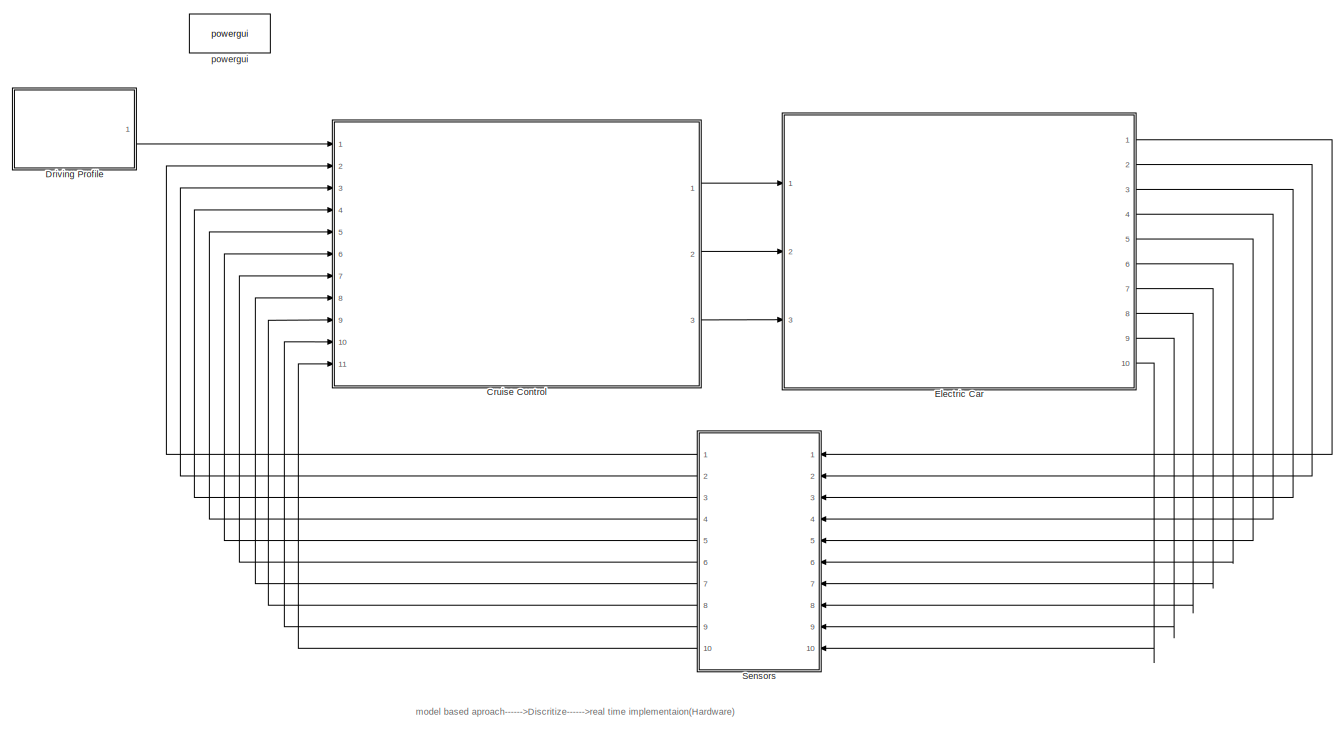
[diagram: root canvas - part 1/3, full width, top band]
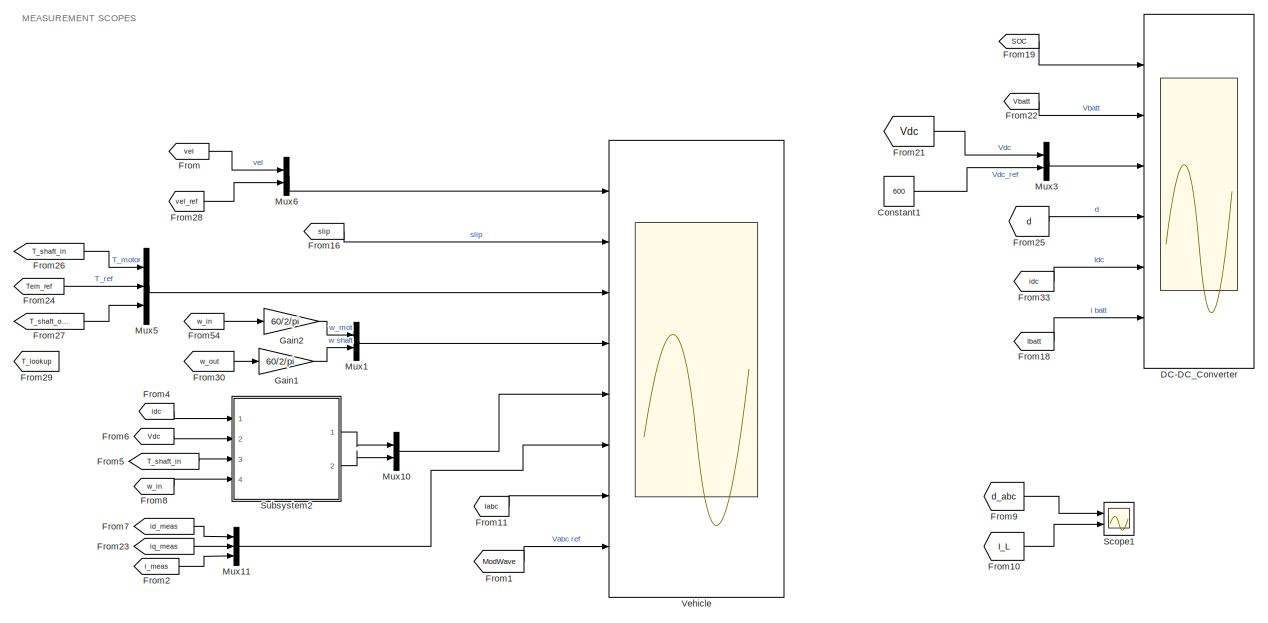
[diagram: root canvas - part 2/3, full width, bottom band]
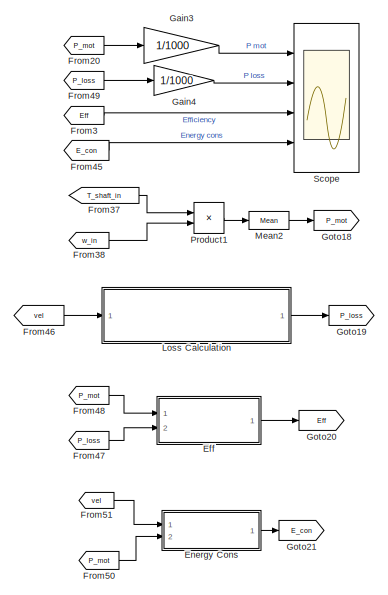
[diagram: root canvas - part 3/3, bottom right region]
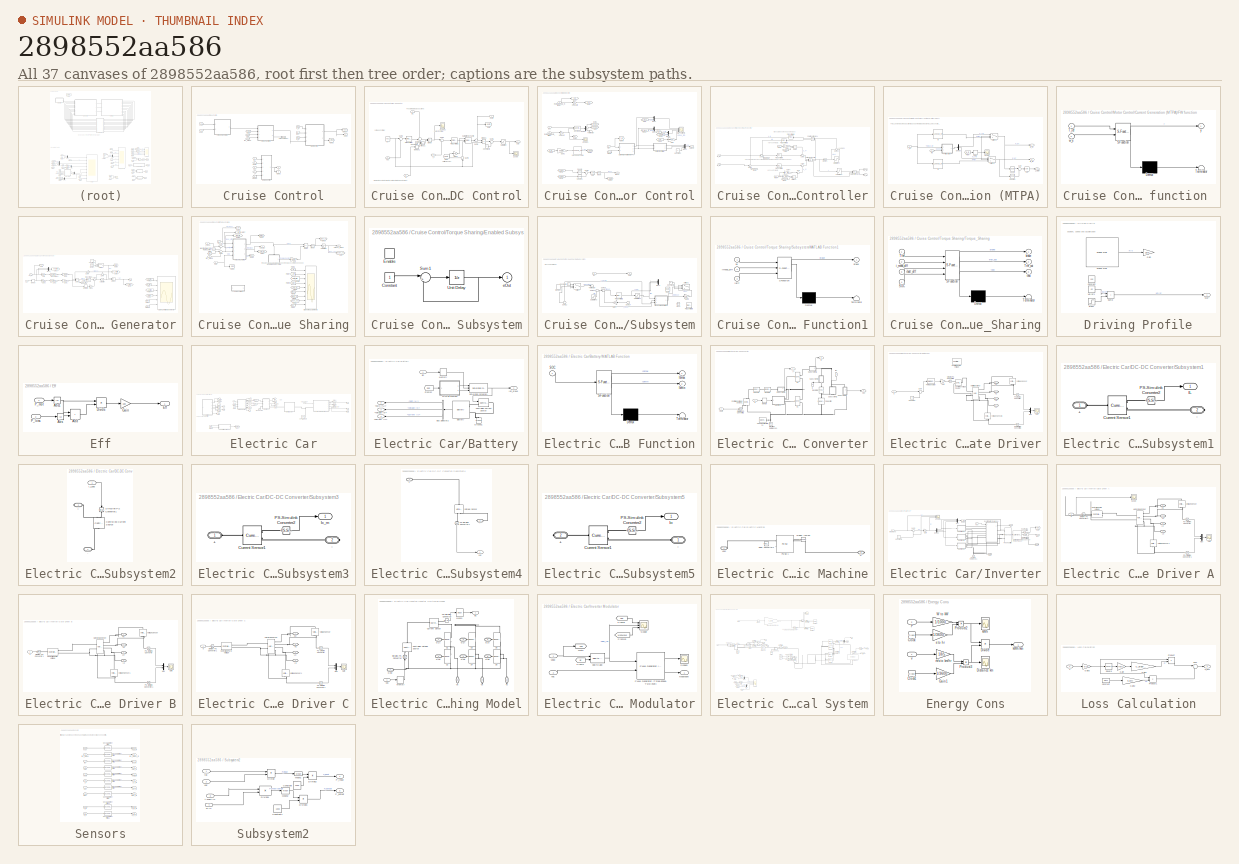
[diagram: thumbnail index - all 37 canvases of the model, root first then tree order]
MODEL slx_2898552aa586
KIND model
CONFIG AbsTol = auto
CONFIG EnableMultiTasking = off
CONFIG FixedStep = Tsim_2
CONFIG MaxStep = auto
CONFIG MinStep = auto
CONFIG RelTol = 1e-3
CONFIG SampleTimeConstraint = Unconstrained
CONFIG SolverName = FixedStepAuto
CONFIG StartTime = 0.0
CONFIG StopTime = 12
BLOCK [Constant] Constant1
  Value = 600
BLOCK [SubSystem] Cruise Control
  Ports = [11, 3]
  RequestExecContextInheritance = off
BLOCK [SubSystem] Cruise Control/DC-DC Control
  Ports = [5, 1]
  RequestExecContextInheritance = off
BLOCK [Constant] Cruise Control/DC-DC Control/Constant1
BLOCK [Constant] Cruise Control/DC-DC Control/Constant2
BLOCK [Product] Cruise Control/DC-DC Control/Divide
  Inputs = */
  Ports = [2, 1]
BLOCK [Product] Cruise Control/DC-DC Control/Divide1
  Inputs = */
  Ports = [2, 1]
BLOCK [From] Cruise Control/DC-DC Control/From
  GotoTag = Vbatt
BLOCK [Gain] Cruise Control/DC-DC Control/Gain3
  Gain = 0.5
BLOCK [Goto] Cruise Control/DC-DC Control/Goto
  GotoTag = Vbatt
BLOCK [Inport] Cruise Control/DC-DC Control/I_L
  Port = 4
BLOCK [Inport] Cruise Control/DC-DC Control/Idc
BLOCK [Memory] Cruise Control/DC-DC Control/Memory1
BLOCK [Sum] Cruise Control/DC-DC Control/Minus1
  IconShape = rectangular
  Inputs = +-
  Ports = [2, 1]
BLOCK [Reference] Cruise Control/DC-DC Control/PID Controller  REF=slpidlib/PID Controller
  Ports = [1, 1]
  SourceBlock = slpidlib/PID Controller
  SourceProductBaseCode = SL
  SourceType = PID 1dof
BLOCK [Reference] Cruise Control/DC-DC Control/PID Controller1  REF=slpidlib/PID Controller
  Ports = [1, 1]
  SourceBlock = slpidlib/PID Controller
  SourceProductBaseCode = SL
  SourceType = PID 1dof
BLOCK [Constant] Cruise Control/DC-DC Control/Pi
  OutDataTypeStr = Inherit: Inherit via back propagation
  Value = Vdc
BLOCK [Saturate] Cruise Control/DC-DC Control/Saturation
  LowerLimit = 0
  UpperLimit = 1
BLOCK [Reference] Cruise Control/DC-DC Control/Saturation Dynamic  REF=simulink/Discontinuities/Saturation
Dynamic
  Ports = [3, 1]
  SourceBlock = simulink/Discontinuities/Saturation\nDynamic
  SourceProductBaseCode = SL
  SourceType = Saturation Dynamic
BLOCK [Scope] Cruise Control/DC-DC Control/Scope
  Floating = off
  NumInputPorts = 1
  Ports = [1]
  ScopeSpecificationString = Simulink.scopes.TimeScopeBlockCfg('CurrentConfiguration', extmgr.ConfigurationSet(extmgr.Configuration('Core','General UI',true),extmgr.Configuration('Core','Source UI',true),extmgr.Configuration('Sources','WiredSimulink',true,'DataLoggingVariableName','ScopeData4'),extmgr.Configuration('Visuals','Time Domain',true),extmgr.Configuration('Tools','Plot Navigation',true),extmgr.Configuration('Tools',...<+40ch>
BLOCK [Scope] Cruise Control/DC-DC Control/Scope2
  Floating = off
  NumInputPorts = 1
  Ports = [1]
  ScopeSpecificationString = Simulink.scopes.TimeScopeBlockCfg('CurrentConfiguration', extmgr.ConfigurationSet(extmgr.Configuration('Core','General UI',true),extmgr.Configuration('Core','Source UI',true),extmgr.Configuration('Sources','WiredSimulink',true,'DataLoggingVariableName','ScopeData2'),extmgr.Configuration('Visuals','Time Domain',true,'SerializedDisplays',{struct('MinYLimReal','-149.70805','MaxYLimReal','207.47924','...<+1379ch>
BLOCK [Sum] Cruise Control/DC-DC Control/Sum2
  Inputs = |+-
  Ports = [2, 1]
BLOCK [Sum] Cruise Control/DC-DC Control/Sum3
  Inputs = ++|
  Ports = [2, 1]
BLOCK [Sum] Cruise Control/DC-DC Control/Sum4
  Inputs = |+-
  Ports = [2, 1]
BLOCK [Sum] Cruise Control/DC-DC Control/Sum5
  Inputs = -+|
  Ports = [2, 1]
BLOCK [Sum] Cruise Control/DC-DC Control/Sum6
  Inputs = |++
  Ports = [2, 1]
BLOCK [Sum] Cruise Control/DC-DC Control/Sum9
  Inputs = +-|
  NameLocation = right
  Ports = [2, 1]
BLOCK [Inport] Cruise Control/DC-DC Control/Vbatt
  Port = 2
BLOCK [Inport] Cruise Control/DC-DC Control/Vdc
  Port = 3
BLOCK [Inport] Cruise Control/DC-DC Control/d
  Port = 5
BLOCK [Outport] Cruise Control/DC-DC Control/duty
BLOCK [From] Cruise Control/From
  GotoTag = i_meas
BLOCK [From] Cruise Control/From35
  GotoTag = d
  TagVisibility = global
BLOCK [Goto] Cruise Control/Goto14
  GotoTag = Vdq0
  TagVisibility = global
BLOCK [Goto] Cruise Control/Goto2
  GotoTag = i_meas
BLOCK [Goto] Cruise Control/Goto3
  GotoTag = d
  TagVisibility = global
BLOCK [Inport] Cruise Control/I_L
  Port = 7
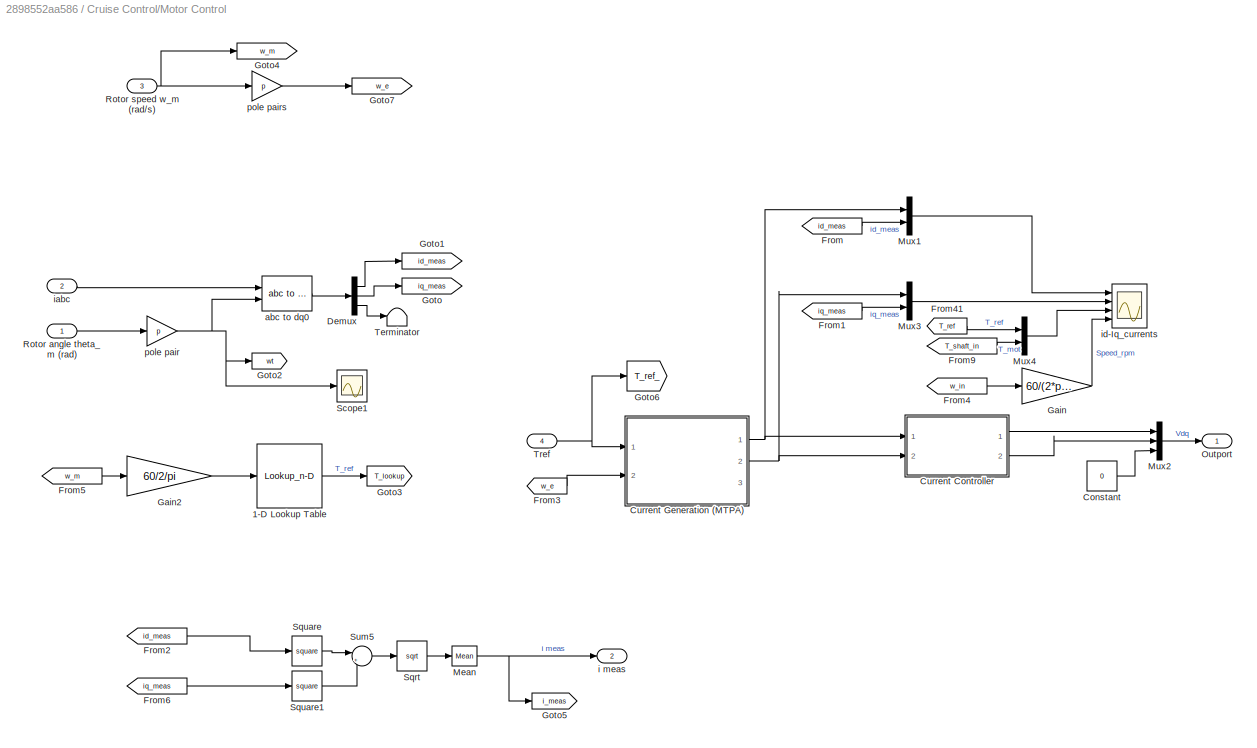
BLOCK [SubSystem] Cruise Control/Motor Control
  Ports = [4, 2]
  RequestExecContextInheritance = off
BLOCK [Lookup_n-D] Cruise Control/Motor Control/1-D Lookup Table
  BreakpointsForDimension1 = w
  InputPortMap = u0
  InternalRulePriority = Speed
  NumberOfTableDimensions = 1
  Ports = [1, 1]
  RndMeth = Simplest
  Table = T
BLOCK [Constant] Cruise Control/Motor Control/Constant
  Value = 0
BLOCK [SubSystem] Cruise Control/Motor Control/Current Controller
  Ports = [2, 2]
  RequestExecContextInheritance = off
BLOCK [Reference] Cruise Control/Motor Control/Current Controller/Cartesian to Polar2  REF=simulink_extras/Transformations/Cartesian to
Polar
  Ports = [2, 2]
  SourceBlock = simulink_extras/Transformations/Cartesian to\nPolar
  SourceProductBaseCode = SL
  SourceType = Cart2Polar
BLOCK [Product] Cruise Control/Motor Control/Current Controller/Divide
  Inputs = **
  Ports = [2, 1]
BLOCK [Product] Cruise Control/Motor Control/Current Controller/Divide1
  Inputs = **
  Ports = [2, 1]
BLOCK [From] Cruise Control/Motor Control/Current Controller/From
  GotoTag = w_e
  TagVisibility = global
BLOCK [From] Cruise Control/Motor Control/Current Controller/From1
  GotoTag = id_meas
  TagVisibility = global
BLOCK [From] Cruise Control/Motor Control/Current Controller/From2
  GotoTag = iq_meas
  TagVisibility = global
BLOCK [From] Cruise Control/Motor Control/Current Controller/From3
  GotoTag = id_meas
  NameLocation = top
  TagVisibility = global
BLOCK [From] Cruise Control/Motor Control/Current Controller/From4
  GotoTag = w_e
  TagVisibility = global
BLOCK [From] Cruise Control/Motor Control/Current Controller/From5
  GotoTag = iq_meas
  NameLocation = top
  TagVisibility = global
BLOCK [Gain] Cruise Control/Motor Control/Current Controller/Gain2
  Gain = Lq_mach
BLOCK [Gain] Cruise Control/Motor Control/Current Controller/Gain3
  Gain = Ld_mach
BLOCK [Gain] Cruise Control/Motor Control/Current Controller/Gain4
  Gain = flux_mach
BLOCK [Reference] Cruise Control/Motor Control/Current Controller/Mean1  REF=spsMeanLib/Mean
  Ports = [1, 1]
  SourceBlock = spsMeanLib/Mean
  SourceProductBaseCode = PS
  SourceType = Mean
BLOCK [Reference] Cruise Control/Motor Control/Current Controller/PID Controller1  REF=slpidlib/PID Controller
  Ports = [1, 1]
  SourceBlock = slpidlib/PID Controller
  SourceProductBaseCode = SL
  SourceType = PID 1dof
BLOCK [Reference] Cruise Control/Motor Control/Current Controller/PID Controller2  REF=slpidlib/PID Controller
  NameLocation = top
  Ports = [1, 1]
  SourceBlock = slpidlib/PID Controller
  SourceProductBaseCode = SL
  SourceType = PID 1dof
BLOCK [Reference] Cruise Control/Motor Control/Current Controller/PID Controller3  REF=slpidlib/PID Controller
  NameLocation = top
  Ports = [1, 1]
  SourceBlock = slpidlib/PID Controller
  SourceProductBaseCode = SL
  SourceType = PID 1dof
BLOCK [Reference] Cruise Control/Motor Control/Current Controller/PID Controller4  REF=slpidlib/PID Controller
  Ports = [1, 1]
  SourceBlock = slpidlib/PID Controller
  SourceProductBaseCode = SL
  SourceType = PID 1dof
BLOCK [Reference] Cruise Control/Motor Control/Current Controller/Polar to Cartesian3  REF=simulink_extras/Transformations/Polar to
Cartesian
  Ports = [2, 2]
  SourceBlock = simulink_extras/Transformations/Polar to\nCartesian
  SourceProductBaseCode = SL
  SourceType = Polar2Cart
BLOCK [Reference] Cruise Control/Motor Control/Current Controller/Polar to Cartesian4  REF=simulink_extras/Transformations/Polar to
Cartesian
  NameLocation = top
  Ports = [2, 2]
  SourceBlock = simulink_extras/Transformations/Polar to\nCartesian
  SourceProductBaseCode = SL
  SourceType = Polar2Cart
BLOCK [Saturate] Cruise Control/Motor Control/Current Controller/Saturation1
  LowerLimit = 0
  UpperLimit = 700/sqrt(3)/sqrt(2)
BLOCK [Saturate] Cruise Control/Motor Control/Current Controller/Saturation2
  LowerLimit = 0
  UpperLimit = 700/sqrt(3)/sqrt(2)
BLOCK [Sum] Cruise Control/Motor Control/Current Controller/Sum
  Inputs = |++
  Ports = [2, 1]
BLOCK [Sum] Cruise Control/Motor Control/Current Controller/Sum1
  Inputs = -+-
  Ports = [3, 1]
BLOCK [Sum] Cruise Control/Motor Control/Current Controller/Sum10
  Inputs = +|-
  NameLocation = right
  Ports = [2, 1]
BLOCK [Sum] Cruise Control/Motor Control/Current Controller/Sum2
  Inputs = -+-
  Ports = [3, 1]
BLOCK [Sum] Cruise Control/Motor Control/Current Controller/Sum8
  Inputs = -+|
  Ports = [2, 1]
BLOCK [Sum] Cruise Control/Motor Control/Current Controller/Sum9
  Inputs = |++
  Ports = [2, 1]
BLOCK [Outport] Cruise Control/Motor Control/Current Controller/Vd_ref
  VectorParamsAs1DForOutWhenUnconnected = off
BLOCK [Outport] Cruise Control/Motor Control/Current Controller/Vq_ref
  Port = 2
  VectorParamsAs1DForOutWhenUnconnected = off
BLOCK [Inport] Cruise Control/Motor Control/Current Controller/id_ref
BLOCK [Inport] Cruise Control/Motor Control/Current Controller/iq_ref
  Port = 2
BLOCK [SubSystem] Cruise Control/Motor Control/Current Generation (MTPA)
  Ports = [2, 3]
  RequestExecContextInheritance = off
BLOCK [Demux] Cruise Control/Motor Control/Current Generation (MTPA)/Demux
  Ports = [1, 4]
BLOCK [SubSystem] Cruise Control/Motor Control/Current Generation (MTPA)/FW function 
  ErrorFcn = Stateflow.Translate.translate
  PermitHierarchicalResolution = ExplicitOnly
  Ports = [2, 1]
  RequestExecContextInheritance = off
  SFBlockType = MATLAB Function
  TreatAsAtomicUnit = on
BLOCK [Demux] Cruise Control/Motor Control/Current Generation (MTPA)/FW function / Demux 
  Outputs = 1
  Ports = [1, 1]
BLOCK [S-Function] Cruise Control/Motor Control/Current Generation (MTPA)/FW function / SFunction 
  EnableBusSupport = on
  FunctionName = sf_sfun
  PortCounts = [2 2]
  Ports = [2, 2]
  SFcnIsStateOwnerBlock = off
  SFunctionDeploymentMode = off
  Tag = Stateflow S-Function 1
BLOCK [Terminator] Cruise Control/Motor Control/Current Generation (MTPA)/FW function / Terminator 
BLOCK [Inport] Cruise Control/Motor Control/Current Generation (MTPA)/FW function /T_ref
BLOCK [Inport] Cruise Control/Motor Control/Current Generation (MTPA)/FW function /w_e
  Port = 2
BLOCK [Outport] Cruise Control/Motor Control/Current Generation (MTPA)/FW function /y
  VectorParamsAs1DForOutWhenUnconnected = off
BLOCK [From] Cruise Control/Motor Control/Current Generation (MTPA)/From
  GotoTag = w_m
  TagVisibility = global
BLOCK [Outport] Cruise Control/Motor Control/Current Generation (MTPA)/I_stator
  Port = 3
  VectorParamsAs1DForOutWhenUnconnected = off
BLOCK [Relay] Cruise Control/Motor Control/Current Generation (MTPA)/Relay
  OffSwitchValue = wbase-20
  OnSwitchValue = wbase+10000
BLOCK [Scope] Cruise Control/Motor Control/Current Generation (MTPA)/Scope
  Floating = off
  NumInputPorts = 1
  Ports = [1]
  ScopeSpecificationString = Simulink.scopes.TimeScopeBlockCfg('CurrentConfiguration', extmgr.ConfigurationSet(extmgr.Configuration('Core','General UI',true),extmgr.Configuration('Core','Source UI',true),extmgr.Configuration('Sources','WiredSimulink',true,'DataLoggingVariableName','ScopeData7'),extmgr.Configuration('Visuals','Time Domain',true,'SerializedDisplays',{struct('MinYLimReal','-1.00000','MaxYLimReal','1.00000','YLab...<+1509ch>
BLOCK [Sqrt] Cruise Control/Motor Control/Current Generation (MTPA)/Sqrt
BLOCK [Math] Cruise Control/Motor Control/Current Generation (MTPA)/Square
  Operator = square
  Ports = [1, 1]
BLOCK [Math] Cruise Control/Motor Control/Current Generation (MTPA)/Square1
  Operator = square
  Ports = [1, 1]
BLOCK [Sum] Cruise Control/Motor Control/Current Generation (MTPA)/Sum
  Inputs = |++
  Ports = [2, 1]
BLOCK [Switch] Cruise Control/Motor Control/Current Generation (MTPA)/Switch2
  Criteria = u2 > Threshold
  InputSameDT = off
  NameLocation = top
  SaturateOnIntegerOverflow = off
BLOCK [Switch] Cruise Control/Motor Control/Current Generation (MTPA)/Switch3
  Criteria = u2 > Threshold
  InputSameDT = off
  SaturateOnIntegerOverflow = off
BLOCK [Inport] Cruise Control/Motor Control/Current Generation (MTPA)/T_ref
BLOCK [Lookup_n-D] Cruise Control/Motor Control/Current Generation (MTPA)/id
  BreakpointsForDimension1 = T_dq
  InputPortMap = u0
  InternalRulePriority = Speed
  InterpMethod = Linear Lagrange
  NumberOfTableDimensions = 1
  Ports = [1, 1]
  RndMeth = Simplest
  Table = id
BLOCK [Outport] Cruise Control/Motor Control/Current Generation (MTPA)/id_ref
  VectorParamsAs1DForOutWhenUnconnected = off
BLOCK [Lookup_n-D] Cruise Control/Motor Control/Current Generation (MTPA)/iq
  BreakpointsForDimension1 = T_dq
  InputPortMap = u0
  InternalRulePriority = Speed
  InterpMethod = Linear Lagrange
  NumberOfTableDimensions = 1
  Ports = [1, 1]
  RndMeth = Simplest
  Table = iq
BLOCK [Outport] Cruise Control/Motor Control/Current Generation (MTPA)/iq_ref
  Port = 2
  VectorParamsAs1DForOutWhenUnconnected = off
BLOCK [Inport] Cruise Control/Motor Control/Current Generation (MTPA)/we
  Port = 2
BLOCK [Demux] Cruise Control/Motor Control/Demux
  Outputs = 3
  Ports = [1, 3]
BLOCK [From] Cruise Control/Motor Control/From
  GotoTag = id_meas
  NameLocation = top
  TagVisibility = global
BLOCK [From] Cruise Control/Motor Control/From1
  GotoTag = iq_meas
  NameLocation = top
  TagVisibility = global
BLOCK [From] Cruise Control/Motor Control/From2
  GotoTag = id_meas
  TagVisibility = global
BLOCK [From] Cruise Control/Motor Control/From3
  GotoTag = w_e
  TagVisibility = global
BLOCK [From] Cruise Control/Motor Control/From4
  GotoTag = w_in
  TagVisibility = global
BLOCK [From] Cruise Control/Motor Control/From41
  GotoTag = T_ref
BLOCK [From] Cruise Control/Motor Control/From5
  GotoTag = w_m
  TagVisibility = global
BLOCK [From] Cruise Control/Motor Control/From6
  GotoTag = iq_meas
  TagVisibility = global
BLOCK [From] Cruise Control/Motor Control/From9
  GotoTag = T_shaft_in
  TagVisibility = global
BLOCK [Gain] Cruise Control/Motor Control/Gain
  Gain = 60/(2*pi)
BLOCK [Gain] Cruise Control/Motor Control/Gain2
  Gain = 60/2/pi
BLOCK [Goto] Cruise Control/Motor Control/Goto
  GotoTag = iq_meas
  TagVisibility = global
BLOCK [Goto] Cruise Control/Motor Control/Goto1
  GotoTag = id_meas
  TagVisibility = global
BLOCK [Goto] Cruise Control/Motor Control/Goto2
  GotoTag = wt
  TagVisibility = global
BLOCK [Goto] Cruise Control/Motor Control/Goto3
  GotoTag = T_lookup
  TagVisibility = global
BLOCK [Goto] Cruise Control/Motor Control/Goto4
  GotoTag = w_m
  TagVisibility = global
BLOCK [Goto] Cruise Control/Motor Control/Goto5
  GotoTag = i_meas
  TagVisibility = global
BLOCK [Goto] Cruise Control/Motor Control/Goto6
  GotoTag = T_ref_
  TagVisibility = global
BLOCK [Goto] Cruise Control/Motor Control/Goto7
  GotoTag = w_e
  TagVisibility = global
BLOCK [Reference] Cruise Control/Motor Control/Mean  REF=spsMeanLib/Mean
  Ports = [1, 1]
  SourceBlock = spsMeanLib/Mean
  SourceProductBaseCode = PS
  SourceType = Mean
BLOCK [Mux] Cruise Control/Motor Control/Mux1
  DisplayOption = bar
  Inputs = 2
  Ports = [2, 1]
BLOCK [Mux] Cruise Control/Motor Control/Mux2
  DisplayOption = bar
  Inputs = 3
  Ports = [3, 1]
BLOCK [Mux] Cruise Control/Motor Control/Mux3
  DisplayOption = bar
  Inputs = 2
  Ports = [2, 1]
BLOCK [Mux] Cruise Control/Motor Control/Mux4
  DisplayOption = bar
  Inputs = 2
  Ports = [2, 1]
BLOCK [Outport] Cruise Control/Motor Control/Outport
BLOCK [Inport] Cruise Control/Motor Control/Rotor angle theta_m (rad)
BLOCK [Inport] Cruise Control/Motor Control/Rotor speed w_m (rad//s)
  Port = 3
BLOCK [Scope] Cruise Control/Motor Control/Scope1
  Floating = off
  NumInputPorts = 1
  Ports = [1]
  ScopeSpecificationString = Simulink.scopes.TimeScopeBlockCfg('CurrentConfiguration', extmgr.ConfigurationSet(extmgr.Configuration('Core','General UI',true),extmgr.Configuration('Core','Source UI',true),extmgr.Configuration('Sources','WiredSimulink',true,'DataLoggingVariableName','ScopeData2'),extmgr.Configuration('Visuals','Time Domain',true,'SerializedDisplays',{struct('MinYLimReal','-2.65561','MaxYLimReal','23.76762','YLa...<+1401ch>
BLOCK [Sqrt] Cruise Control/Motor Control/Sqrt
BLOCK [Math] Cruise Control/Motor Control/Square
  Operator = square
  Ports = [1, 1]
BLOCK [Math] Cruise Control/Motor Control/Square1
  Operator = square
  Ports = [1, 1]
BLOCK [Sum] Cruise Control/Motor Control/Sum5
  Inputs = |++
  Ports = [2, 1]
BLOCK [Terminator] Cruise Control/Motor Control/Terminator
BLOCK [Inport] Cruise Control/Motor Control/Tref
  NameLocation = top
  Port = 4
BLOCK [Reference] Cruise Control/Motor Control/abc to dq0  REF=spsabctodq0Lib/abc to dq0
  Ports = [2, 1]
  SourceBlock = spsabctodq0Lib/abc to dq0
  SourceProductBaseCode = PS
  SourceType = abc to dq0 Transformation
BLOCK [Outport] Cruise Control/Motor Control/i meas
  Port = 2
BLOCK [Inport] Cruise Control/Motor Control/iabc
  NameLocation = top
  Port = 2
BLOCK [Scope] Cruise Control/Motor Control/id-Iq_currents
  Floating = off
  NumInputPorts = 4
  Ports = [4]
  ScopeSpecificationString = Simulink.scopes.TimeScopeBlockCfg('CurrentConfiguration', extmgr.ConfigurationSet(extmgr.Configuration('Core','General UI',true,'FigureColor',[1 1 1]),extmgr.Configuration('Core','Source UI',true),extmgr.Configuration('Sources','WiredSimulink',true,'DataLoggingVariableName','ScopeData6'),extmgr.Configuration('Visuals','Time Domain',true,'SerializedDisplays',{struct('MinYLimReal','-294.49054','MaxY...<+4211ch>
BLOCK [Gain] Cruise Control/Motor Control/pole pair
  Gain = p
BLOCK [Gain] Cruise Control/Motor Control/pole pairs
  Gain = p
BLOCK [Inport] Cruise Control/SOC
  Port = 5
BLOCK [Outport] Cruise Control/Tmechbreak*
BLOCK [SubSystem] Cruise Control/Torque Generator
  Ports = [2, 1]
  RequestExecContextInheritance = off
BLOCK [Gain] Cruise Control/Torque Generator/1//wheel radius
  Gain = 1/r_wheel
BLOCK [Constant] Cruise Control/Torque Generator/Constant
BLOCK [Scope] Cruise Control/Torque Generator/Cruise Control Measurements
  Floating = off
  NumInputPorts = 6
  Ports = [6]
  ScopeSpecificationString = Simulink.scopes.TimeScopeBlockCfg('CurrentConfiguration', extmgr.ConfigurationSet(extmgr.Configuration('Core','General UI',true),extmgr.Configuration('Core','Source UI',true),extmgr.Configuration('Sources','WiredSimulink',true,'DataLoggingVariableName','ScopeData1'),extmgr.Configuration('Visuals','Time Domain',true,'SerializedDisplays',{struct('MinYLimReal','-12.5','MaxYLimReal','112.5','YLabelRea...<+4907ch>
BLOCK [Derivative] Cruise Control/Torque Generator/Derivative
BLOCK [Product] Cruise Control/Torque Generator/Divide2
  Inputs = **
  Ports = [2, 1]
BLOCK [From] Cruise Control/Torque Generator/From
  GotoTag = new_error
BLOCK [From] Cruise Control/Torque Generator/From1
  GotoTag = Velocities
BLOCK [From] Cruise Control/Torque Generator/From2
  GotoTag = ramp
BLOCK [From] Cruise Control/Torque Generator/From3
  GotoTag = T_reference
BLOCK [From] Cruise Control/Torque Generator/From38
  GotoTag = brake
BLOCK [From] Cruise Control/Torque Generator/From4
  GotoTag = T_antiwindup
BLOCK [Gain] Cruise Control/Torque Generator/Gain
  Gain = 5/18
BLOCK [Gain] Cruise Control/Torque Generator/Gain1
  Gain = k_gear
BLOCK [Gain] Cruise Control/Torque Generator/Gain2
  Gain = 1/r_wheel
BLOCK [Gain] Cruise Control/Torque Generator/Gain3
  Gain = 5/18
BLOCK [Gain] Cruise Control/Torque Generator/Gain5
  Gain = 0.1
BLOCK [Gain] Cruise Control/Torque Generator/Gain6
  NameLocation = top
BLOCK [Gain] Cruise Control/Torque Generator/Gear
  Gain = k_gear
BLOCK [Goto] Cruise Control/Torque Generator/Goto
  GotoTag = vel_ref
  TagVisibility = global
BLOCK [Goto] Cruise Control/Torque Generator/Goto1
  GotoTag = new_error
BLOCK [Goto] Cruise Control/Torque Generator/Goto2
  GotoTag = Velocities
BLOCK [Goto] Cruise Control/Torque Generator/Goto3
  GotoTag = ramp
BLOCK [Goto] Cruise Control/Torque Generator/Goto4
  GotoTag = T_reference
BLOCK [Goto] Cruise Control/Torque Generator/Goto5
  GotoTag = T_antiwindup
BLOCK [Memory] Cruise Control/Torque Generator/Memory
BLOCK [Mux] Cruise Control/Torque Generator/Mux6
  DisplayOption = bar
  Inputs = 2
  Ports = [2, 1]
BLOCK [Reference] Cruise Control/Torque Generator/PID Controller1  REF=slpidlib/PID Controller
  Ports = [1, 1]
  SourceBlock = slpidlib/PID Controller
  SourceProductBaseCode = SL
  SourceType = PID 1dof
BLOCK [Reference] Cruise Control/Torque Generator/Ramp1  REF=simulink/Sources/Ramp
  Ports = [0, 1]
  SourceBlock = simulink/Sources/Ramp
  SourceProductBaseCode = SL
  SourceType = Ramp
BLOCK [Saturate] Cruise Control/Torque Generator/Saturation
  LowerLimit = -Tmax_mach
  UpperLimit = Tmax_mach
BLOCK [Sum] Cruise Control/Torque Generator/Sum2
  IconShape = rectangular
  Inputs = -+-
  Ports = [3, 1]
BLOCK [Sum] Cruise Control/Torque Generator/Sum3
  Inputs = |++
  Ports = [2, 1]
BLOCK [Sum] Cruise Control/Torque Generator/Sum4
  Inputs = +|-
  NameLocation = right
  Ports = [2, 1]
BLOCK [Switch] Cruise Control/Torque Generator/Switch
  Criteria = u2 > Threshold
  InputSameDT = off
  SaturateOnIntegerOverflow = off
  Threshold = 1
BLOCK [Outport] Cruise Control/Torque Generator/T_ref
BLOCK [Inport] Cruise Control/Torque Generator/vel
  Port = 2
BLOCK [Inport] Cruise Control/Torque Generator/vel_ref
BLOCK [SubSystem] Cruise Control/Torque Sharing
  Ports = [4, 2]
  RequestExecContextInheritance = off
BLOCK [Scope] Cruise Control/Torque Sharing/Brake Measurements
  Floating = off
  NumInputPorts = 9
  Ports = [9]
  ScopeSpecificationString = Simulink.scopes.TimeScopeBlockCfg('CurrentConfiguration', extmgr.ConfigurationSet(extmgr.Configuration('Core','General UI',true,'FigureColor',[1 1 1]),extmgr.Configuration('Core','Source UI',true),extmgr.Configuration('Sources','WiredSimulink',true,'DataLoggingVariableName','ScopeData2'),extmgr.Configuration('Visuals','Time Domain',true,'SerializedDisplays',{struct('MinYLimReal','-31.25','MaxYLimR...<+5431ch>
BLOCK [Product] Cruise Control/Torque Sharing/Divide
  Inputs = **
  Ports = [2, 1]
BLOCK [SubSystem] Cruise Control/Torque Sharing/Enabled Subsystem
  Ports = [0, 1, 1]
  RequestExecContextInheritance = off
  TreatAsAtomicUnit = on
BLOCK [Constant] Cruise Control/Torque Sharing/Enabled Subsystem/Constant
BLOCK [EnablePort] Cruise Control/Torque Sharing/Enabled Subsystem/Enable
  Ports = []
  PropagateVarSize = During execution
  StatesWhenEnabling = reset
BLOCK [Sum] Cruise Control/Torque Sharing/Enabled Subsystem/Sum1
  InputSameDT = on
  Inputs = |++
  OutDataTypeStr = Inherit: Same as first input
  Ports = [2, 1]
  SaturateOnIntegerOverflow = on
BLOCK [UnitDelay] Cruise Control/Torque Sharing/Enabled Subsystem/Unit Delay
  HasFrameUpgradeWarning = on
  SampleTime = 0.01
BLOCK [Outport] Cruise Control/Torque Sharing/Enabled Subsystem/eOut
  InitialOutput = 0
  VectorParamsAs1DForOutWhenUnconnected = off
BLOCK [From] Cruise Control/Torque Sharing/From
  GotoTag = idc
  TagVisibility = global
BLOCK [From] Cruise Control/Torque Sharing/From1
  GotoTag = beake_out
BLOCK [From] Cruise Control/Torque Sharing/From2
  GotoTag = brake_in
BLOCK [From] Cruise Control/Torque Sharing/From3
  GotoTag = Tem_ref
  TagVisibility = global
BLOCK [From] Cruise Control/Torque Sharing/From4
  GotoTag = test
BLOCK [From] Cruise Control/Torque Sharing/From5
  GotoTag = Brake
BLOCK [From] Cruise Control/Torque Sharing/From6
  GotoTag = T_ref
BLOCK [From] Cruise Control/Torque Sharing/From7
  GotoTag = I_diff
BLOCK [From] Cruise Control/Torque Sharing/From8
  GotoTag = Ibatt_diff
BLOCK [From] Cruise Control/Torque Sharing/From9
  GotoTag = SOC
BLOCK [Gain] Cruise Control/Torque Sharing/Gain
  Gain = 0.005
BLOCK [Goto] Cruise Control/Torque Sharing/Goto
  GotoTag = beake_out
BLOCK [Goto] Cruise Control/Torque Sharing/Goto1
  GotoTag = brake_in
BLOCK [Goto] Cruise Control/Torque Sharing/Goto3
  GotoTag = test
BLOCK [Goto] Cruise Control/Torque Sharing/Goto4
  GotoTag = Tem_ref
  TagVisibility = global
BLOCK [Goto] Cruise Control/Torque Sharing/Goto5
  GotoTag = Brake
BLOCK [Goto] Cruise Control/Torque Sharing/Goto6
  GotoTag = T_ref
BLOCK [Goto] Cruise Control/Torque Sharing/Goto7
  GotoTag = I_diff
BLOCK [Goto] Cruise Control/Torque Sharing/Goto8
  GotoTag = SOC
BLOCK [Goto] Cruise Control/Torque Sharing/Goto9
  GotoTag = Ibatt_diff
BLOCK [Constant] Cruise Control/Torque Sharing/Maximum Machine Rated Current
  NameLocation = left
  Value = 400
BLOCK [Reference] Cruise Control/Torque Sharing/Mean  REF=spsMeanLib/Mean
  Ports = [1, 1]
  SourceBlock = spsMeanLib/Mean
  SourceProductBaseCode = PS
  SourceType = Mean
BLOCK [Inport] Cruise Control/Torque Sharing/SOC
  Port = 3
BLOCK [Saturate] Cruise Control/Torque Sharing/Saturation
  LowerLimit = 0
BLOCK [SubSystem] Cruise Control/Torque Sharing/Subsystem
  Commented = on
  Ports = [1, 1]
  RequestExecContextInheritance = off
BLOCK [Clock] Cruise Control/Torque Sharing/Subsystem/Clock
  Commented = on
  Decimation = 1
  DisplayTime = on
BLOCK [Constant] Cruise Control/Torque Sharing/Subsystem/Constant1
  Value = 0
BLOCK [Constant] Cruise Control/Torque Sharing/Subsystem/Constant5
  Value = 0
BLOCK [Gain] Cruise Control/Torque Sharing/Subsystem/Gain7
  Gain = 100
  NameLocation = top
BLOCK [Gain] Cruise Control/Torque Sharing/Subsystem/Gain8
  Gain = 0.8
BLOCK [Inport] Cruise Control/Torque Sharing/Subsystem/In1
BLOCK [SubSystem] Cruise Control/Torque Sharing/Subsystem/MATLAB Function1
  ErrorFcn = Stateflow.Translate.translate
  PermitHierarchicalResolution = ExplicitOnly
  Ports = [3, 1]
  RequestExecContextInheritance = off
  SFBlockType = MATLAB Function
  TreatAsAtomicUnit = on
BLOCK [Demux] Cruise Control/Torque Sharing/Subsystem/MATLAB Function1/ Demux 
  Outputs = 1
  Ports = [1, 1]
BLOCK [S-Function] Cruise Control/Torque Sharing/Subsystem/MATLAB Function1/ SFunction 
  EnableBusSupport = on
  FunctionName = sf_sfun
  PortCounts = [3 2]
  Ports = [3, 2]
  SFcnIsStateOwnerBlock = off
  SFunctionDeploymentMode = off
  Tag = Stateflow S-Function 3
BLOCK [Terminator] Cruise Control/Torque Sharing/Subsystem/MATLAB Function1/ Terminator 
BLOCK [Inport] Cruise Control/Torque Sharing/Subsystem/MATLAB Function1/bk
BLOCK [Outport] Cruise Control/Torque Sharing/Subsystem/MATLAB Function1/brake
BLOCK [Inport] Cruise Control/Torque Sharing/Subsystem/MATLAB Function1/idiff
  Port = 3
BLOCK [Inport] Cruise Control/Torque Sharing/Subsystem/MATLAB Function1/imeas_diff
  Port = 2
BLOCK [Memory] Cruise Control/Torque Sharing/Subsystem/Memory4
BLOCK [Mux] Cruise Control/Torque Sharing/Subsystem/Mux4
  DisplayOption = bar
  Inputs = 2
  Ports = [2, 1]
BLOCK [Outport] Cruise Control/Torque Sharing/Subsystem/Out1
BLOCK [Reference] Cruise Control/Torque Sharing/Subsystem/PID Controller2  REF=pid_lib/PID Controller
  Ports = [1, 1]
  SourceBlock = pid_lib/PID Controller
  SourceProductBaseCode = SL
  SourceType = PID 1dof
BLOCK [Reference] Cruise Control/Torque Sharing/Subsystem/PID Controller3  REF=pid_lib/PID Controller
  Ports = [1, 1]
  SourceBlock = pid_lib/PID Controller
  SourceProductBaseCode = SL
  SourceType = PID 1dof
BLOCK [Reference] Cruise Control/Torque Sharing/Subsystem/Ramp  REF=simulink/Sources/Ramp
  Commented = on
  Ports = [0, 1]
  SourceBlock = simulink/Sources/Ramp
  SourceProductBaseCode = SL
  SourceType = Ramp
BLOCK [Saturate] Cruise Control/Torque Sharing/Subsystem/Saturation2
  Commented = through
  LowerLimit = -0.25
  UpperLimit = 0.25
BLOCK [Saturate] Cruise Control/Torque Sharing/Subsystem/Saturation3
  LowerLimit = -352
  UpperLimit = 352
BLOCK [Sum] Cruise Control/Torque Sharing/Subsystem/Sum12
  Inputs = +-
  NameLocation = right
  Ports = [2, 1]
BLOCK [Sum] Cruise Control/Torque Sharing/Subsystem/Sum13
  Inputs = |+-
  Ports = [2, 1]
BLOCK [Sum] Cruise Control/Torque Sharing/Subsystem/Sum14
  Inputs = |+-
  NameLocation = top
  Ports = [2, 1]
BLOCK [Sum] Cruise Control/Torque Sharing/Subsystem/Sum15
  Inputs = |+-
  Ports = [2, 1]
BLOCK [Switch] Cruise Control/Torque Sharing/Subsystem/Switch
  Criteria = u2 > Threshold
  InputSameDT = off
  SaturateOnIntegerOverflow = off
BLOCK [Switch] Cruise Control/Torque Sharing/Subsystem/Switch1
  Criteria = u2 > Threshold
  InputSameDT = off
  SaturateOnIntegerOverflow = off
BLOCK [Terminator] Cruise Control/Torque Sharing/Subsystem/Terminator
BLOCK [Sum] Cruise Control/Torque Sharing/Sum
  Inputs = |+-
  Ports = [2, 1]
BLOCK [Sum] Cruise Control/Torque Sharing/Sum1
  Inputs = |+-
  Ports = [2, 1]
BLOCK [Inport] Cruise Control/Torque Sharing/T ref
BLOCK [Outport] Cruise Control/Torque Sharing/Tem_ref
BLOCK [Outport] Cruise Control/Torque Sharing/Tmech_brake
  Port = 2
BLOCK [SubSystem] Cruise Control/Torque Sharing/Torque_Sharing
  ErrorFcn = Stateflow.Translate.translate
  PermitHierarchicalResolution = ExplicitOnly
  Ports = [4, 3]
  RequestExecContextInheritance = off
  SFBlockType = MATLAB Function
  TreatAsAtomicUnit = on
BLOCK [Demux] Cruise Control/Torque Sharing/Torque_Sharing/ Demux 
  Outputs = 1
  Ports = [1, 1]
BLOCK [S-Function] Cruise Control/Torque Sharing/Torque_Sharing/ SFunction 
  EnableBusSupport = on
  FunctionName = sf_sfun
  PortCounts = [4 4]
  Ports = [4, 4]
  SFcnIsStateOwnerBlock = off
  SFunctionDeploymentMode = off
  Tag = Stateflow S-Function 4
BLOCK [Terminator] Cruise Control/Torque Sharing/Torque_Sharing/ Terminator 
BLOCK [Inport] Cruise Control/Torque Sharing/Torque_Sharing/SOC
  Port = 4
BLOCK [Inport] Cruise Control/Torque Sharing/Torque_Sharing/Tref
BLOCK [Outport] Cruise Control/Torque Sharing/Torque_Sharing/Tref_out
  Port = 2
BLOCK [Outport] Cruise Control/Torque Sharing/Torque_Sharing/brake
BLOCK [Inport] Cruise Control/Torque Sharing/Torque_Sharing/i_meas_diff
  Port = 2
BLOCK [Inport] Cruise Control/Torque Sharing/Torque_Sharing/ibatt_diff
  Port = 3
BLOCK [Outport] Cruise Control/Torque Sharing/Torque_Sharing/test
  Port = 3
BLOCK [Inport] Cruise Control/Torque Sharing/i_meas
  Port = 2
BLOCK [Inport] Cruise Control/Torque Sharing/idc_brake
  Port = 4
BLOCK [Inport] Cruise Control/Vbatt
  Port = 6
BLOCK [Inport] Cruise Control/Vcar
  Port = 2
BLOCK [Inport] Cruise Control/Vcar*
BLOCK [Inport] Cruise Control/Vdc
  Port = 8
BLOCK [Outport] Cruise Control/Vdq0
  Port = 2
BLOCK [Inport] Cruise Control/a_in
  Port = 10
BLOCK [Outport] Cruise Control/d
  Port = 3
BLOCK [Inport] Cruise Control/iabc
  Port = 9
BLOCK [Inport] Cruise Control/idc
  Port = 4
BLOCK [Inport] Cruise Control/idc_brake
  Port = 3
BLOCK [Inport] Cruise Control/w_in
  Port = 11
BLOCK [Scope] DC-DC_Converter
  Floating = off
  NumInputPorts = 6
  Ports = [6]
  ScopeSpecificationString = Simulink.scopes.TimeScopeBlockCfg('CurrentConfiguration', extmgr.ConfigurationSet(extmgr.Configuration('Core','General UI',true,'FigureColor',[1 1 1]),extmgr.Configuration('Core','Source UI',true),extmgr.Configuration('Sources','WiredSimulink',true,'DataLoggingVariableName','ScopeData1'),extmgr.Configuration('Visuals','Time Domain',true,'SerializedDisplays',{struct('MinYLimReal','74.6117','MaxYLim...<+5757ch>
BLOCK [SubSystem] Driving Profile
  Ports = [0, 1]
  RequestExecContextInheritance = off
BLOCK [Constant] Driving Profile/Constant
  Value = 100
BLOCK [Reference] Driving Profile/Driving Cycle  REF=drivingcycle_lib/Driving Cycle
  Ports = [0, 3]
  SourceBlock = drivingcycle_lib/Driving Cycle
  SourceProductName = Driving Cycle Blockset
  SourceType = Driving Cycle
BLOCK [Gain] Driving Profile/Gain
  Gain = 18/5
BLOCK [Step] Driving Profile/Step1
  After = -10
  SampleTime = 0
  Time = 8
BLOCK [Sum] Driving Profile/Sum8
  IconShape = rectangular
  Inputs = |++
  Ports = [2, 1]
BLOCK [Outport] Driving Profile/Vcar*
BLOCK [Constant] Driving Profile/Vel ref1
  Value = 60
BLOCK [SubSystem] Eff
  Ports = [2, 1]
  RequestExecContextInheritance = off
BLOCK [Abs] Eff/Abs
  SaturateOnIntegerOverflow = off
BLOCK [Abs] Eff/Abs1
  SaturateOnIntegerOverflow = off
BLOCK [Sum] Eff/Add
  IconShape = rectangular
  Ports = [2, 1]
BLOCK [Product] Eff/Divide
  Inputs = */
  Ports = [2, 1]
BLOCK [Outport] Eff/Eff
BLOCK [Gain] Eff/Gain
  Gain = 100
BLOCK [Inport] Eff/P_loss
  Port = 2
BLOCK [Inport] Eff/P_mot
BLOCK [SubSystem] Electric Car
  Ports = [3, 10]
  RequestExecContextInheritance = off
BLOCK [SubSystem] Electric Car/Battery
  PortSchema = {"entries":[{"content":{"sides":[{"content":{"connectorIds":[]},"type":"ConnectorPlacement.EquallySpacedRectSide","uuid":"cc26d1cc-0fa3-4f2c-80df-1416f0a96bd3"},{"content":{"connectorIds":["Out1","In1","Out2","Out3","Out4"],"side":"RIGHT"},"type":"ConnectorPlacement.EquallySpacedRectSide","uuid":"2b739008-97af-4910-8c6c-ad69934dfbbe"},{"content":{"connectorIds":[],"side":"TOP"},"type":"ConnectorPl...<+406ch>
  Ports = [1, 4]
  RequestExecContextInheritance = off
BLOCK [Outport] Electric Car/Battery/<Current (A)>
  Port = 4
BLOCK [Outport] Electric Car/Battery/<SOC (%)>
  Port = 2
BLOCK [Outport] Electric Car/Battery/<Voltage (V)>
  Port = 3
BLOCK [Reference] Electric Car/Battery/Battery  REF=spsBatteryLib/Battery
  Ports = [0, 1, 0, 0, 0, 2]
  SourceBlock = spsBatteryLib/Battery
  SourceProductBaseCode = PS
  SourceType = Battery
BLOCK [BusSelector] Electric Car/Battery/Bus Selector2
  NameLocation = top
  OutputSignals = SOC (%),Voltage (V),Current (A)
  Ports = [1, 3]
BLOCK [Reference] Electric Car/Battery/Controlled Current Source  REF=spsControlledCurrentSourceLib/Controlled Current Source
  Ports = [1, 0, 0, 0, 0, 1, 1]
  SourceBlock = spsControlledCurrentSourceLib/Controlled Current Source
  SourceProductBaseCode = PS
  SourceType = Controlled Current Source
BLOCK [From] Electric Car/Battery/From52
  GotoTag = SOC
  NameLocation = top
  TagVisibility = global
BLOCK [Reference] Electric Car/Battery/Ground1  REF=spsGroundLib/Ground
  NameLocation = right
  Ports = [0, 0, 0, 0, 0, 1]
  SourceBlock = spsGroundLib/Ground
  SourceProductBaseCode = PS
  SourceType = Ground
BLOCK [Outport] Electric Car/Battery/Idc_brake
  NameLocation = top
BLOCK [SubSystem] Electric Car/Battery/MATLAB Function
  ErrorFcn = Stateflow.Translate.translate
  PermitHierarchicalResolution = ExplicitOnly
  Ports = [1, 2]
  RequestExecContextInheritance = off
  SFBlockType = MATLAB Function
  TreatAsAtomicUnit = on
BLOCK [Demux] Electric Car/Battery/MATLAB Function/ Demux 
  Outputs = 1
  Ports = [1, 1]
BLOCK [S-Function] Electric Car/Battery/MATLAB Function/ SFunction 
  EnableBusSupport = on
  FunctionName = sf_sfun
  PortCounts = [1 3]
  Ports = [1, 3]
  SFcnIsStateOwnerBlock = off
  SFunctionDeploymentMode = off
  Tag = Stateflow S-Function 7
BLOCK [Terminator] Electric Car/Battery/MATLAB Function/ Terminator 
BLOCK [Outport] Electric Car/Battery/MATLAB Function/Ibmax
BLOCK [Outport] Electric Car/Battery/MATLAB Function/Ibmin
  Port = 2
BLOCK [Inport] Electric Car/Battery/MATLAB Function/SOC
BLOCK [Memory] Electric Car/Battery/Memory
BLOCK [Reference] Electric Car/Battery/Saturation Dynamic1  REF=simulink/Discontinuities/Saturation
Dynamic
  Ports = [3, 1]
  SourceBlock = simulink/Discontinuities/Saturation\nDynamic
  SourceProductBaseCode = SL
  SourceType = Saturation Dynamic
BLOCK [Inport] Electric Car/Battery/idc
BLOCK [SubSystem] Electric Car/DC-DC Converter
  Ports = [3, 4]
  RequestExecContextInheritance = off
BLOCK [Reference] Electric Car/DC-DC Converter/Capacitor  REF=ee_lib/Passive/Capacitor
  NameLocation = left
  Ports = [0, 0, 0, 0, 0, 1, 1]
  SourceBlock = ee_lib/Passive/Capacitor
  SourceProductBaseCode = PS
  SourceType = Capacitor
BLOCK [Reference] Electric Car/DC-DC Converter/Controlled Voltage Source1  REF=fl_lib/Electrical/Electrical Sources/Controlled Voltage
Source
  NameLocation = right
  Ports = [0, 0, 0, 0, 0, 1, 2]
  SourceBlock = fl_lib/Electrical/Electrical Sources/Controlled Voltage\nSource
  SourceProductBaseCode = SS
  SourceType = Controlled Voltage\nSource
BLOCK [Reference] Electric Car/DC-DC Converter/Electrical Reference1  REF=fl_lib/Electrical/Electrical Elements/Electrical Reference
  NameLocation = right
  Ports = [0, 0, 0, 0, 0, 1]
  SourceBlock = fl_lib/Electrical/Electrical Elements/Electrical Reference
  SourceProductBaseCode = SS
  SourceType = Electrical Reference
BLOCK [SubSystem] Electric Car/DC-DC Converter/Gate Driver
  Ports = [1, 0, 0, 0, 0, 0, 4]
  RequestExecContextInheritance = off
BLOCK [Constant] Electric Car/DC-DC Converter/Gate Driver/Constant
BLOCK [Reference] Electric Car/DC-DC Converter/Gate Driver/Controlled PWM Voltage  REF=ee_lib/Integrated Circuits/Controlled PWM
Voltage
  Commented = on
  Ports = [0, 0, 0, 0, 0, 1, 2]
  SourceBlock = ee_lib/Integrated Circuits/Controlled PWM\nVoltage
  SourceProductBaseCode = PS
  SourceType = Controlled PWM\nVoltage
BLOCK [Reference] Electric Car/DC-DC Converter/Gate Driver/Controlled Voltage Source  REF=fl_lib/Electrical/Electrical Sources/Controlled Voltage
Source
  Ports = [0, 0, 0, 0, 0, 1, 2]
  SourceBlock = fl_lib/Electrical/Electrical Sources/Controlled Voltage\nSource
  SourceProductBaseCode = SS
  SourceType = Controlled Voltage\nSource
BLOCK [Gain] Electric Car/DC-DC Converter/Gate Driver/Gain
  Gain = 10
BLOCK [Scope] Electric Car/DC-DC Converter/Gate Driver/Gate
  Floating = off
  NumInputPorts = 1
  Ports = [1]
  ScopeSpecificationString = Simulink.scopes.TimeScopeBlockCfg('CurrentConfiguration', extmgr.ConfigurationSet(extmgr.Configuration('Core','General UI',true),extmgr.Configuration('Core','Source UI',true),extmgr.Configuration('Sources','WiredSimulink',true,'DataLoggingVariableName','ScopeData1'),extmgr.Configuration('Visuals','Time Domain',true,'SerializedDisplays',{struct('MinYLimReal','-1.875','MaxYLimReal','16.875','YLabelR...<+1468ch>  <repeated x3 — deduplicated; at blocks: Gate>
BLOCK [PMIOPort] Electric Car/DC-DC Converter/Gate Driver/HO
  Side = Right
BLOCK [PMIOPort] Electric Car/DC-DC Converter/Gate Driver/HS
  Port = 2
  Side = Right
BLOCK [Reference] Electric Car/DC-DC Converter/Gate Driver/Half-Bridge Driver  REF=ee_lib/Semiconductors &
Converters/Half-Bridge Driver
  Ports = [0, 0, 0, 0, 0, 2, 4]
  SourceBlock = ee_lib/Semiconductors &\nConverters/Half-Bridge Driver
  SourceProductBaseCode = PS
  SourceType = Half-Bridge Driver
BLOCK [PMIOPort] Electric Car/DC-DC Converter/Gate Driver/LO
  Port = 3
  Side = Right
BLOCK [PMIOPort] Electric Car/DC-DC Converter/Gate Driver/LS
  Port = 4
  Side = Right
BLOCK [Mux] Electric Car/DC-DC Converter/Gate Driver/Mux
  DisplayOption = bar
  Inputs = 2
  Ports = [2, 1]
BLOCK [Reference] Electric Car/DC-DC Converter/Gate Driver/PS-Simulink Converter  REF=nesl_utility/PS-Simulink
Converter
  Ports = [0, 1, 0, 0, 0, 1]
  SourceBlock = nesl_utility/PS-Simulink\nConverter
  SourceProductBaseCode = SS
  SourceType = PS-Simulink\nConverter
BLOCK [Reference] Electric Car/DC-DC Converter/Gate Driver/PS-Simulink Converter1  REF=nesl_utility/PS-Simulink
Converter
  Ports = [0, 1, 0, 0, 0, 1]
  SourceBlock = nesl_utility/PS-Simulink\nConverter
  SourceProductBaseCode = SS
  SourceType = PS-Simulink\nConverter
BLOCK [Reference] Electric Car/DC-DC Converter/Gate Driver/PWM Generator  REF=spsPWMGeneratorDCDCLib/PWM Generator
(DC-DC)
  Ports = [1, 1]
  SourceBlock = spsPWMGeneratorDCDCLib/PWM Generator\n(DC-DC)
  SourceProductBaseCode = PS
  SourceType = PWM Generator (DC-DC)
BLOCK [Reference] Electric Car/DC-DC Converter/Gate Driver/Simulink-PS Converter3  REF=nesl_utility/Simulink-PS
Converter
  Ports = [1, 0, 0, 0, 0, 0, 1]
  SourceBlock = nesl_utility/Simulink-PS\nConverter
  SourceProductBaseCode = SS
  SourceType = Simulink-PS\nConverter
BLOCK [Sum] Electric Car/DC-DC Converter/Gate Driver/Sum
  Inputs = |-+
  Ports = [2, 1]
BLOCK [Reference] Electric Car/DC-DC Converter/Gate Driver/Voltage Sensor  REF=fl_lib/Electrical/Electrical Sensors/Voltage Sensor
  NameLocation = right
  Ports = [0, 0, 0, 0, 0, 1, 2]
  SourceBlock = fl_lib/Electrical/Electrical Sensors/Voltage Sensor
  SourceProductBaseCode = SS
  SourceType = Voltage Sensor
BLOCK [Reference] Electric Car/DC-DC Converter/Gate Driver/Voltage Sensor1  REF=fl_lib/Electrical/Electrical Sensors/Voltage Sensor
  NameLocation = right
  Ports = [0, 0, 0, 0, 0, 1, 2]
  SourceBlock = fl_lib/Electrical/Electrical Sensors/Voltage Sensor
  SourceProductBaseCode = SS
  SourceType = Voltage Sensor
BLOCK [Inport] Electric Car/DC-DC Converter/Gate Driver/d 
BLOCK [Outport] Electric Car/DC-DC Converter/I_L
BLOCK [Outport] Electric Car/DC-DC Converter/Ic
  NameLocation = left
  Port = 2
BLOCK [Reference] Electric Car/DC-DC Converter/Inductor  REF=ee_lib/Passive/Inductor
  Ports = [0, 0, 0, 0, 0, 1, 1]
  SourceBlock = ee_lib/Passive/Inductor
  SourceProductBaseCode = PS
  SourceType = Inductor
BLOCK [Outport] Electric Car/DC-DC Converter/Io
  Port = 3
BLOCK [Memory] Electric Car/DC-DC Converter/Memory
BLOCK [Reference] Electric Car/DC-DC Converter/Resistor  REF=ee_lib/Passive/Resistor
  Ports = [0, 0, 0, 0, 0, 1, 1]
  SourceBlock = ee_lib/Passive/Resistor
  SourceProductBaseCode = PS
  SourceType = Resistor
BLOCK [Reference] Electric Car/DC-DC Converter/Resistor1  REF=ee_lib/Passive/Resistor
  NameLocation = left
  Ports = [0, 0, 0, 0, 0, 1, 1]
  SourceBlock = ee_lib/Passive/Resistor
  SourceProductBaseCode = PS
  SourceType = Resistor
BLOCK [Reference] Electric Car/DC-DC Converter/S1  REF=ee_lib/Semiconductors &
Converters/MOSFET
(Ideal,
Switching)
  Ports = [0, 0, 0, 0, 0, 1, 2]
  SourceBlock = ee_lib/Semiconductors &\nConverters/MOSFET\n(Ideal,\nSwitching)
  SourceProductBaseCode = PS
  SourceType = MOSFET\n(Ideal,\nSwitching)
BLOCK [Reference] Electric Car/DC-DC Converter/S2  REF=ee_lib/Semiconductors &
Converters/MOSFET
(Ideal,
Switching)
  Ports = [0, 0, 0, 0, 0, 1, 2]
  SourceBlock = ee_lib/Semiconductors &\nConverters/MOSFET\n(Ideal,\nSwitching)
  SourceProductBaseCode = PS
  SourceType = MOSFET\n(Ideal,\nSwitching)
BLOCK [Reference] Electric Car/DC-DC Converter/Simulink-PS Converter1  REF=nesl_utility/Simulink-PS
Converter
  Ports = [1, 0, 0, 0, 0, 0, 1]
  SourceBlock = nesl_utility/Simulink-PS\nConverter
  SourceProductBaseCode = SS
  SourceType = Simulink-PS\nConverter
BLOCK [Reference] Electric Car/DC-DC Converter/Solver Configuration1  REF=nesl_utility/Solver
Configuration
  Ports = [0, 0, 0, 0, 0, 0, 1]
  SourceBlock = nesl_utility/Solver\nConfiguration
  SourceProductBaseCode = SS
  SourceType = Solver\nConfiguration
BLOCK [SubSystem] Electric Car/DC-DC Converter/Subsystem1
  PortSchema = {"entries":[{"content":{"sides":[{"content":{"connectorIds":["LConn1"]},"type":"ConnectorPlacement.EquallySpacedRectSide","uuid":"b2802708-add4-4e3d-9a41-981f46753055"},{"content":{"connectorIds":["RConn1"],"side":"RIGHT"},"type":"ConnectorPlacement.EquallySpacedRectSide","uuid":"496327e1-de09-4d8c-bec2-dde5242e650b"},{"content":{"connectorIds":["Out1"],"side":"TOP"},"type":"ConnectorPlacement.Equ...<+395ch>
  Ports = [0, 1, 0, 0, 0, 1, 1]
  RequestExecContextInheritance = off
BLOCK [PMIOPort] Electric Car/DC-DC Converter/Subsystem1/+
  Side = Left
BLOCK [PMIOPort] Electric Car/DC-DC Converter/Subsystem1/-
  Port = 2
  Side = Right
BLOCK [Reference] Electric Car/DC-DC Converter/Subsystem1/Current Sensor1  REF=fl_lib/Electrical/Electrical Sensors/Current Sensor
  Ports = [0, 0, 0, 0, 0, 1, 2]
  SourceBlock = fl_lib/Electrical/Electrical Sensors/Current Sensor
  SourceProductBaseCode = SS
  SourceType = Current Sensor
BLOCK [Outport] Electric Car/DC-DC Converter/Subsystem1/IL
BLOCK [Reference] Electric Car/DC-DC Converter/Subsystem1/PS-Simulink Converter2  REF=nesl_utility/PS-Simulink
Converter
  Ports = [0, 1, 0, 0, 0, 1]
  SourceBlock = nesl_utility/PS-Simulink\nConverter
  SourceProductBaseCode = SS
  SourceType = PS-Simulink\nConverter
BLOCK [SubSystem] Electric Car/DC-DC Converter/Subsystem2
  NameLocation = right
  PortSchema = {"entries":[{"content":{"sides":[{"content":{"connectorIds":["LConn1"]},"type":"ConnectorPlacement.EquallySpacedRectSide","uuid":"5adc7d65-4123-4927-8853-1db03a885b36"},{"content":{"connectorIds":["RConn1","In1"],"side":"RIGHT"},"type":"ConnectorPlacement.EquallySpacedRectSide","uuid":"c83fe074-86d4-4038-ba08-30012d24c18b"},{"content":{"connectorIds":[],"side":"TOP"},"type":"ConnectorPlacement.Equ...<+395ch>
  Ports = [1, 0, 0, 0, 0, 1, 1]
  RequestExecContextInheritance = off
BLOCK [PMIOPort] Electric Car/DC-DC Converter/Subsystem2/+
  NameLocation = top
  Port = 2
  Side = Right
BLOCK [PMIOPort] Electric Car/DC-DC Converter/Subsystem2/-
  Side = Left
BLOCK [Reference] Electric Car/DC-DC Converter/Subsystem2/Controlled Current Source  REF=fl_lib/Electrical/Electrical Sources/Controlled Current
Source
  NameLocation = left
  Ports = [0, 0, 0, 0, 0, 1, 2]
  SourceBlock = fl_lib/Electrical/Electrical Sources/Controlled Current\nSource
  SourceProductBaseCode = SS
  SourceType = Controlled Current\nSource
BLOCK [Inport] Electric Car/DC-DC Converter/Subsystem2/I_Load
BLOCK [Reference] Electric Car/DC-DC Converter/Subsystem2/Simulink-PS Converter1  REF=nesl_utility/Simulink-PS
Converter
  NameLocation = left
  Ports = [1, 0, 0, 0, 0, 0, 1]
  SourceBlock = nesl_utility/Simulink-PS\nConverter
  SourceProductBaseCode = SS
  SourceType = Simulink-PS\nConverter
BLOCK [SubSystem] Electric Car/DC-DC Converter/Subsystem3
  NameLocation = left
  PortSchema = {"entries":[{"content":{"sides":[{"content":{"connectorIds":["LConn1"]},"type":"ConnectorPlacement.EquallySpacedRectSide","uuid":"b2802708-add4-4e3d-9a41-981f46753055"},{"content":{"connectorIds":["RConn1"],"side":"RIGHT"},"type":"ConnectorPlacement.EquallySpacedRectSide","uuid":"496327e1-de09-4d8c-bec2-dde5242e650b"},{"content":{"connectorIds":[],"side":"TOP"},"type":"ConnectorPlacement.EquallySp...<+539ch>
  Ports = [0, 1, 0, 0, 0, 1, 1]
  RequestExecContextInheritance = off
BLOCK [PMIOPort] Electric Car/DC-DC Converter/Subsystem3/+
  Side = Left
BLOCK [PMIOPort] Electric Car/DC-DC Converter/Subsystem3/-
  Port = 2
  Side = Right
BLOCK [Reference] Electric Car/DC-DC Converter/Subsystem3/Current Sensor1  REF=fl_lib/Electrical/Electrical Sensors/Current Sensor
  Ports = [0, 0, 0, 0, 0, 1, 2]
  SourceBlock = fl_lib/Electrical/Electrical Sensors/Current Sensor
  SourceProductBaseCode = SS
  SourceType = Current Sensor
BLOCK [Outport] Electric Car/DC-DC Converter/Subsystem3/Ic_m
BLOCK [Reference] Electric Car/DC-DC Converter/Subsystem3/PS-Simulink Converter2  REF=nesl_utility/PS-Simulink
Converter
  Ports = [0, 1, 0, 0, 0, 1]
  SourceBlock = nesl_utility/PS-Simulink\nConverter
  SourceProductBaseCode = SS
  SourceType = PS-Simulink\nConverter
BLOCK [SubSystem] Electric Car/DC-DC Converter/Subsystem4
  PortSchema = {"entries":[{"content":{"sides":[{"content":{"connectorIds":[]},"type":"ConnectorPlacement.EquallySpacedRectSide","uuid":"b2802708-add4-4e3d-9a41-981f46753055"},{"content":{"connectorIds":["Out1"],"side":"RIGHT"},"type":"ConnectorPlacement.EquallySpacedRectSide","uuid":"496327e1-de09-4d8c-bec2-dde5242e650b"},{"content":{"connectorIds":["LConn1"],"side":"TOP"},"type":"ConnectorPlacement.EquallySpac...<+539ch>
  Ports = [0, 1, 0, 0, 0, 1, 1]
  RequestExecContextInheritance = off
BLOCK [PMIOPort] Electric Car/DC-DC Converter/Subsystem4/+
  Side = Left
BLOCK [PMIOPort] Electric Car/DC-DC Converter/Subsystem4/-
  Port = 2
  Side = Right
BLOCK [Reference] Electric Car/DC-DC Converter/Subsystem4/PS-Simulink Converter1  REF=nesl_utility/PS-Simulink
Converter
  NameLocation = left
  Ports = [0, 1, 0, 0, 0, 1]
  SourceBlock = nesl_utility/PS-Simulink\nConverter
  SourceProductBaseCode = SS
  SourceType = PS-Simulink\nConverter
BLOCK [Reference] Electric Car/DC-DC Converter/Subsystem4/Voltage Sensor  REF=fl_lib/Electrical/Electrical Sensors/Voltage Sensor
  NameLocation = right
  Ports = [0, 0, 0, 0, 0, 1, 2]
  SourceBlock = fl_lib/Electrical/Electrical Sensors/Voltage Sensor
  SourceProductBaseCode = SS
  SourceType = Voltage Sensor
BLOCK [Outport] Electric Car/DC-DC Converter/Subsystem4/vdc
BLOCK [SubSystem] Electric Car/DC-DC Converter/Subsystem5
  NameLocation = top
  PortSchema = {"entries":[{"content":{"sides":[{"content":{"connectorIds":["LConn1"]},"type":"ConnectorPlacement.EquallySpacedRectSide","uuid":"b2802708-add4-4e3d-9a41-981f46753055"},{"content":{"connectorIds":["RConn1"],"side":"RIGHT"},"type":"ConnectorPlacement.EquallySpacedRectSide","uuid":"496327e1-de09-4d8c-bec2-dde5242e650b"},{"content":{"connectorIds":[],"side":"TOP"},"type":"ConnectorPlacement.EquallySp...<+539ch>
  Ports = [0, 1, 0, 0, 0, 1, 1]
  RequestExecContextInheritance = off
BLOCK [PMIOPort] Electric Car/DC-DC Converter/Subsystem5/+
  Port = 2
  Side = Right
BLOCK [PMIOPort] Electric Car/DC-DC Converter/Subsystem5/-
  Side = Left
BLOCK [Reference] Electric Car/DC-DC Converter/Subsystem5/Current Sensor1  REF=fl_lib/Electrical/Electrical Sensors/Current Sensor
  Ports = [0, 0, 0, 0, 0, 1, 2]
  SourceBlock = fl_lib/Electrical/Electrical Sensors/Current Sensor
  SourceProductBaseCode = SS
  SourceType = Current Sensor
BLOCK [Outport] Electric Car/DC-DC Converter/Subsystem5/Io
BLOCK [Reference] Electric Car/DC-DC Converter/Subsystem5/PS-Simulink Converter2  REF=nesl_utility/PS-Simulink
Converter
  Ports = [0, 1, 0, 0, 0, 1]
  SourceBlock = nesl_utility/PS-Simulink\nConverter
  SourceProductBaseCode = SS
  SourceType = PS-Simulink\nConverter
BLOCK [Inport] Electric Car/DC-DC Converter/Vbatt
  Port = 2
BLOCK [Outport] Electric Car/DC-DC Converter/Vdc
  Port = 4
BLOCK [Inport] Electric Car/DC-DC Converter/d
BLOCK [Inport] Electric Car/DC-DC Converter/idc
  NameLocation = left
  Port = 3
BLOCK [Reference] Electric Car/ERef Converter3  REF=fl_lib/Electrical/Electrical Elements/Electrical Reference
  NameLocation = right
  Ports = [0, 0, 0, 0, 0, 1]
  SourceBlock = fl_lib/Electrical/Electrical Elements/Electrical Reference
  SourceProductName = Foundation Library
  SourceType = Electrical Reference
BLOCK [SubSystem] Electric Car/Electric Machine
  Ports = [0, 0, 0, 0, 0, 1, 1]
  RequestExecContextInheritance = off
BLOCK [Reference] Electric Car/Electric Machine/ERef Converter2  REF=fl_lib/Electrical/Electrical Elements/Electrical Reference
  Commented = on
  NameLocation = right
  Ports = [0, 0, 0, 0, 0, 1]
  SourceBlock = fl_lib/Electrical/Electrical Elements/Electrical Reference
  SourceProductName = Foundation Library
  SourceType = Electrical Reference
BLOCK [Reference] Electric Car/Electric Machine/MRRef IPMSM  REF=fl_lib/Mechanical/Rotational Elements/Mechanical
Rotational Reference
  NameLocation = top
  Ports = [0, 0, 0, 0, 0, 1]
  SourceBlock = fl_lib/Mechanical/Rotational Elements/Mechanical\nRotational Reference
  SourceProductName = Foundation Library
  SourceType = Mechanical\nRotational Reference
BLOCK [Reference] Electric Car/Electric Machine/PMSM1  REF=ee_lib/Electromechanical/Permanent Magnet/PMSM
  Ports = [0, 0, 0, 0, 0, 2, 2]
  SourceBlock = ee_lib/Electromechanical/Permanent Magnet/PMSM
  SourceProductBaseCode = PS
  SourceType = PMSM
BLOCK [PMIOPort] Electric Car/Electric Machine/R
  Port = 2
  Side = Right
BLOCK [PMIOPort] Electric Car/Electric Machine/Vabc
  Side = Left
BLOCK [From] Electric Car/From
  GotoTag = ModWave
  TagVisibility = global
BLOCK [From] Electric Car/From1
  GotoTag = Vdc
  TagVisibility = global
BLOCK [From] Electric Car/From2
  GotoTag = Vbatt
  NameLocation = top
  TagVisibility = global
BLOCK [From] Electric Car/From3
  GotoTag = idc
  TagVisibility = global
BLOCK [From] Electric Car/From43
  GotoTag = Vdc
  TagVisibility = global
BLOCK [From] Electric Car/From9
  GotoTag = I_L
  NameLocation = top
  TagVisibility = global
BLOCK [Goto] Electric Car/Goto1
  GotoTag = Ic
  TagVisibility = global
BLOCK [Goto] Electric Car/Goto10
  GotoTag = vel
  TagVisibility = global
BLOCK [Goto] Electric Car/Goto11
  GotoTag = slip
  TagVisibility = global
BLOCK [Goto] Electric Car/Goto13
  GotoTag = ModWave
  TagVisibility = global
BLOCK [Goto] Electric Car/Goto2
  GotoTag = Io
  TagVisibility = global
BLOCK [Goto] Electric Car/Goto24
  GotoTag = SOC
  NameLocation = top
  TagVisibility = global
BLOCK [Goto] Electric Car/Goto25
  GotoTag = Vbatt
  NameLocation = top
  TagVisibility = global
BLOCK [Goto] Electric Car/Goto3
  GotoTag = Vdc
  TagVisibility = global
BLOCK [Goto] Electric Car/Goto4
  GotoTag = idc_brake
BLOCK [Goto] Electric Car/Goto5
  GotoTag = Ibatt
  NameLocation = top
  TagVisibility = global
BLOCK [Goto] Electric Car/Goto6
  GotoTag = I_L
  TagVisibility = global
BLOCK [Goto] Electric Car/Goto7
  GotoTag = a_in
  TagVisibility = global
BLOCK [Goto] Electric Car/Goto8
  GotoTag = Iabc
  TagVisibility = global
BLOCK [Goto] Electric Car/Goto9
  GotoTag = idc
  TagVisibility = global
BLOCK [Outport] Electric Car/I_L
  NameLocation = top
  Port = 6
BLOCK [Outport] Electric Car/Iabc
  NameLocation = top
  Port = 8
BLOCK [SubSystem] Electric Car/Inverter
  Ports = [2, 2, 0, 0, 0, 1, 1]
  RequestExecContextInheritance = off
BLOCK [SubSystem] Electric Car/Inverter Modulator
  Ports = [2, 1]
  RequestExecContextInheritance = off
BLOCK [From] Electric Car/Inverter Modulator/From4
  GotoTag = wt
  TagVisibility = global
BLOCK [From] Electric Car/Inverter Modulator/From43
  GotoTag = ModWave
  TagVisibility = global
BLOCK [From] Electric Car/Inverter Modulator/From6
  GotoTag = Vdq
BLOCK [Goto] Electric Car/Inverter Modulator/Goto
  GotoTag = Vdq
BLOCK [Outport] Electric Car/Inverter Modulator/ModWave
BLOCK [Reference] Electric Car/Inverter Modulator/PWM Generator (Three-phase, Two-level)   REF=eePwmGeneratorTwoLevel/PWM Generator
(Three-phase, Two-level)
  Ports = [2, 2]
  SourceBlock = eePwmGeneratorTwoLevel/PWM Generator\n(Three-phase, Two-level)
  SourceProductBaseCode = PS
  SourceType = PWM Generator (three-phase, two-level)
BLOCK [Scope] Electric Car/Inverter Modulator/Scope
  Floating = off
  NumInputPorts = 3
  Ports = [3]
  ScopeSpecificationString = Simulink.scopes.TimeScopeBlockCfg('CurrentConfiguration', extmgr.ConfigurationSet(extmgr.Configuration('Core','General UI',true),extmgr.Configuration('Core','Source UI',true),extmgr.Configuration('Sources','WiredSimulink',true,'DataLoggingVariableName','ScopeData1'),extmgr.Configuration('Visuals','Time Domain',true,'SerializedDisplays',{struct('MinYLimReal','-301.72662','MaxYLimReal','267.61811','...<+2960ch>
BLOCK [Scope] Electric Car/Inverter Modulator/Scope2
  Floating = off
  NumInputPorts = 1
  Ports = [1]
  ScopeSpecificationString = Simulink.scopes.TimeScopeBlockCfg('CurrentConfiguration', extmgr.ConfigurationSet(extmgr.Configuration('Core','General UI',true),extmgr.Configuration('Core','Source UI',true),extmgr.Configuration('Sources','WiredSimulink',true,'DataLoggingVariableName','ScopeData2'),extmgr.Configuration('Visuals','Time Domain',true,'SerializedDisplays',{struct('MinYLimReal','-0.125','MaxYLimReal','1.125','YLabelRe...<+1720ch>
BLOCK [Reference] Electric Car/Inverter Modulator/dq0 to abc  REF=spsdq0toabcLib/dq0 to abc
  Ports = [2, 1]
  SourceBlock = spsdq0toabcLib/dq0 to abc
  SourceProductBaseCode = PS
  SourceType = dq0 to abc Transformation
BLOCK [Inport] Electric Car/Inverter Modulator/vdc
  Port = 2
BLOCK [Inport] Electric Car/Inverter Modulator/vdq0
BLOCK [Constant] Electric Car/Inverter/Constant1
BLOCK [Reference] Electric Car/Inverter/Current and Voltage Sensor (Three-Phase)  REF=ee_lib/Sensors &
Transducers/Current and Voltage
Sensor (Three-Phase)
  Ports = [0, 0, 0, 0, 0, 1, 3]
  SourceBlock = ee_lib/Sensors &\nTransducers/Current and Voltage\nSensor (Three-Phase)
  SourceProductBaseCode = PS
  SourceType = Current and Voltage\nSensor (Three-Phase)
BLOCK [Demux] Electric Car/Inverter/Demux
  Outputs = 3
  Ports = [1, 3]
BLOCK [Reference] Electric Car/Inverter/Electrical Reference1  REF=fl_lib/Electrical/Electrical Elements/Electrical Reference
  NameLocation = right
  Ports = [0, 0, 0, 0, 0, 1]
  SourceBlock = fl_lib/Electrical/Electrical Elements/Electrical Reference
  SourceProductBaseCode = SS
  SourceType = Electrical Reference
BLOCK [PMIOPort] Electric Car/Inverter/GND
  NameLocation = top
  Side = Left
BLOCK [Gain] Electric Car/Inverter/Gain
  Gain = 0.5
BLOCK [SubSystem] Electric Car/Inverter/Gate Driver A
  Ports = [1, 0, 0, 0, 0, 0, 4]
  RequestExecContextInheritance = off
BLOCK [Reference] Electric Car/Inverter/Gate Driver A/Controlled PWM Voltage  REF=ee_lib/Integrated Circuits/Controlled PWM
Voltage
  Ports = [0, 0, 0, 0, 0, 1, 2]
  SourceBlock = ee_lib/Integrated Circuits/Controlled PWM\nVoltage
  SourceProductBaseCode = PS
  SourceType = Controlled PWM\nVoltage
BLOCK [Scope] Electric Car/Inverter/Gate Driver A/Gate
  Commented = on
  Floating = off
  NumInputPorts = 1
  Ports = [1]
  ScopeSpecificationString = Simulink.scopes.TimeScopeBlockCfg('CurrentConfiguration', extmgr.ConfigurationSet(extmgr.Configuration('Core','General UI',true),extmgr.Configuration('Core','Source UI',true),extmgr.Configuration('Sources','WiredSimulink',true,'DataLoggingVariableName','ScopeData1'),extmgr.Configuration('Visuals','Time Domain',true,'SerializedDisplays',{struct('MinYLimReal','-1.875','MaxYLimReal','16.875','YLabelR...<+1723ch>
BLOCK [PMIOPort] Electric Car/Inverter/Gate Driver A/HO
  Side = Right
BLOCK [PMIOPort] Electric Car/Inverter/Gate Driver A/HS
  Port = 2
  Side = Right
BLOCK [Reference] Electric Car/Inverter/Gate Driver A/Half-Bridge Driver  REF=ee_lib/Semiconductors &
Converters/Half-Bridge Driver
  Ports = [0, 0, 0, 0, 0, 2, 4]
  SourceBlock = ee_lib/Semiconductors &\nConverters/Half-Bridge Driver
  SourceProductBaseCode = PS
  SourceType = Half-Bridge Driver
BLOCK [PMIOPort] Electric Car/Inverter/Gate Driver A/LO
  Port = 3
  Side = Right
BLOCK [PMIOPort] Electric Car/Inverter/Gate Driver A/LS
  Port = 4
  Side = Right
BLOCK [Mux] Electric Car/Inverter/Gate Driver A/Mux
  Commented = on
  DisplayOption = bar
  Inputs = 2
  Ports = [2, 1]
BLOCK [Reference] Electric Car/Inverter/Gate Driver A/PS-Simulink Converter  REF=nesl_utility/PS-Simulink
Converter
  Ports = [0, 1, 0, 0, 0, 1]
  SourceBlock = nesl_utility/PS-Simulink\nConverter
  SourceProductBaseCode = SS
  SourceType = PS-Simulink\nConverter
BLOCK [Reference] Electric Car/Inverter/Gate Driver A/PS-Simulink Converter1  REF=nesl_utility/PS-Simulink
Converter
  Ports = [0, 1, 0, 0, 0, 1]
  SourceBlock = nesl_utility/PS-Simulink\nConverter
  SourceProductBaseCode = SS
  SourceType = PS-Simulink\nConverter
BLOCK [Scope] Electric Car/Inverter/Gate Driver A/Scope
  Floating = off
  NumInputPorts = 1
  Ports = [1]
  ScopeSpecificationString = Simulink.scopes.TimeScopeBlockCfg('CurrentConfiguration', extmgr.ConfigurationSet(extmgr.Configuration('Core','General UI',true),extmgr.Configuration('Core','Source UI',true),extmgr.Configuration('Sources','WiredSimulink',true,'DataLoggingVariableName','ScopeData2'),extmgr.Configuration('Visuals','Time Domain',true,'SerializedDisplays',{struct('MinYLimReal','-0.125','MaxYLimReal','1.125','YLabelRe...<+1584ch>
BLOCK [Reference] Electric Car/Inverter/Gate Driver A/Simulink-PS Converter1  REF=nesl_utility/Simulink-PS
Converter
  Ports = [1, 0, 0, 0, 0, 0, 1]
  SourceBlock = nesl_utility/Simulink-PS\nConverter
  SourceProductBaseCode = SS
  SourceType = Simulink-PS\nConverter
BLOCK [Reference] Electric Car/Inverter/Gate Driver A/Voltage Sensor  REF=fl_lib/Electrical/Electrical Sensors/Voltage Sensor
  NameLocation = right
  Ports = [0, 0, 0, 0, 0, 1, 2]
  SourceBlock = fl_lib/Electrical/Electrical Sensors/Voltage Sensor
  SourceProductBaseCode = SS
  SourceType = Voltage Sensor
BLOCK [Reference] Electric Car/Inverter/Gate Driver A/Voltage Sensor1  REF=fl_lib/Electrical/Electrical Sensors/Voltage Sensor
  NameLocation = right
  Ports = [0, 0, 0, 0, 0, 1, 2]
  SourceBlock = fl_lib/Electrical/Electrical Sensors/Voltage Sensor
  SourceProductBaseCode = SS
  SourceType = Voltage Sensor
BLOCK [Inport] Electric Car/Inverter/Gate Driver A/d 
BLOCK [SubSystem] Electric Car/Inverter/Gate Driver B
  Ports = [1, 0, 0, 0, 0, 0, 4]
  RequestExecContextInheritance = off
BLOCK [Reference] Electric Car/Inverter/Gate Driver B/Controlled PWM Voltage  REF=ee_lib/Integrated Circuits/Controlled PWM
Voltage
  Ports = [0, 0, 0, 0, 0, 1, 2]
  SourceBlock = ee_lib/Integrated Circuits/Controlled PWM\nVoltage
  SourceProductBaseCode = PS
  SourceType = Controlled PWM\nVoltage
BLOCK [Scope] Electric Car/Inverter/Gate Driver B/Gate
  Commented = on
  Floating = off
  NumInputPorts = 1
  Ports = [1]
BLOCK [PMIOPort] Electric Car/Inverter/Gate Driver B/HO
  Side = Right
BLOCK [PMIOPort] Electric Car/Inverter/Gate Driver B/HS
  Port = 2
  Side = Right
BLOCK [Reference] Electric Car/Inverter/Gate Driver B/Half-Bridge Driver  REF=ee_lib/Semiconductors &
Converters/Half-Bridge Driver
  Ports = [0, 0, 0, 0, 0, 2, 4]
  SourceBlock = ee_lib/Semiconductors &\nConverters/Half-Bridge Driver
  SourceProductBaseCode = PS
  SourceType = Half-Bridge Driver
BLOCK [PMIOPort] Electric Car/Inverter/Gate Driver B/LO
  Port = 3
  Side = Right
BLOCK [PMIOPort] Electric Car/Inverter/Gate Driver B/LS
  Port = 4
  Side = Right
BLOCK [Mux] Electric Car/Inverter/Gate Driver B/Mux
  DisplayOption = bar
  Inputs = 2
  Ports = [2, 1]
BLOCK [Reference] Electric Car/Inverter/Gate Driver B/PS-Simulink Converter  REF=nesl_utility/PS-Simulink
Converter
  Ports = [0, 1, 0, 0, 0, 1]
  SourceBlock = nesl_utility/PS-Simulink\nConverter
  SourceProductBaseCode = SS
  SourceType = PS-Simulink\nConverter
BLOCK [Reference] Electric Car/Inverter/Gate Driver B/PS-Simulink Converter1  REF=nesl_utility/PS-Simulink
Converter
  Ports = [0, 1, 0, 0, 0, 1]
  SourceBlock = nesl_utility/PS-Simulink\nConverter
  SourceProductBaseCode = SS
  SourceType = PS-Simulink\nConverter
BLOCK [Reference] Electric Car/Inverter/Gate Driver B/Simulink-PS Converter1  REF=nesl_utility/Simulink-PS
Converter
  Ports = [1, 0, 0, 0, 0, 0, 1]
  SourceBlock = nesl_utility/Simulink-PS\nConverter
  SourceProductBaseCode = SS
  SourceType = Simulink-PS\nConverter
BLOCK [Reference] Electric Car/Inverter/Gate Driver B/Voltage Sensor  REF=fl_lib/Electrical/Electrical Sensors/Voltage Sensor
  NameLocation = right
  Ports = [0, 0, 0, 0, 0, 1, 2]
  SourceBlock = fl_lib/Electrical/Electrical Sensors/Voltage Sensor
  SourceProductBaseCode = SS
  SourceType = Voltage Sensor
BLOCK [Reference] Electric Car/Inverter/Gate Driver B/Voltage Sensor1  REF=fl_lib/Electrical/Electrical Sensors/Voltage Sensor
  NameLocation = right
  Ports = [0, 0, 0, 0, 0, 1, 2]
  SourceBlock = fl_lib/Electrical/Electrical Sensors/Voltage Sensor
  SourceProductBaseCode = SS
  SourceType = Voltage Sensor
BLOCK [Inport] Electric Car/Inverter/Gate Driver B/d 
BLOCK [SubSystem] Electric Car/Inverter/Gate Driver C
  Ports = [1, 0, 0, 0, 0, 0, 4]
  RequestExecContextInheritance = off
BLOCK [Reference] Electric Car/Inverter/Gate Driver C/Controlled PWM Voltage  REF=ee_lib/Integrated Circuits/Controlled PWM
Voltage
  Ports = [0, 0, 0, 0, 0, 1, 2]
  SourceBlock = ee_lib/Integrated Circuits/Controlled PWM\nVoltage
  SourceProductBaseCode = PS
  SourceType = Controlled PWM\nVoltage
BLOCK [Scope] Electric Car/Inverter/Gate Driver C/Gate
  Floating = off
  NumInputPorts = 1
  Ports = [1]
BLOCK [PMIOPort] Electric Car/Inverter/Gate Driver C/HO
  Side = Right
BLOCK [PMIOPort] Electric Car/Inverter/Gate Driver C/HS
  Port = 2
  Side = Right
BLOCK [Reference] Electric Car/Inverter/Gate Driver C/Half-Bridge Driver  REF=ee_lib/Semiconductors &
Converters/Half-Bridge Driver
  Ports = [0, 0, 0, 0, 0, 2, 4]
  SourceBlock = ee_lib/Semiconductors &\nConverters/Half-Bridge Driver
  SourceProductBaseCode = PS
  SourceType = Half-Bridge Driver
BLOCK [PMIOPort] Electric Car/Inverter/Gate Driver C/LO
  Port = 3
  Side = Right
BLOCK [PMIOPort] Electric Car/Inverter/Gate Driver C/LS
  Port = 4
  Side = Right
BLOCK [Mux] Electric Car/Inverter/Gate Driver C/Mux
  DisplayOption = bar
  Inputs = 2
  Ports = [2, 1]
BLOCK [Reference] Electric Car/Inverter/Gate Driver C/PS-Simulink Converter  REF=nesl_utility/PS-Simulink
Converter
  Ports = [0, 1, 0, 0, 0, 1]
  SourceBlock = nesl_utility/PS-Simulink\nConverter
  SourceProductBaseCode = SS
  SourceType = PS-Simulink\nConverter
BLOCK [Reference] Electric Car/Inverter/Gate Driver C/PS-Simulink Converter1  REF=nesl_utility/PS-Simulink
Converter
  Ports = [0, 1, 0, 0, 0, 1]
  SourceBlock = nesl_utility/PS-Simulink\nConverter
  SourceProductBaseCode = SS
  SourceType = PS-Simulink\nConverter
BLOCK [Reference] Electric Car/Inverter/Gate Driver C/Simulink-PS Converter1  REF=nesl_utility/Simulink-PS
Converter
  Ports = [1, 0, 0, 0, 0, 0, 1]
  SourceBlock = nesl_utility/Simulink-PS\nConverter
  SourceProductBaseCode = SS
  SourceType = Simulink-PS\nConverter
BLOCK [Reference] Electric Car/Inverter/Gate Driver C/Voltage Sensor  REF=fl_lib/Electrical/Electrical Sensors/Voltage Sensor
  NameLocation = right
  Ports = [0, 0, 0, 0, 0, 1, 2]
  SourceBlock = fl_lib/Electrical/Electrical Sensors/Voltage Sensor
  SourceProductBaseCode = SS
  SourceType = Voltage Sensor
BLOCK [Reference] Electric Car/Inverter/Gate Driver C/Voltage Sensor1  REF=fl_lib/Electrical/Electrical Sensors/Voltage Sensor
  NameLocation = right
  Ports = [0, 0, 0, 0, 0, 1, 2]
  SourceBlock = fl_lib/Electrical/Electrical Sensors/Voltage Sensor
  SourceProductBaseCode = SS
  SourceType = Voltage Sensor
BLOCK [Inport] Electric Car/Inverter/Gate Driver C/d 
BLOCK [Goto] Electric Car/Inverter/Goto
  GotoTag = vabc
BLOCK [Goto] Electric Car/Inverter/Goto3
  GotoTag = d_abc
  TagVisibility = global
BLOCK [SubSystem] Electric Car/Inverter/Inverter Switching Model
  Ports = [1, 1, 0, 0, 0, 7, 3]
  RequestExecContextInheritance = off
BLOCK [Reference] Electric Car/Inverter/Inverter Switching Model/Controlled Voltage Source  REF=fl_lib/Electrical/Electrical Sources/Controlled Voltage
Source
  NameLocation = right
  Ports = [0, 0, 0, 0, 0, 1, 2]
  SourceBlock = fl_lib/Electrical/Electrical Sources/Controlled Voltage\nSource
  SourceProductBaseCode = SS
  SourceType = Controlled Voltage\nSource
BLOCK [Reference] Electric Car/Inverter/Inverter Switching Model/Current Sensor  REF=fl_lib/Electrical/Electrical Sensors/Current Sensor
  Ports = [0, 0, 0, 0, 0, 1, 2]
  SourceBlock = fl_lib/Electrical/Electrical Sensors/Current Sensor
  SourceProductBaseCode = SS
  SourceType = Current Sensor
BLOCK [PMIOPort] Electric Car/Inverter/Inverter Switching Model/G1A
  Side = Left
BLOCK [PMIOPort] Electric Car/Inverter/Inverter Switching Model/G1B
  Port = 2
  Side = Left
BLOCK [PMIOPort] Electric Car/Inverter/Inverter Switching Model/G2A
  Port = 3
  Side = Left
BLOCK [PMIOPort] Electric Car/Inverter/Inverter Switching Model/G2B
  Port = 4
  Side = Left
BLOCK [PMIOPort] Electric Car/Inverter/Inverter Switching Model/G3A
  Port = 5
  Side = Left
BLOCK [PMIOPort] Electric Car/Inverter/Inverter Switching Model/G3B
  Port = 6
  Side = Left
BLOCK [PMIOPort] Electric Car/Inverter/Inverter Switching Model/GND
  Port = 7
  Side = Left
BLOCK [Reference] Electric Car/Inverter/Inverter Switching Model/Mean1  REF=spsMeanLib/Mean
  Ports = [1, 1]
  SourceBlock = spsMeanLib/Mean
  SourceProductBaseCode = PS
  SourceType = Mean
BLOCK [Memory] Electric Car/Inverter/Inverter Switching Model/Memory
BLOCK [Reference] Electric Car/Inverter/Inverter Switching Model/PS-Simulink Converter  REF=nesl_utility/PS-Simulink
Converter
  Ports = [0, 1, 0, 0, 0, 1]
  SourceBlock = nesl_utility/PS-Simulink\nConverter
  SourceProductBaseCode = SS
  SourceType = PS-Simulink\nConverter
BLOCK [Reference] Electric Car/Inverter/Inverter Switching Model/S1  REF=ee_lib/Semiconductors &
Converters/MOSFET
(Ideal,
Switching)
  NameLocation = top
  Ports = [0, 0, 0, 0, 0, 1, 2]
  SourceBlock = ee_lib/Semiconductors &\nConverters/MOSFET\n(Ideal,\nSwitching)
  SourceProductBaseCode = PS
  SourceType = MOSFET\n(Ideal,\nSwitching)
BLOCK [Reference] Electric Car/Inverter/Inverter Switching Model/S2  REF=ee_lib/Semiconductors &
Converters/MOSFET
(Ideal,
Switching)
  Ports = [0, 0, 0, 0, 0, 1, 2]
  SourceBlock = ee_lib/Semiconductors &\nConverters/MOSFET\n(Ideal,\nSwitching)
  SourceProductBaseCode = PS
  SourceType = MOSFET\n(Ideal,\nSwitching)
BLOCK [Reference] Electric Car/Inverter/Inverter Switching Model/S3  REF=ee_lib/Semiconductors &
Converters/MOSFET
(Ideal,
Switching)
  NameLocation = top
  Ports = [0, 0, 0, 0, 0, 1, 2]
  SourceBlock = ee_lib/Semiconductors &\nConverters/MOSFET\n(Ideal,\nSwitching)
  SourceProductBaseCode = PS
  SourceType = MOSFET\n(Ideal,\nSwitching)
BLOCK [Reference] Electric Car/Inverter/Inverter Switching Model/S4  REF=ee_lib/Semiconductors &
Converters/MOSFET
(Ideal,
Switching)
  Ports = [0, 0, 0, 0, 0, 1, 2]
  SourceBlock = ee_lib/Semiconductors &\nConverters/MOSFET\n(Ideal,\nSwitching)
  SourceProductBaseCode = PS
  SourceType = MOSFET\n(Ideal,\nSwitching)
BLOCK [Reference] Electric Car/Inverter/Inverter Switching Model/S5  REF=ee_lib/Semiconductors &
Converters/MOSFET
(Ideal,
Switching)
  NameLocation = top
  Ports = [0, 0, 0, 0, 0, 1, 2]
  SourceBlock = ee_lib/Semiconductors &\nConverters/MOSFET\n(Ideal,\nSwitching)
  SourceProductBaseCode = PS
  SourceType = MOSFET\n(Ideal,\nSwitching)
BLOCK [Reference] Electric Car/Inverter/Inverter Switching Model/S6  REF=ee_lib/Semiconductors &
Converters/MOSFET
(Ideal,
Switching)
  Ports = [0, 0, 0, 0, 0, 1, 2]
  SourceBlock = ee_lib/Semiconductors &\nConverters/MOSFET\n(Ideal,\nSwitching)
  SourceProductBaseCode = PS
  SourceType = MOSFET\n(Ideal,\nSwitching)
BLOCK [Reference] Electric Car/Inverter/Inverter Switching Model/Simulink-PS Converter  REF=nesl_utility/Simulink-PS
Converter
  NameLocation = right
  Ports = [1, 0, 0, 0, 0, 0, 1]
  SourceBlock = nesl_utility/Simulink-PS\nConverter
  SourceProductBaseCode = SS
  SourceType = Simulink-PS\nConverter
BLOCK [PMIOPort] Electric Car/Inverter/Inverter Switching Model/Va
  NameLocation = right
  Port = 8
  Side = Right
BLOCK [PMIOPort] Electric Car/Inverter/Inverter Switching Model/Vb
  NameLocation = right
  Port = 9
  Side = Right
BLOCK [PMIOPort] Electric Car/Inverter/Inverter Switching Model/Vc
  NameLocation = right
  Port = 10
  Side = Right
BLOCK [Inport] Electric Car/Inverter/Inverter Switching Model/Vdc
BLOCK [Outport] Electric Car/Inverter/Inverter Switching Model/idc
BLOCK [Memory] Electric Car/Inverter/Memory
BLOCK [Inport] Electric Car/Inverter/Modwave
BLOCK [Mux] Electric Car/Inverter/Mux
  DisplayOption = bar
  Inputs = 3
  Ports = [3, 1]
BLOCK [Reference] Electric Car/Inverter/PS-Simulink Converter2  REF=nesl_utility/PS-Simulink
Converter
  Ports = [0, 1, 0, 0, 0, 1]
  SourceBlock = nesl_utility/PS-Simulink\nConverter
  SourceProductBaseCode = SS
  SourceType = PS-Simulink\nConverter
BLOCK [Reference] Electric Car/Inverter/PS-Simulink Converter3  REF=nesl_utility/PS-Simulink
Converter
  Ports = [0, 1, 0, 0, 0, 1]
  SourceBlock = nesl_utility/PS-Simulink\nConverter
  SourceProductBaseCode = SS
  SourceType = PS-Simulink\nConverter
BLOCK [Reference] Electric Car/Inverter/Phase Splitter  REF=ee_lib/Connectors &
References/Phase Splitter
  NameLocation = top
  Ports = [0, 0, 0, 0, 0, 1, 3]
  SourceBlock = ee_lib/Connectors &\nReferences/Phase Splitter
  SourceProductBaseCode = PS
  SourceType = Phase Splitter
BLOCK [Scope] Electric Car/Inverter/Scope1
  Floating = off
  NumInputPorts = 3
  Ports = [3]
  ScopeSpecificationString = Simulink.scopes.TimeScopeBlockCfg('CurrentConfiguration', extmgr.ConfigurationSet(extmgr.Configuration('Core','General UI',true),extmgr.Configuration('Core','Source UI',true),extmgr.Configuration('Sources','WiredSimulink',true,'DataLoggingVariableName','ScopeData1'),extmgr.Configuration('Visuals','Time Domain',true,'SerializedDisplays',{struct('MinYLimReal','-1.25','MaxYLimReal','1.25','YLabelReal...<+2768ch>
BLOCK [Sum] Electric Car/Inverter/Sum3
  Inputs = |++
  Ports = [2, 1]
BLOCK [PMIOPort] Electric Car/Inverter/Vabc
  Port = 2
  Side = Right
BLOCK [Inport] Electric Car/Inverter/Vdc
  Port = 2
BLOCK [Outport] Electric Car/Inverter/iabc
  NameLocation = top
BLOCK [Outport] Electric Car/Inverter/idc
  NameLocation = top
  Port = 2
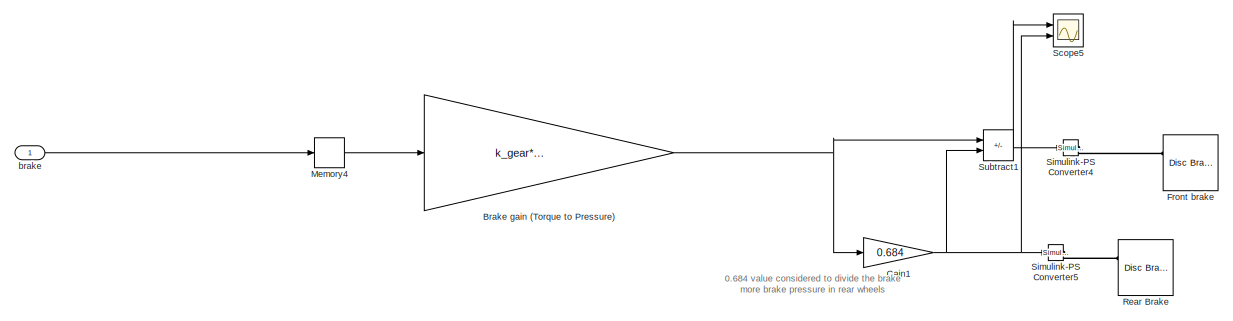
[diagram: Electric Car/Mechanical System - part 1/4, top center region]
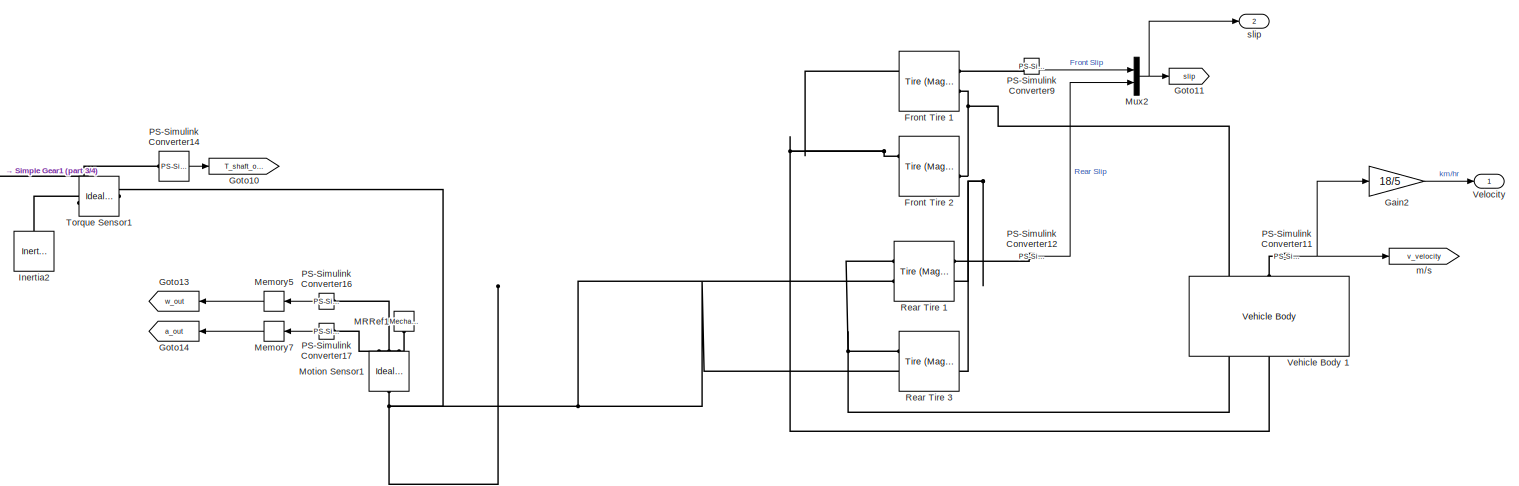
[diagram: Electric Car/Mechanical System - part 2/4, middle right region]
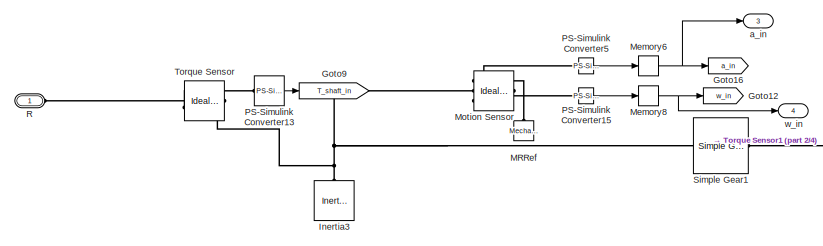
[diagram: Electric Car/Mechanical System - part 3/4, middle left region]
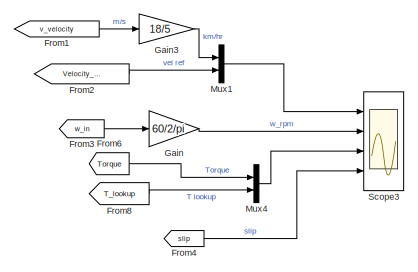
[diagram: Electric Car/Mechanical System - part 4/4, bottom left region]
BLOCK [SubSystem] Electric Car/Mechanical System
  Ports = [1, 4, 0, 0, 0, 1]
  RequestExecContextInheritance = off
BLOCK [Reference] Electric Car/Mechanical System/ Rear Tire 1  REF=sdl_lib/Tires & Vehicles/Tire (Magic Formula)
  Ports = [0, 0, 0, 0, 0, 2, 2]
  SourceBlock = sdl_lib/Tires & Vehicles/Tire (Magic Formula)
  SourceProductBaseCode = LD
  SourceType = Tire (Magic Formula)
BLOCK [Gain] Electric Car/Mechanical System/Brake gain (Torque to Pressure)
  Commented = on
  Gain = k_gear*4*(150/r_wheel)/(pi*0.15*(0.01^2)*0.7*2)
BLOCK [From] Electric Car/Mechanical System/From1
  GotoTag = v_velocity
  TagVisibility = global
BLOCK [From] Electric Car/Mechanical System/From2
  GotoTag = Velocity_ref
  NameLocation = top
BLOCK [From] Electric Car/Mechanical System/From3
  GotoTag = w_in
  TagVisibility = global
BLOCK [From] Electric Car/Mechanical System/From4
  GotoTag = slip
BLOCK [From] Electric Car/Mechanical System/From6
  GotoTag = Torque
BLOCK [From] Electric Car/Mechanical System/From8
  GotoTag = T_lookup
  TagVisibility = global
BLOCK [Reference] Electric Car/Mechanical System/Front Tire 1  REF=sdl_lib/Tires & Vehicles/Tire (Magic Formula)
  Ports = [0, 0, 0, 0, 0, 2, 2]
  SourceBlock = sdl_lib/Tires & Vehicles/Tire (Magic Formula)
  SourceProductBaseCode = LD
  SourceType = Tire (Magic Formula)
BLOCK [Reference] Electric Car/Mechanical System/Front Tire 2  REF=sdl_lib/Tires & Vehicles/Tire (Magic Formula)
  Ports = [0, 0, 0, 0, 0, 2, 2]
  SourceBlock = sdl_lib/Tires & Vehicles/Tire (Magic Formula)
  SourceProductBaseCode = LD
  SourceType = Tire (Magic Formula)
BLOCK [Reference] Electric Car/Mechanical System/Front brake  REF=sdl_lib/Brakes & Detents/Rotational/Disc Brake
  Commented = on
  Ports = [0, 0, 0, 0, 0, 2]
  SourceBlock = sdl_lib/Brakes & Detents/Rotational/Disc Brake
  SourceProductBaseCode = LD
  SourceType = Disc Brake
BLOCK [Gain] Electric Car/Mechanical System/Gain
  Gain = 60/2/pi
BLOCK [Gain] Electric Car/Mechanical System/Gain1
  Commented = on
  Gain = 0.684
BLOCK [Gain] Electric Car/Mechanical System/Gain2
  Gain = 18/5
BLOCK [Gain] Electric Car/Mechanical System/Gain3
  Gain = 18/5
BLOCK [Goto] Electric Car/Mechanical System/Goto10
  GotoTag = T_shaft_out
  TagVisibility = global
BLOCK [Goto] Electric Car/Mechanical System/Goto11
  GotoTag = slip
BLOCK [Goto] Electric Car/Mechanical System/Goto12
  GotoTag = w_in
  TagVisibility = global
BLOCK [Goto] Electric Car/Mechanical System/Goto13
  GotoTag = w_out
  NameLocation = top
  TagVisibility = global
BLOCK [Goto] Electric Car/Mechanical System/Goto14
  GotoTag = a_out
  NameLocation = top
BLOCK [Goto] Electric Car/Mechanical System/Goto16
  GotoTag = a_in
BLOCK [Goto] Electric Car/Mechanical System/Goto9
  GotoTag = T_shaft_in
  TagVisibility = global
BLOCK [Reference] Electric Car/Mechanical System/Inertia2  REF=fl_lib/Mechanical/Rotational Elements/Inertia
  NameLocation = right
  Ports = [0, 0, 0, 0, 0, 1]
  SourceBlock = fl_lib/Mechanical/Rotational Elements/Inertia
  SourceProductBaseCode = SS
  SourceType = Inertia
BLOCK [Reference] Electric Car/Mechanical System/Inertia3  REF=fl_lib/Mechanical/Rotational Elements/Inertia
  NameLocation = right
  Ports = [0, 0, 0, 0, 0, 1]
  SourceBlock = fl_lib/Mechanical/Rotational Elements/Inertia
  SourceProductBaseCode = SS
  SourceType = Inertia
BLOCK [Reference] Electric Car/Mechanical System/MRRef  REF=fl_lib/Mechanical/Rotational Elements/Mechanical
Rotational Reference
  NameLocation = left
  Ports = [0, 0, 0, 0, 0, 1]
  SourceBlock = fl_lib/Mechanical/Rotational Elements/Mechanical\nRotational Reference
  SourceProductName = Foundation Library
  SourceType = Mechanical\nRotational Reference
BLOCK [Reference] Electric Car/Mechanical System/MRRef1  REF=fl_lib/Mechanical/Rotational Elements/Mechanical
Rotational Reference
  NameLocation = right
  Ports = [0, 0, 0, 0, 0, 1]
  SourceBlock = fl_lib/Mechanical/Rotational Elements/Mechanical\nRotational Reference
  SourceProductName = Foundation Library
  SourceType = Mechanical\nRotational Reference
BLOCK [Memory] Electric Car/Mechanical System/Memory4
  Commented = on
BLOCK [Memory] Electric Car/Mechanical System/Memory5
  NameLocation = top
BLOCK [Memory] Electric Car/Mechanical System/Memory6
BLOCK [Memory] Electric Car/Mechanical System/Memory7
  NameLocation = top
BLOCK [Memory] Electric Car/Mechanical System/Memory8
BLOCK [Reference] Electric Car/Mechanical System/Motion Sensor  REF=fl_lib/Mechanical/Mechanical Sensors/Ideal Rotational
Motion Sensor
  NameLocation = top
  Ports = [0, 0, 0, 0, 0, 1, 3]
  SourceBlock = fl_lib/Mechanical/Mechanical Sensors/Ideal Rotational\nMotion Sensor
  SourceProductName = Foundation Library
  SourceType = Ideal Rotational\nMotion Sensor
BLOCK [Reference] Electric Car/Mechanical System/Motion Sensor1  REF=fl_lib/Mechanical/Mechanical Sensors/Ideal Rotational
Motion Sensor
  NameLocation = left
  Ports = [0, 0, 0, 0, 0, 1, 3]
  SourceBlock = fl_lib/Mechanical/Mechanical Sensors/Ideal Rotational\nMotion Sensor
  SourceProductName = Foundation Library
  SourceType = Ideal Rotational\nMotion Sensor
BLOCK [Mux] Electric Car/Mechanical System/Mux1
  DisplayOption = bar
  Inputs = 2
  Ports = [2, 1]
BLOCK [Mux] Electric Car/Mechanical System/Mux2
  DisplayOption = bar
  Inputs = 2
  Ports = [2, 1]
BLOCK [Mux] Electric Car/Mechanical System/Mux4
  DisplayOption = bar
  Inputs = 2
  Ports = [2, 1]
BLOCK [Reference] Electric Car/Mechanical System/PS-Simulink Converter11  REF=nesl_utility/PS-Simulink
Converter
  Ports = [0, 1, 0, 0, 0, 1]
  SourceBlock = nesl_utility/PS-Simulink\nConverter
  SourceProductBaseCode = SS
  SourceType = PS-Simulink\nConverter
BLOCK [Reference] Electric Car/Mechanical System/PS-Simulink Converter12  REF=nesl_utility/PS-Simulink
Converter
  Ports = [0, 1, 0, 0, 0, 1]
  SourceBlock = nesl_utility/PS-Simulink\nConverter
  SourceProductBaseCode = SS
  SourceType = PS-Simulink\nConverter
BLOCK [Reference] Electric Car/Mechanical System/PS-Simulink Converter13  REF=nesl_utility/PS-Simulink
Converter
  Ports = [0, 1, 0, 0, 0, 1]
  SourceBlock = nesl_utility/PS-Simulink\nConverter
  SourceProductName = Utilities
  SourceType = PS-Simulink\nConverter
BLOCK [Reference] Electric Car/Mechanical System/PS-Simulink Converter14  REF=nesl_utility/PS-Simulink
Converter
  Ports = [0, 1, 0, 0, 0, 1]
  SourceBlock = nesl_utility/PS-Simulink\nConverter
  SourceProductName = Utilities
  SourceType = PS-Simulink\nConverter
BLOCK [Reference] Electric Car/Mechanical System/PS-Simulink Converter15  REF=nesl_utility/PS-Simulink
Converter
  Ports = [0, 1, 0, 0, 0, 1]
  SourceBlock = nesl_utility/PS-Simulink\nConverter
  SourceProductBaseCode = PW,SS
  SourceType = PS-Simulink\nConverter
BLOCK [Reference] Electric Car/Mechanical System/PS-Simulink Converter16  REF=nesl_utility/PS-Simulink
Converter
  NameLocation = top
  Ports = [0, 1, 0, 0, 0, 1]
  SourceBlock = nesl_utility/PS-Simulink\nConverter
  SourceProductBaseCode = PW,SS
  SourceType = PS-Simulink\nConverter
BLOCK [Reference] Electric Car/Mechanical System/PS-Simulink Converter17  REF=nesl_utility/PS-Simulink
Converter
  NameLocation = top
  Ports = [0, 1, 0, 0, 0, 1]
  SourceBlock = nesl_utility/PS-Simulink\nConverter
  SourceProductBaseCode = PW,SS
  SourceType = PS-Simulink\nConverter
BLOCK [Reference] Electric Car/Mechanical System/PS-Simulink Converter5  REF=nesl_utility/PS-Simulink
Converter
  Ports = [0, 1, 0, 0, 0, 1]
  SourceBlock = nesl_utility/PS-Simulink\nConverter
  SourceProductBaseCode = PW,SS
  SourceType = PS-Simulink\nConverter
BLOCK [Reference] Electric Car/Mechanical System/PS-Simulink Converter9  REF=nesl_utility/PS-Simulink
Converter
  Ports = [0, 1, 0, 0, 0, 1]
  SourceBlock = nesl_utility/PS-Simulink\nConverter
  SourceProductBaseCode = SS
  SourceType = PS-Simulink\nConverter
BLOCK [PMIOPort] Electric Car/Mechanical System/R
  NameLocation = top
  Side = Left
BLOCK [Reference] Electric Car/Mechanical System/Rear Brake  REF=sdl_lib/Brakes & Detents/Rotational/Disc Brake
  Commented = on
  Ports = [0, 0, 0, 0, 0, 2]
  SourceBlock = sdl_lib/Brakes & Detents/Rotational/Disc Brake
  SourceProductBaseCode = LD
  SourceType = Disc Brake
BLOCK [Reference] Electric Car/Mechanical System/Rear Tire 3  REF=sdl_lib/Tires & Vehicles/Tire (Magic Formula)
  Ports = [0, 0, 0, 0, 0, 2, 2]
  SourceBlock = sdl_lib/Tires & Vehicles/Tire (Magic Formula)
  SourceProductBaseCode = LD
  SourceType = Tire (Magic Formula)
BLOCK [Scope] Electric Car/Mechanical System/Scope3
  Floating = off
  NumInputPorts = 4
  Ports = [4]
  ScopeSpecificationString = Simulink.scopes.TimeScopeBlockCfg('CurrentConfiguration', extmgr.ConfigurationSet(extmgr.Configuration('Core','General UI',true,'FigureColor',[1 1 1]),extmgr.Configuration('Core','Source UI',true),extmgr.Configuration('Sources','WiredSimulink',true,'DataLoggingVariableName','ScopeData1'),extmgr.Configuration('Visuals','Time Domain',true,'SerializedDisplays',{struct('MinYLimReal','-18.85947','MaxYL...<+4261ch>
BLOCK [Scope] Electric Car/Mechanical System/Scope5
  Commented = on
  Floating = off
  NumInputPorts = 2
  Ports = [2]
  ScopeSpecificationString = Simulink.scopes.TimeScopeBlockCfg('CurrentConfiguration', extmgr.ConfigurationSet(extmgr.Configuration('Core','General UI',true),extmgr.Configuration('Core','Source UI',true),extmgr.Configuration('Sources','WiredSimulink',true,'DataLoggingVariableName','ScopeData3'),extmgr.Configuration('Visuals','Time Domain',true,'SerializedDisplays',{struct('MinYLimReal','-1.00000','MaxYLimReal','1.00000','YLab...<+1551ch>
BLOCK [Reference] Electric Car/Mechanical System/Simple Gear1  REF=sdl_lib/Gears/Simple Gear
  Ports = [0, 0, 0, 0, 0, 1, 1]
  SourceBlock = sdl_lib/Gears/Simple Gear
  SourceProductBaseCode = LD
  SourceType = Simple Gear
BLOCK [Reference] Electric Car/Mechanical System/Simulink-PS Converter4  REF=nesl_utility/Simulink-PS
Converter
  Commented = on
  Ports = [1, 0, 0, 0, 0, 0, 1]
  SourceBlock = nesl_utility/Simulink-PS\nConverter
  SourceProductBaseCode = SS
  SourceType = Simulink-PS\nConverter
BLOCK [Reference] Electric Car/Mechanical System/Simulink-PS Converter5  REF=nesl_utility/Simulink-PS
Converter
  Commented = on
  Ports = [1, 0, 0, 0, 0, 0, 1]
  SourceBlock = nesl_utility/Simulink-PS\nConverter
  SourceProductBaseCode = SS
  SourceType = Simulink-PS\nConverter
BLOCK [Sum] Electric Car/Mechanical System/Subtract1
  Commented = on
  IconShape = rectangular
  Inputs = +-
  Ports = [2, 1]
BLOCK [Reference] Electric Car/Mechanical System/Torque Sensor  REF=fl_lib/Mechanical/Mechanical Sensors/Ideal Torque Sensor
  Ports = [0, 0, 0, 0, 0, 1, 2]
  SourceBlock = fl_lib/Mechanical/Mechanical Sensors/Ideal Torque Sensor
  SourceProductName = Foundation Library
  SourceType = Ideal Torque Sensor
BLOCK [Reference] Electric Car/Mechanical System/Torque Sensor1  REF=fl_lib/Mechanical/Mechanical Sensors/Ideal Torque Sensor
  Ports = [0, 0, 0, 0, 0, 1, 2]
  SourceBlock = fl_lib/Mechanical/Mechanical Sensors/Ideal Torque Sensor
  SourceProductName = Foundation Library
  SourceType = Ideal Torque Sensor
BLOCK [Reference] Electric Car/Mechanical System/Vehicle Body 1  REF=sdl_lib/Tires & Vehicles/Vehicle Body
  NameLocation = right
  Ports = [0, 0, 0, 0, 0, 3, 3]
  SourceBlock = sdl_lib/Tires & Vehicles/Vehicle Body
  SourceProductBaseCode = LD
  SourceType = Vehicle Body
BLOCK [Outport] Electric Car/Mechanical System/Velocity
BLOCK [Outport] Electric Car/Mechanical System/a_in
  Port = 3
BLOCK [Inport] Electric Car/Mechanical System/brake
BLOCK [Goto] Electric Car/Mechanical System/m//s
  GotoTag = v_velocity
  TagVisibility = global
BLOCK [Outport] Electric Car/Mechanical System/slip
  Port = 2
BLOCK [Outport] Electric Car/Mechanical System/w_in
  Port = 4
BLOCK [Outport] Electric Car/SOC
  NameLocation = top
  Port = 4
BLOCK [Reference] Electric Car/Solver Configuration2  REF=nesl_utility/Solver
Configuration
  Ports = [0, 0, 0, 0, 0, 0, 1]
  SourceBlock = nesl_utility/Solver\nConfiguration
  SourceProductBaseCode = SS
  SourceType = Solver\nConfiguration
BLOCK [Inport] Electric Car/Tmechbreak*
BLOCK [Outport] Electric Car/Vbatt
  NameLocation = top
  Port = 5
BLOCK [Outport] Electric Car/Vcar
  NameLocation = top
BLOCK [Outport] Electric Car/Vdc
  NameLocation = top
  Port = 7
BLOCK [Inport] Electric Car/Vdq0
  Port = 2
BLOCK [Outport] Electric Car/a_in
  NameLocation = top
  Port = 9
BLOCK [Inport] Electric Car/d
  Port = 3
BLOCK [Outport] Electric Car/idc
  NameLocation = top
  Port = 3
BLOCK [Outport] Electric Car/idc_brake
  NameLocation = top
  Port = 2
BLOCK [Outport] Electric Car/w_in
  NameLocation = top
  Port = 10
BLOCK [SubSystem] Energy Cons
  Ports = [2, 1]
  RequestExecContextInheritance = off
BLOCK [Clock] Energy Cons/Clock
BLOCK [Clock] Energy Cons/Clock1
BLOCK [Scope] Energy Cons/Distance km
  Floating = off
  NumInputPorts = 1
  Ports = [1]
  ScopeSpecificationString = Simulink.scopes.TimeScopeBlockCfg('CurrentConfiguration', extmgr.ConfigurationSet(extmgr.Configuration('Core','General UI',true),extmgr.Configuration('Core','Source UI',true),extmgr.Configuration('Sources','WiredSimulink',true,'DataLoggingVariableName','ScopeData1'),extmgr.Configuration('Visuals','Time Domain',true,'SerializedDisplays',{struct('MinYLimReal','-0.75362','MaxYLimReal','6.78259','YLab...<+1438ch>
BLOCK [Product] Energy Cons/Divide
  Inputs = */
  Ports = [2, 1]
BLOCK [Gain] Energy Cons/Gain1
  Gain = 1/3600
BLOCK [Inport] Energy Cons/P
  Port = 2
BLOCK [Product] Energy Cons/Product2
  Ports = [2, 1]
BLOCK [Product] Energy Cons/Product3
  Ports = [2, 1]
BLOCK [Gain] Energy Cons/W to kW
  Gain = 1/1000
  NameLocation = top
BLOCK [Scope] Energy Cons/kWh
  Floating = off
  NumInputPorts = 1
  Ports = [1]
  ScopeSpecificationString = Simulink.scopes.TimeScopeBlockCfg('CurrentConfiguration', extmgr.ConfigurationSet(extmgr.Configuration('Core','General UI',true),extmgr.Configuration('Core','Source UI',true),extmgr.Configuration('Sources','WiredSimulink',true,'DataLoggingVariableName','ScopeData3'),extmgr.Configuration('Visuals','Time Domain',true,'SerializedDisplays',{struct('MinYLimReal','-0.75362','MaxYLimReal','6.78259','YLab...<+1438ch>
BLOCK [Outport] Energy Cons/kWh//km
BLOCK [Gain] Energy Cons/m//s to km//hr
  Gain = 18/5
BLOCK [Gain] Energy Cons/s to hr
  Gain = 1/3600
BLOCK [Inport] Energy Cons/v
BLOCK [From] From
  GotoTag = vel
  TagVisibility = global
BLOCK [From] From1
  GotoTag = ModWave
  TagVisibility = global
BLOCK [From] From10
  GotoTag = I_L
  TagVisibility = global
BLOCK [From] From11
  GotoTag = Iabc
  TagVisibility = global
BLOCK [From] From16
  GotoTag = slip
  TagVisibility = global
BLOCK [From] From18
  GotoTag = Ibatt
  NameLocation = top
  TagVisibility = global
BLOCK [From] From19
  GotoTag = SOC
  NameLocation = top
  TagVisibility = global
BLOCK [From] From2
  GotoTag = i_meas
  TagVisibility = global
BLOCK [From] From20
  GotoTag = P_mot
BLOCK [From] From21
  GotoTag = Vdc
  TagVisibility = global
BLOCK [From] From22
  GotoTag = Vbatt
  TagVisibility = global
BLOCK [From] From23
  GotoTag = iq_meas
  NameLocation = top
  TagVisibility = global
BLOCK [From] From24
  GotoTag = Tem_ref
  TagVisibility = global
BLOCK [From] From25
  GotoTag = d
  TagVisibility = global
BLOCK [From] From26
  GotoTag = T_shaft_in
  TagVisibility = global
BLOCK [From] From27
  GotoTag = T_shaft_out
  TagVisibility = global
BLOCK [From] From28
  GotoTag = vel_ref
  TagVisibility = global
BLOCK [From] From29
  GotoTag = T_lookup
  TagVisibility = global
BLOCK [From] From3
  GotoTag = Eff
BLOCK [From] From30
  GotoTag = w_out
  NameLocation = top
  TagVisibility = global
BLOCK [From] From33
  GotoTag = idc
  TagVisibility = global
BLOCK [From] From37
  GotoTag = T_shaft_in
  TagVisibility = global
BLOCK [From] From38
  GotoTag = w_in
  TagVisibility = global
BLOCK [From] From4
  GotoTag = idc
  TagVisibility = global
BLOCK [From] From45
  GotoTag = E_con
BLOCK [From] From46
  GotoTag = vel
  TagVisibility = global
BLOCK [From] From47
  GotoTag = P_loss
BLOCK [From] From48
  GotoTag = P_mot
BLOCK [From] From49
  GotoTag = P_loss
BLOCK [From] From5
  GotoTag = T_shaft_in
  TagVisibility = global
BLOCK [From] From50
  GotoTag = P_mot
BLOCK [From] From51
  GotoTag = vel
  TagVisibility = global
BLOCK [From] From54
  GotoTag = w_in
  TagVisibility = global
BLOCK [From] From6
  GotoTag = Vdc
  NameLocation = top
  TagVisibility = global
BLOCK [From] From7
  GotoTag = id_meas
  NameLocation = top
  TagVisibility = global
BLOCK [From] From8
  GotoTag = w_in
  TagVisibility = global
BLOCK [From] From9
  GotoTag = d_abc
  TagVisibility = global
BLOCK [Gain] Gain1
  Gain = 60/2/pi
BLOCK [Gain] Gain2
  Gain = 60/2/pi
BLOCK [Gain] Gain3
  Gain = 1/1000
BLOCK [Gain] Gain4
  Gain = 1/1000
BLOCK [Goto] Goto18
  GotoTag = P_mot
BLOCK [Goto] Goto19
  GotoTag = P_loss
BLOCK [Goto] Goto20
  GotoTag = Eff
BLOCK [Goto] Goto21
  GotoTag = E_con
BLOCK [SubSystem] Loss Calculation
  Ports = [1, 1]
  RequestExecContextInheritance = off
BLOCK [Constant] Loss Calculation/Constant
  Value = mass
BLOCK [Gain] Loss Calculation/Gain
  Gain = rho/2
BLOCK [Gain] Loss Calculation/Gain1
  Gain = C_drag*A_front
BLOCK [Gain] Loss Calculation/Gain2
  Gain = 9.8*fr
BLOCK [Gain] Loss Calculation/Gain3
  Gain = 5/18
BLOCK [Outport] Loss Calculation/P_loss
BLOCK [Product] Loss Calculation/Product
  Ports = [2, 1]
BLOCK [Product] Loss Calculation/Product1
  Ports = [2, 1]
BLOCK [Math] Loss Calculation/Square
  Operator = square
  Ports = [1, 1]
BLOCK [Sum] Loss Calculation/Sum
  Ports = [2, 1]
BLOCK [Inport] Loss Calculation/v
BLOCK [Reference] Mean2  REF=spsMeanLib/Mean
  Ports = [1, 1]
  SourceBlock = spsMeanLib/Mean
  SourceProductBaseCode = PS
  SourceType = Mean
BLOCK [Mux] Mux1
  DisplayOption = bar
  Inputs = 2
  Ports = [2, 1]
BLOCK [Mux] Mux10
  DisplayOption = bar
  Inputs = 2
  Ports = [2, 1]
BLOCK [Mux] Mux11
  DisplayOption = bar
  Inputs = 3
  Ports = [3, 1]
BLOCK [Mux] Mux3
  DisplayOption = bar
  Inputs = 2
  Ports = [2, 1]
BLOCK [Mux] Mux5
  DisplayOption = bar
  Inputs = 3
  Ports = [3, 1]
BLOCK [Mux] Mux6
  DisplayOption = bar
  Inputs = 2
  Ports = [2, 1]
BLOCK [Product] Product1
  Ports = [2, 1]
BLOCK [Scope] Scope
  Floating = off
  NumInputPorts = 4
  Ports = [4]
  ScopeSpecificationString = Simulink.scopes.TimeScopeBlockCfg('CurrentConfiguration', extmgr.ConfigurationSet(extmgr.Configuration('Core','General UI',true,'FigureColor',[1 1 1]),extmgr.Configuration('Core','Source UI',true),extmgr.Configuration('Sources','WiredSimulink',true,'DataLoggingVariableName','ScopeData2'),extmgr.Configuration('Visuals','Time Domain',true,'SerializedDisplays',{struct('MinYLimReal','-25.27221','MaxYL...<+3628ch>
BLOCK [Scope] Scope1
  Floating = off
  NumInputPorts = 2
  Ports = [2]
  ScopeSpecificationString = Simulink.scopes.TimeScopeBlockCfg('CurrentConfiguration', extmgr.ConfigurationSet(extmgr.Configuration('Core','General UI',true,'FigureColor',[1 1 1]),extmgr.Configuration('Core','Source UI',true),extmgr.Configuration('Sources','WiredSimulink',true,'DataLoggingVariableName','ScopeData2'),extmgr.Configuration('Visuals','Time Domain',true,'SerializedDisplays',{struct('MinYLimReal','-10','MaxYLimReal...<+2975ch>
BLOCK [SubSystem] Sensors
  NameLocation = top
  Ports = [10, 10]
  RequestExecContextInheritance = off
BLOCK [Inport] Sensors/I_L
  Port = 6
BLOCK [Outport] Sensors/I_L_m
  Port = 6
BLOCK [Inport] Sensors/Iabc
  Port = 8
BLOCK [Outport] Sensors/Iabc_m
  Port = 8
BLOCK [Inport] Sensors/SOC
  Port = 4
BLOCK [Outport] Sensors/SOC_m
  Port = 4
BLOCK [Reference] Sensors/Second-Order Filter1  REF=spsSecondOrderFilterLib/Second-Order
Filter
  Commented = through
  Ports = [1, 1]
  SourceBlock = spsSecondOrderFilterLib/Second-Order\nFilter
  SourceProductBaseCode = PS
  SourceType = Second-Order Filter
BLOCK [Reference] Sensors/Second-Order Filter10  REF=spsSecondOrderFilterLib/Second-Order
Filter
  Commented = through
  Ports = [1, 1]
  SourceBlock = spsSecondOrderFilterLib/Second-Order\nFilter
  SourceProductBaseCode = PS
  SourceType = Second-Order Filter
BLOCK [Reference] Sensors/Second-Order Filter11  REF=spsSecondOrderFilterLib/Second-Order
Filter
  Commented = through
  Ports = [1, 1]
  SourceBlock = spsSecondOrderFilterLib/Second-Order\nFilter
  SourceProductBaseCode = PS
  SourceType = Second-Order Filter
BLOCK [Reference] Sensors/Second-Order Filter2  REF=spsSecondOrderFilterLib/Second-Order
Filter
  Commented = through
  Ports = [1, 1]
  SourceBlock = spsSecondOrderFilterLib/Second-Order\nFilter
  SourceProductBaseCode = PS
  SourceType = Second-Order Filter
BLOCK [Reference] Sensors/Second-Order Filter3  REF=spsSecondOrderFilterLib/Second-Order
Filter
  Commented = through
  Ports = [1, 1]
  SourceBlock = spsSecondOrderFilterLib/Second-Order\nFilter
  SourceProductBaseCode = PS
  SourceType = Second-Order Filter
BLOCK [Reference] Sensors/Second-Order Filter4  REF=spsSecondOrderFilterLib/Second-Order
Filter
  Commented = through
  Ports = [1, 1]
  SourceBlock = spsSecondOrderFilterLib/Second-Order\nFilter
  SourceProductBaseCode = PS
  SourceType = Second-Order Filter
BLOCK [Reference] Sensors/Second-Order Filter5  REF=spsSecondOrderFilterLib/Second-Order
Filter
  Commented = through
  Ports = [1, 1]
  SourceBlock = spsSecondOrderFilterLib/Second-Order\nFilter
  SourceProductBaseCode = PS
  SourceType = Second-Order Filter
BLOCK [Reference] Sensors/Second-Order Filter6  REF=spsSecondOrderFilterLib/Second-Order
Filter
  Commented = through
  Ports = [1, 1]
  SourceBlock = spsSecondOrderFilterLib/Second-Order\nFilter
  SourceProductBaseCode = PS
  SourceType = Second-Order Filter
BLOCK [Reference] Sensors/Second-Order Filter7  REF=spsSecondOrderFilterLib/Second-Order
Filter
  Commented = through
  Ports = [1, 1]
  SourceBlock = spsSecondOrderFilterLib/Second-Order\nFilter
  SourceProductBaseCode = PS
  SourceType = Second-Order Filter
BLOCK [Reference] Sensors/Second-Order Filter8  REF=spsSecondOrderFilterLib/Second-Order
Filter
  Commented = through
  Ports = [1, 1]
  SourceBlock = spsSecondOrderFilterLib/Second-Order\nFilter
  SourceProductBaseCode = PS
  SourceType = Second-Order Filter
BLOCK [Outport] Sensors/VCar_m
BLOCK [Inport] Sensors/Vbatt
  Port = 5
BLOCK [Outport] Sensors/Vbatt_m
  Port = 5
BLOCK [Inport] Sensors/Vcar
BLOCK [Inport] Sensors/Vdc
  Port = 7
BLOCK [Outport] Sensors/Vdc_m
  Port = 7
BLOCK [Inport] Sensors/a_in
  Port = 9
BLOCK [Outport] Sensors/a_in_m
  Port = 9
BLOCK [Inport] Sensors/idc
  Port = 3
BLOCK [Inport] Sensors/idc_brake
  Port = 2
BLOCK [Outport] Sensors/idc_brake_m
  Port = 2
BLOCK [Outport] Sensors/idc_m
  Port = 3
BLOCK [Inport] Sensors/w_in
  Port = 10
BLOCK [Outport] Sensors/w_in_m
  Port = 10
BLOCK [SubSystem] Subsystem2
  Ports = [4, 2]
  RequestExecContextInheritance = off
BLOCK [Constant] Subsystem2/Constant
  Value = 1000
BLOCK [Constant] Subsystem2/Constant1
  Value = 1000
BLOCK [Product] Subsystem2/Divide
  Inputs = **
  Ports = [2, 1]
BLOCK [Product] Subsystem2/Divide1
  Inputs = **
  Ports = [2, 1]
BLOCK [Product] Subsystem2/Divide2
  Inputs = */
  Ports = [2, 1]
BLOCK [Product] Subsystem2/Divide3
  Inputs = */
  Ports = [2, 1]
BLOCK [Reference] Subsystem2/Mean1  REF=spsMeanLib/Mean
  Ports = [1, 1]
  SourceBlock = spsMeanLib/Mean
  SourceProductBaseCode = PS
  SourceType = Mean
BLOCK [Reference] Subsystem2/Mean2  REF=spsMeanLib/Mean
  Ports = [1, 1]
  SourceBlock = spsMeanLib/Mean
  SourceProductBaseCode = PS
  SourceType = Mean
BLOCK [Outport] Subsystem2/P_input
BLOCK [Outport] Subsystem2/P_output
  Port = 2
BLOCK [Inport] Subsystem2/idc
BLOCK [Inport] Subsystem2/t-shaft-in
  Port = 3
BLOCK [Inport] Subsystem2/vdc
  Port = 2
BLOCK [Inport] Subsystem2/w-in
  Port = 4
BLOCK [Scope] Vehicle
  Floating = off
  NumInputPorts = 8
  Ports = [8]
  ScopeSpecificationString = Simulink.scopes.TimeScopeBlockCfg('CurrentConfiguration', extmgr.ConfigurationSet(extmgr.Configuration('Core','General UI',true,'FigureColor',[1 1 1]),extmgr.Configuration('Core','Source UI',true),extmgr.Configuration('Sources','WiredSimulink',true,'DataLoggingVariableName','ScopeData6'),extmgr.Configuration('Visuals','Time Domain',true,'SerializedDisplays',{struct('MinYLimReal','-7.52002','MaxYLi...<+8123ch>
BLOCK [Reference] powergui  REF=spspowerguiLib/powergui
  Ports = []
  Priority = 1
  SourceBlock = spspowerguiLib/powergui
  SourceProductBaseCode = PS
  SourceType = PSB option menu block
ANNOTATION (root): MEASUREMENT SCOPES
ANNOTATION (root): model based aproach------>Discritize------>real time implementaion(Hardware)
ANNOTATION Cruise Control/DC-DC Control: Limit from ESHEV
ANNOTATION Cruise Control/DC-DC Control: Current Controller
ANNOTATION Cruise Control/DC-DC Control: Dividing the output current by (1-d) to obtain the input current
ANNOTATION Cruise Control/DC-DC Control: Feed forwarding load current.
ANNOTATION Cruise Control/DC-DC Control: Voltage Controller
ANNOTATION Cruise Control/Motor Control/Current Controller: V saturated
ANNOTATION Cruise Control/Motor Control/Current Controller: Fixed maximum overshoot. Obtained damping factor and calculated kp and ki
ANNOTATION Cruise Control/Motor Control/Current Controller: Manually tuned the kp and ki values
ANNOTATION Cruise Control/Motor Control/Current Controller: Vd Feed-Forward
ANNOTATION Cruise Control/Motor Control/Current Controller: Vq Feed-Forward
ANNOTATION Cruise Control/Motor Control/Current Generation (MTPA): This LUT provides the dq current based on the torque input. This LUT is constructed based on the MTPA strategy.
ANNOTATION Cruise Control/Torque Sharing: this gain can be adjusted based on the brake command needed
ANNOTATION Cruise Control/Torque Sharing/Subsystem: Mechanical Break
ANNOTATION Driving Profile: position, speed and acceleration
ANNOTATION Electric Car: Motor
ANNOTATION Electric Car: here, check the value of Imin
ANNOTATION Electric Car/Mechanical System: 0.684 value considered to divide the brake more brake pressure in rear wheels
ANNOTATION Sensors: filter, delays and reduces the phase margin and creates extra oveshoots. if it's too muvh problem, just remove these filters
LINE Constant1:1 -> Mux3:2
LINE Cruise Control/DC-DC Control/Constant1:1 -> Cruise Control/DC-DC Control/Minus1:1
LINE Cruise Control/DC-DC Control/Constant2:1 -> Cruise Control/DC-DC Control/Sum6:2
LINE Cruise Control/DC-DC Control/Divide1:1 -> Cruise Control/DC-DC Control/Sum6:1
NET Cruise Control/DC-DC Control/Divide:1 -> Cruise Control/DC-DC Control/Scope2:1, Cruise Control/DC-DC Control/Sum4:1
NET Cruise Control/DC-DC Control/From:1 -> Cruise Control/DC-DC Control/Gain3:1, Cruise Control/DC-DC Control/Sum9:1
LINE Cruise Control/DC-DC Control/Gain3:1 -> Cruise Control/DC-DC Control/Saturation Dynamic:1
LINE Cruise Control/DC-DC Control/I_L:1 -> Cruise Control/DC-DC Control/Sum4:2
LINE Cruise Control/DC-DC Control/Idc:1 -> Cruise Control/DC-DC Control/Sum3:1
LINE Cruise Control/DC-DC Control/Memory1:1 -> Cruise Control/DC-DC Control/Minus1:2
LINE Cruise Control/DC-DC Control/Minus1:1 -> Cruise Control/DC-DC Control/Divide:2
LINE Cruise Control/DC-DC Control/PID Controller1:1 -> Cruise Control/DC-DC Control/Saturation Dynamic:2
LINE Cruise Control/DC-DC Control/PID Controller:1 -> Cruise Control/DC-DC Control/Sum3:2
NET Cruise Control/DC-DC Control/Pi:1 -> Cruise Control/DC-DC Control/Divide1:2, Cruise Control/DC-DC Control/Sum2:1, Cruise Control/DC-DC Control/Sum9:2
LINE Cruise Control/DC-DC Control/Saturation Dynamic:1 -> Cruise Control/DC-DC Control/Sum5:2
NET Cruise Control/DC-DC Control/Saturation:1 -> Cruise Control/DC-DC Control/Scope:1, Cruise Control/DC-DC Control/duty:1
LINE Cruise Control/DC-DC Control/Sum2:1 -> Cruise Control/DC-DC Control/PID Controller:1
LINE Cruise Control/DC-DC Control/Sum3:1 -> Cruise Control/DC-DC Control/Divide:1
LINE Cruise Control/DC-DC Control/Sum4:1 -> Cruise Control/DC-DC Control/PID Controller1:1
LINE Cruise Control/DC-DC Control/Sum5:1 -> Cruise Control/DC-DC Control/Divide1:1
LINE Cruise Control/DC-DC Control/Sum6:1 -> Cruise Control/DC-DC Control/Saturation:1
LINE Cruise Control/DC-DC Control/Sum9:1 -> Cruise Control/DC-DC Control/Saturation Dynamic:3
NET Cruise Control/DC-DC Control/Vbatt:1 -> Cruise Control/DC-DC Control/Goto:1, Cruise Control/DC-DC Control/Sum5:1
LINE Cruise Control/DC-DC Control/Vdc:1 -> Cruise Control/DC-DC Control/Sum2:2
LINE Cruise Control/DC-DC Control/d:1 -> Cruise Control/DC-DC Control/Memory1:1
NET Cruise Control/DC-DC Control:1 -> Cruise Control/Goto3:1, Cruise Control/d:1
LINE Cruise Control/From35:1 -> Cruise Control/DC-DC Control:5
LINE Cruise Control/From:1 -> Cruise Control/Torque Sharing:2
LINE Cruise Control/I_L:1 -> Cruise Control/DC-DC Control:4
LINE Cruise Control/Motor Control/1-D Lookup Table:1 -> Cruise Control/Motor Control/Goto3:1
LINE Cruise Control/Motor Control/Constant:1 -> Cruise Control/Motor Control/Mux2:3
NET Cruise Control/Motor Control/Current Controller/Cartesian to Polar2:1 -> Cruise Control/Motor Control/Current Controller/Mean1:1, Cruise Control/Motor Control/Current Controller/Saturation1:1
NET Cruise Control/Motor Control/Current Controller/Cartesian to Polar2:2 -> Cruise Control/Motor Control/Current Controller/Polar to Cartesian3:2, Cruise Control/Motor Control/Current Controller/Polar to Cartesian4:2
LINE Cruise Control/Motor Control/Current Controller/Divide1:1 -> Cruise Control/Motor Control/Current Controller/Sum:2
LINE Cruise Control/Motor Control/Current Controller/Divide:1 -> Cruise Control/Motor Control/Current Controller/Sum8:1
LINE Cruise Control/Motor Control/Current Controller/From1:1 -> Cruise Control/Motor Control/Current Controller/Sum1:3
LINE Cruise Control/Motor Control/Current Controller/From2:1 -> Cruise Control/Motor Control/Current Controller/Sum2:3
LINE Cruise Control/Motor Control/Current Controller/From3:1 -> Cruise Control/Motor Control/Current Controller/Divide1:2
NET Cruise Control/Motor Control/Current Controller/From4:1 -> Cruise Control/Motor Control/Current Controller/Gain3:1, Cruise Control/Motor Control/Current Controller/Gain4:1
LINE Cruise Control/Motor Control/Current Controller/From5:1 -> Cruise Control/Motor Control/Current Controller/Divide:2
LINE Cruise Control/Motor Control/Current Controller/From:1 -> Cruise Control/Motor Control/Current Controller/Gain2:1
LINE Cruise Control/Motor Control/Current Controller/Gain2:1 -> Cruise Control/Motor Control/Current Controller/Divide:1
LINE Cruise Control/Motor Control/Current Controller/Gain3:1 -> Cruise Control/Motor Control/Current Controller/Divide1:1
LINE Cruise Control/Motor Control/Current Controller/Gain4:1 -> Cruise Control/Motor Control/Current Controller/Sum:1
NET Cruise Control/Motor Control/Current Controller/Mean1:1 -> Cruise Control/Motor Control/Current Controller/Saturation2:1, Cruise Control/Motor Control/Current Controller/Sum10:1
LINE Cruise Control/Motor Control/Current Controller/PID Controller1:1 -> Cruise Control/Motor Control/Current Controller/Sum9:1
LINE Cruise Control/Motor Control/Current Controller/PID Controller2:1 -> Cruise Control/Motor Control/Current Controller/Sum2:1
LINE Cruise Control/Motor Control/Current Controller/PID Controller3:1 -> Cruise Control/Motor Control/Current Controller/Sum1:1
LINE Cruise Control/Motor Control/Current Controller/PID Controller4:1 -> Cruise Control/Motor Control/Current Controller/Sum8:2
LINE Cruise Control/Motor Control/Current Controller/Polar to Cartesian3:1 -> Cruise Control/Motor Control/Current Controller/Vq_ref:1
LINE Cruise Control/Motor Control/Current Controller/Polar to Cartesian3:2 -> Cruise Control/Motor Control/Current Controller/Vd_ref:1
LINE Cruise Control/Motor Control/Current Controller/Polar to Cartesian4:1 -> Cruise Control/Motor Control/Current Controller/PID Controller2:1
LINE Cruise Control/Motor Control/Current Controller/Polar to Cartesian4:2 -> Cruise Control/Motor Control/Current Controller/PID Controller3:1
LINE Cruise Control/Motor Control/Current Controller/Saturation1:1 -> Cruise Control/Motor Control/Current Controller/Polar to Cartesian3:1
LINE Cruise Control/Motor Control/Current Controller/Saturation2:1 -> Cruise Control/Motor Control/Current Controller/Sum10:2
LINE Cruise Control/Motor Control/Current Controller/Sum10:1 -> Cruise Control/Motor Control/Current Controller/Polar to Cartesian4:1
LINE Cruise Control/Motor Control/Current Controller/Sum1:1 -> Cruise Control/Motor Control/Current Controller/PID Controller4:1
LINE Cruise Control/Motor Control/Current Controller/Sum2:1 -> Cruise Control/Motor Control/Current Controller/PID Controller1:1
LINE Cruise Control/Motor Control/Current Controller/Sum8:1 -> Cruise Control/Motor Control/Current Controller/Cartesian to Polar2:2
LINE Cruise Control/Motor Control/Current Controller/Sum9:1 -> Cruise Control/Motor Control/Current Controller/Cartesian to Polar2:1
LINE Cruise Control/Motor Control/Current Controller/Sum:1 -> Cruise Control/Motor Control/Current Controller/Sum9:2
LINE Cruise Control/Motor Control/Current Controller/id_ref:1 -> Cruise Control/Motor Control/Current Controller/Sum1:2
LINE Cruise Control/Motor Control/Current Controller/iq_ref:1 -> Cruise Control/Motor Control/Current Controller/Sum2:2
LINE Cruise Control/Motor Control/Current Controller:1 -> Cruise Control/Motor Control/Mux2:1
LINE Cruise Control/Motor Control/Current Controller:2 -> Cruise Control/Motor Control/Mux2:2
LINE Cruise Control/Motor Control/Current Generation (MTPA)/Demux:2 -> Cruise Control/Motor Control/Current Generation (MTPA)/Switch3:1
LINE Cruise Control/Motor Control/Current Generation (MTPA)/Demux:3 -> Cruise Control/Motor Control/Current Generation (MTPA)/Switch2:1
LINE Cruise Control/Motor Control/Current Generation (MTPA)/FW function :1 -> Cruise Control/Motor Control/Current Generation (MTPA)/Demux:1
LINE Cruise Control/Motor Control/Current Generation (MTPA)/From:1 -> Cruise Control/Motor Control/Current Generation (MTPA)/Relay:1
NET Cruise Control/Motor Control/Current Generation (MTPA)/Relay:1 -> Cruise Control/Motor Control/Current Generation (MTPA)/Scope:1, Cruise Control/Motor Control/Current Generation (MTPA)/Switch2:2, Cruise Control/Motor Control/Current Generation (MTPA)/Switch3:2
LINE Cruise Control/Motor Control/Current Generation (MTPA)/Sqrt:1 -> Cruise Control/Motor Control/Current Generation (MTPA)/I_stator:1
LINE Cruise Control/Motor Control/Current Generation (MTPA)/Square1:1 -> Cruise Control/Motor Control/Current Generation (MTPA)/Sum:2
LINE Cruise Control/Motor Control/Current Generation (MTPA)/Square:1 -> Cruise Control/Motor Control/Current Generation (MTPA)/Sum:1
LINE Cruise Control/Motor Control/Current Generation (MTPA)/Sum:1 -> Cruise Control/Motor Control/Current Generation (MTPA)/Sqrt:1
NET Cruise Control/Motor Control/Current Generation (MTPA)/Switch2:1 -> Cruise Control/Motor Control/Current Generation (MTPA)/Square1:1, Cruise Control/Motor Control/Current Generation (MTPA)/iq_ref:1
NET Cruise Control/Motor Control/Current Generation (MTPA)/Switch3:1 -> Cruise Control/Motor Control/Current Generation (MTPA)/Square:1, Cruise Control/Motor Control/Current Generation (MTPA)/id_ref:1
NET Cruise Control/Motor Control/Current Generation (MTPA)/T_ref:1 -> Cruise Control/Motor Control/Current Generation (MTPA)/FW function :1, Cruise Control/Motor Control/Current Generation (MTPA)/id:1, Cruise Control/Motor Control/Current Generation (MTPA)/iq:1
LINE Cruise Control/Motor Control/Current Generation (MTPA)/id:1 -> Cruise Control/Motor Control/Current Generation (MTPA)/Switch3:3
LINE Cruise Control/Motor Control/Current Generation (MTPA)/iq:1 -> Cruise Control/Motor Control/Current Generation (MTPA)/Switch2:3
LINE Cruise Control/Motor Control/Current Generation (MTPA)/we:1 -> Cruise Control/Motor Control/Current Generation (MTPA)/FW function :2
NET Cruise Control/Motor Control/Current Generation (MTPA):1 -> Cruise Control/Motor Control/Current Controller:1, Cruise Control/Motor Control/Mux1:1
NET Cruise Control/Motor Control/Current Generation (MTPA):2 -> Cruise Control/Motor Control/Current Controller:2, Cruise Control/Motor Control/Mux3:1
LINE Cruise Control/Motor Control/Demux:1 -> Cruise Control/Motor Control/Goto1:1
LINE Cruise Control/Motor Control/Demux:2 -> Cruise Control/Motor Control/Goto:1
LINE Cruise Control/Motor Control/Demux:3 -> Cruise Control/Motor Control/Terminator:1
LINE Cruise Control/Motor Control/From1:1 -> Cruise Control/Motor Control/Mux3:2
LINE Cruise Control/Motor Control/From2:1 -> Cruise Control/Motor Control/Square:1
LINE Cruise Control/Motor Control/From3:1 -> Cruise Control/Motor Control/Current Generation (MTPA):2
LINE Cruise Control/Motor Control/From41:1 -> Cruise Control/Motor Control/Mux4:1
LINE Cruise Control/Motor Control/From4:1 -> Cruise Control/Motor Control/Gain:1
LINE Cruise Control/Motor Control/From5:1 -> Cruise Control/Motor Control/Gain2:1
LINE Cruise Control/Motor Control/From6:1 -> Cruise Control/Motor Control/Square1:1
LINE Cruise Control/Motor Control/From9:1 -> Cruise Control/Motor Control/Mux4:2
LINE Cruise Control/Motor Control/From:1 -> Cruise Control/Motor Control/Mux1:2
LINE Cruise Control/Motor Control/Gain2:1 -> Cruise Control/Motor Control/1-D Lookup Table:1
LINE Cruise Control/Motor Control/Gain:1 -> Cruise Control/Motor Control/id-Iq_currents:4
NET Cruise Control/Motor Control/Mean:1 -> Cruise Control/Motor Control/Goto5:1, Cruise Control/Motor Control/i meas:1
LINE Cruise Control/Motor Control/Mux1:1 -> Cruise Control/Motor Control/id-Iq_currents:1
LINE Cruise Control/Motor Control/Mux2:1 -> Cruise Control/Motor Control/Outport:1
LINE Cruise Control/Motor Control/Mux3:1 -> Cruise Control/Motor Control/id-Iq_currents:2
LINE Cruise Control/Motor Control/Mux4:1 -> Cruise Control/Motor Control/id-Iq_currents:3
LINE Cruise Control/Motor Control/Rotor angle theta_m (rad):1 -> Cruise Control/Motor Control/pole pair:1
NET Cruise Control/Motor Control/Rotor speed w_m (rad//s):1 -> Cruise Control/Motor Control/Goto4:1, Cruise Control/Motor Control/pole pairs:1
LINE Cruise Control/Motor Control/Sqrt:1 -> Cruise Control/Motor Control/Mean:1
LINE Cruise Control/Motor Control/Square1:1 -> Cruise Control/Motor Control/Sum5:2
LINE Cruise Control/Motor Control/Square:1 -> Cruise Control/Motor Control/Sum5:1
LINE Cruise Control/Motor Control/Sum5:1 -> Cruise Control/Motor Control/Sqrt:1
NET Cruise Control/Motor Control/Tref:1 -> Cruise Control/Motor Control/Current Generation (MTPA):1, Cruise Control/Motor Control/Goto6:1
LINE Cruise Control/Motor Control/abc to dq0:1 -> Cruise Control/Motor Control/Demux:1
LINE Cruise Control/Motor Control/iabc:1 -> Cruise Control/Motor Control/abc to dq0:1
NET Cruise Control/Motor Control/pole pair:1 -> Cruise Control/Motor Control/Goto2:1, Cruise Control/Motor Control/Scope1:1, Cruise Control/Motor Control/abc to dq0:2
LINE Cruise Control/Motor Control/pole pairs:1 -> Cruise Control/Motor Control/Goto7:1
NET Cruise Control/Motor Control:1 -> Cruise Control/Goto14:1, Cruise Control/Vdq0:1
LINE Cruise Control/Motor Control:2 -> Cruise Control/Goto2:1
LINE Cruise Control/SOC:1 -> Cruise Control/Torque Sharing:3
LINE Cruise Control/Torque Generator/1//wheel radius:1 -> Cruise Control/Torque Generator/Gear:1
LINE Cruise Control/Torque Generator/Constant:1 -> Cruise Control/Torque Generator/Switch:1
LINE Cruise Control/Torque Generator/Derivative:1 -> Cruise Control/Torque Generator/Gain5:1
NET Cruise Control/Torque Generator/Divide2:1 -> Cruise Control/Torque Generator/Goto4:1, Cruise Control/Torque Generator/T_ref:1
LINE Cruise Control/Torque Generator/From1:1 -> Cruise Control/Torque Generator/Cruise Control Measurements:1
LINE Cruise Control/Torque Generator/From2:1 -> Cruise Control/Torque Generator/Cruise Control Measurements:5
LINE Cruise Control/Torque Generator/From38:1 -> Cruise Control/Torque Generator/Cruise Control Measurements:6
LINE Cruise Control/Torque Generator/From3:1 -> Cruise Control/Torque Generator/Cruise Control Measurements:4
LINE Cruise Control/Torque Generator/From4:1 -> Cruise Control/Torque Generator/Cruise Control Measurements:3
LINE Cruise Control/Torque Generator/From:1 -> Cruise Control/Torque Generator/Cruise Control Measurements:2
LINE Cruise Control/Torque Generator/Gain1:1 -> Cruise Control/Torque Generator/Sum2:3
LINE Cruise Control/Torque Generator/Gain2:1 -> Cruise Control/Torque Generator/Gain1:1
LINE Cruise Control/Torque Generator/Gain3:1 -> Cruise Control/Torque Generator/Gain2:1
LINE Cruise Control/Torque Generator/Gain5:1 -> Cruise Control/Torque Generator/Sum3:2
LINE Cruise Control/Torque Generator/Gain6:1 -> Cruise Control/Torque Generator/Sum2:1
LINE Cruise Control/Torque Generator/Gain:1 -> Cruise Control/Torque Generator/1//wheel radius:1
NET Cruise Control/Torque Generator/Gear:1 -> Cruise Control/Torque Generator/Derivative:1, Cruise Control/Torque Generator/Sum2:2
NET Cruise Control/Torque Generator/Memory:1 -> Cruise Control/Torque Generator/Gain3:1, Cruise Control/Torque Generator/Mux6:2
LINE Cruise Control/Torque Generator/Mux6:1 -> Cruise Control/Torque Generator/Goto2:1
LINE Cruise Control/Torque Generator/PID Controller1:1 -> Cruise Control/Torque Generator/Sum3:1
NET Cruise Control/Torque Generator/Ramp1:1 -> Cruise Control/Torque Generator/Switch:2, Cruise Control/Torque Generator/Switch:3
NET Cruise Control/Torque Generator/Saturation:1 -> Cruise Control/Torque Generator/Divide2:2, Cruise Control/Torque Generator/Sum4:2
NET Cruise Control/Torque Generator/Sum2:1 -> Cruise Control/Torque Generator/Goto1:1, Cruise Control/Torque Generator/PID Controller1:1
NET Cruise Control/Torque Generator/Sum3:1 -> Cruise Control/Torque Generator/Saturation:1, Cruise Control/Torque Generator/Sum4:1
NET Cruise Control/Torque Generator/Sum4:1 -> Cruise Control/Torque Generator/Gain6:1, Cruise Control/Torque Generator/Goto5:1
NET Cruise Control/Torque Generator/Switch:1 -> Cruise Control/Torque Generator/Divide2:1, Cruise Control/Torque Generator/Goto3:1
LINE Cruise Control/Torque Generator/vel:1 -> Cruise Control/Torque Generator/Memory:1
NET Cruise Control/Torque Generator/vel_ref:1 -> Cruise Control/Torque Generator/Gain:1, Cruise Control/Torque Generator/Goto:1, Cruise Control/Torque Generator/Mux6:1
LINE Cruise Control/Torque Generator:1 -> Cruise Control/Torque Sharing:1
LINE Cruise Control/Torque Sharing/Divide:1 -> Cruise Control/Torque Sharing/Mean:1
LINE Cruise Control/Torque Sharing/Enabled Subsystem/Constant:1 -> Cruise Control/Torque Sharing/Enabled Subsystem/Sum1:1
LINE Cruise Control/Torque Sharing/Enabled Subsystem/Sum1:1 -> Cruise Control/Torque Sharing/Enabled Subsystem/Unit Delay:1
NET Cruise Control/Torque Sharing/Enabled Subsystem/Unit Delay:1 -> Cruise Control/Torque Sharing/Enabled Subsystem/Sum1:2, Cruise Control/Torque Sharing/Enabled Subsystem/eOut:1
LINE Cruise Control/Torque Sharing/Enabled Subsystem:1 -> Cruise Control/Torque Sharing/Gain:1
LINE Cruise Control/Torque Sharing/From1:1 -> Cruise Control/Torque Sharing/Brake Measurements:8
LINE Cruise Control/Torque Sharing/From2:1 -> Cruise Control/Torque Sharing/Brake Measurements:7
LINE Cruise Control/Torque Sharing/From3:1 -> Cruise Control/Torque Sharing/Brake Measurements:5
LINE Cruise Control/Torque Sharing/From4:1 -> Cruise Control/Torque Sharing/Brake Measurements:9
LINE Cruise Control/Torque Sharing/From5:1 -> Cruise Control/Torque Sharing/Brake Measurements:6
LINE Cruise Control/Torque Sharing/From6:1 -> Cruise Control/Torque Sharing/Brake Measurements:1
LINE Cruise Control/Torque Sharing/From7:1 -> Cruise Control/Torque Sharing/Brake Measurements:2
LINE Cruise Control/Torque Sharing/From8:1 -> Cruise Control/Torque Sharing/Brake Measurements:3
LINE Cruise Control/Torque Sharing/From9:1 -> Cruise Control/Torque Sharing/Brake Measurements:4
LINE Cruise Control/Torque Sharing/From:1 -> Cruise Control/Torque Sharing/Sum:1
LINE Cruise Control/Torque Sharing/Gain:1 -> Cruise Control/Torque Sharing/Divide:2
LINE Cruise Control/Torque Sharing/Maximum Machine Rated Current:1 -> Cruise Control/Torque Sharing/Sum1:2
NET Cruise Control/Torque Sharing/Mean:1 -> Cruise Control/Torque Sharing/Goto1:1, Cruise Control/Torque Sharing/Saturation:1
NET Cruise Control/Torque Sharing/SOC:1 -> Cruise Control/Torque Sharing/Goto8:1, Cruise Control/Torque Sharing/Torque_Sharing:4
NET Cruise Control/Torque Sharing/Saturation:1 -> Cruise Control/Torque Sharing/Goto:1, Cruise Control/Torque Sharing/Tmech_brake:1
LINE Cruise Control/Torque Sharing/Subsystem/Constant1:1 -> Cruise Control/Torque Sharing/Subsystem/Switch1:3
NET Cruise Control/Torque Sharing/Subsystem/Constant5:1 -> Cruise Control/Torque Sharing/Subsystem/Switch:1, Cruise Control/Torque Sharing/Subsystem/Switch:3
LINE Cruise Control/Torque Sharing/Subsystem/Gain7:1 -> Cruise Control/Torque Sharing/Subsystem/Sum15:2
LINE Cruise Control/Torque Sharing/Subsystem/Gain8:1 -> Cruise Control/Torque Sharing/Subsystem/Switch1:1
LINE Cruise Control/Torque Sharing/Subsystem/In1:1 -> Cruise Control/Torque Sharing/Subsystem/Out1:1
NET Cruise Control/Torque Sharing/Subsystem/MATLAB Function1:1 -> Cruise Control/Torque Sharing/Subsystem/Gain8:1, Cruise Control/Torque Sharing/Subsystem/Switch1:2
NET Cruise Control/Torque Sharing/Subsystem/Memory4:1 -> Cruise Control/Torque Sharing/Subsystem/Sum12:1, Cruise Control/Torque Sharing/Subsystem/Switch:2
NET Cruise Control/Torque Sharing/Subsystem/PID Controller2:1 -> Cruise Control/Torque Sharing/Subsystem/Mux4:1, Cruise Control/Torque Sharing/Subsystem/Saturation2:1
NET Cruise Control/Torque Sharing/Subsystem/Saturation2:1 -> Cruise Control/Torque Sharing/Subsystem/MATLAB Function1:1, Cruise Control/Torque Sharing/Subsystem/Mux4:2
LINE Cruise Control/Torque Sharing/Subsystem/Saturation3:1 -> Cruise Control/Torque Sharing/Subsystem/Sum13:2
LINE Cruise Control/Torque Sharing/Subsystem/Sum12:1 -> Cruise Control/Torque Sharing/Subsystem/MATLAB Function1:3
NET Cruise Control/Torque Sharing/Subsystem/Sum13:1 -> Cruise Control/Torque Sharing/Subsystem/MATLAB Function1:2, Cruise Control/Torque Sharing/Subsystem/Sum15:1
LINE Cruise Control/Torque Sharing/Subsystem/Sum14:1 -> Cruise Control/Torque Sharing/Subsystem/Gain7:1
LINE Cruise Control/Torque Sharing/Subsystem/Sum15:1 -> Cruise Control/Torque Sharing/Subsystem/PID Controller2:1
LINE Cruise Control/Torque Sharing/Subsystem/Switch:1 -> Cruise Control/Torque Sharing/Subsystem/Terminator:1
NET Cruise Control/Torque Sharing/Sum1:1 -> Cruise Control/Torque Sharing/Goto7:1, Cruise Control/Torque Sharing/Torque_Sharing:2
NET Cruise Control/Torque Sharing/Sum:1 -> Cruise Control/Torque Sharing/Goto9:1, Cruise Control/Torque Sharing/Torque_Sharing:3
NET Cruise Control/Torque Sharing/T ref:1 -> Cruise Control/Torque Sharing/Goto6:1, Cruise Control/Torque Sharing/Torque_Sharing:1
NET Cruise Control/Torque Sharing/Torque_Sharing:1 -> Cruise Control/Torque Sharing/Divide:1, Cruise Control/Torque Sharing/Enabled Subsystem:enable, Cruise Control/Torque Sharing/Goto5:1
NET Cruise Control/Torque Sharing/Torque_Sharing:2 -> Cruise Control/Torque Sharing/Goto4:1, Cruise Control/Torque Sharing/Tem_ref:1
LINE Cruise Control/Torque Sharing/Torque_Sharing:3 -> Cruise Control/Torque Sharing/Goto3:1
LINE Cruise Control/Torque Sharing/i_meas:1 -> Cruise Control/Torque Sharing/Sum1:1
LINE Cruise Control/Torque Sharing/idc_brake:1 -> Cruise Control/Torque Sharing/Sum:2
LINE Cruise Control/Torque Sharing:1 -> Cruise Control/Motor Control:4
LINE Cruise Control/Torque Sharing:2 -> Cruise Control/Tmechbreak*:1
LINE Cruise Control/Vbatt:1 -> Cruise Control/DC-DC Control:2
LINE Cruise Control/Vcar*:1 -> Cruise Control/Torque Generator:1
LINE Cruise Control/Vcar:1 -> Cruise Control/Torque Generator:2
LINE Cruise Control/Vdc:1 -> Cruise Control/DC-DC Control:3
LINE Cruise Control/a_in:1 -> Cruise Control/Motor Control:1
LINE Cruise Control/iabc:1 -> Cruise Control/Motor Control:2
LINE Cruise Control/idc:1 -> Cruise Control/DC-DC Control:1
LINE Cruise Control/idc_brake:1 -> Cruise Control/Torque Sharing:4
LINE Cruise Control/w_in:1 -> Cruise Control/Motor Control:3
LINE Cruise Control:1 -> Electric Car:1
LINE Cruise Control:2 -> Electric Car:2
LINE Cruise Control:3 -> Electric Car:3
LINE Driving Profile/Driving Cycle:2 -> Driving Profile/Gain:1
LINE Driving Profile/Step1:1 -> Driving Profile/Sum8:2
LINE Driving Profile/Sum8:1 -> Driving Profile/Vcar*:1
LINE Driving Profile/Vel ref1:1 -> Driving Profile/Sum8:1
LINE Driving Profile:1 -> Cruise Control:1
NET Eff/Abs1:1 -> Eff/Add:1, Eff/Divide:1
LINE Eff/Abs:1 -> Eff/Add:2
LINE Eff/Add:1 -> Eff/Divide:2
LINE Eff/Divide:1 -> Eff/Gain:1
LINE Eff/Gain:1 -> Eff/Eff:1
LINE Eff/P_loss:1 -> Eff/Abs:1
LINE Eff/P_mot:1 -> Eff/Abs1:1
LINE Eff:1 -> Goto20:1
LINE Electric Car/Battery/Battery:1 -> Electric Car/Battery/Bus Selector2:1
LINE Electric Car/Battery/Bus Selector2:1 -> Electric Car/Battery/<SOC (%)>:1
LINE Electric Car/Battery/Bus Selector2:2 -> Electric Car/Battery/<Voltage (V)>:1
LINE Electric Car/Battery/Bus Selector2:3 -> Electric Car/Battery/<Current (A)>:1
LINE Electric Car/Battery/From52:1 -> Electric Car/Battery/MATLAB Function:1
LINE Electric Car/Battery/MATLAB Function:1 -> Electric Car/Battery/Saturation Dynamic1:1
LINE Electric Car/Battery/MATLAB Function:2 -> Electric Car/Battery/Saturation Dynamic1:3
LINE Electric Car/Battery/Memory:1 -> Electric Car/Battery/Saturation Dynamic1:2
NET Electric Car/Battery/Saturation Dynamic1:1 -> Electric Car/Battery/Controlled Current Source:1, Electric Car/Battery/Idc_brake:1
LINE Electric Car/Battery/idc:1 -> Electric Car/Battery/Memory:1
NET Electric Car/Battery:1 -> Electric Car/Goto4:1, Electric Car/idc_brake:1
NET Electric Car/Battery:2 -> Electric Car/Goto24:1, Electric Car/SOC:1
NET Electric Car/Battery:3 -> Electric Car/Goto25:1, Electric Car/Vbatt:1
LINE Electric Car/Battery:4 -> Electric Car/Goto5:1
LINE Electric Car/DC-DC Converter/Gate Driver/Constant:1 -> Electric Car/DC-DC Converter/Gate Driver/Sum:2
LINE Electric Car/DC-DC Converter/Gate Driver/Gain:1 -> Electric Car/DC-DC Converter/Gate Driver/Simulink-PS Converter3:1
LINE Electric Car/DC-DC Converter/Gate Driver/Mux:1 -> Electric Car/DC-DC Converter/Gate Driver/Gate:1
LINE Electric Car/DC-DC Converter/Gate Driver/PS-Simulink Converter1:1 -> Electric Car/DC-DC Converter/Gate Driver/Mux:2
LINE Electric Car/DC-DC Converter/Gate Driver/PS-Simulink Converter:1 -> Electric Car/DC-DC Converter/Gate Driver/Mux:1
LINE Electric Car/DC-DC Converter/Gate Driver/PWM Generator:1 -> Electric Car/DC-DC Converter/Gate Driver/Gain:1
LINE Electric Car/DC-DC Converter/Gate Driver/Sum:1 -> Electric Car/DC-DC Converter/Gate Driver/PWM Generator:1
LINE Electric Car/DC-DC Converter/Gate Driver/d :1 -> Electric Car/DC-DC Converter/Gate Driver/Sum:1
LINE Electric Car/DC-DC Converter/Memory:1 -> Electric Car/DC-DC Converter/Gate Driver:1
LINE Electric Car/DC-DC Converter/Subsystem1/PS-Simulink Converter2:1 -> Electric Car/DC-DC Converter/Subsystem1/IL:1
LINE Electric Car/DC-DC Converter/Subsystem1:1 -> Electric Car/DC-DC Converter/I_L:1
LINE Electric Car/DC-DC Converter/Subsystem2/I_Load:1 -> Electric Car/DC-DC Converter/Subsystem2/Simulink-PS Converter1:1
LINE Electric Car/DC-DC Converter/Subsystem3/PS-Simulink Converter2:1 -> Electric Car/DC-DC Converter/Subsystem3/Ic_m:1
LINE Electric Car/DC-DC Converter/Subsystem3:1 -> Electric Car/DC-DC Converter/Ic:1
LINE Electric Car/DC-DC Converter/Subsystem4/PS-Simulink Converter1:1 -> Electric Car/DC-DC Converter/Subsystem4/vdc:1
LINE Electric Car/DC-DC Converter/Subsystem4:1 -> Electric Car/DC-DC Converter/Vdc:1
LINE Electric Car/DC-DC Converter/Subsystem5/PS-Simulink Converter2:1 -> Electric Car/DC-DC Converter/Subsystem5/Io:1
LINE Electric Car/DC-DC Converter/Subsystem5:1 -> Electric Car/DC-DC Converter/Io:1
LINE Electric Car/DC-DC Converter/Vbatt:1 -> Electric Car/DC-DC Converter/Simulink-PS Converter1:1
LINE Electric Car/DC-DC Converter/d:1 -> Electric Car/DC-DC Converter/Memory:1
LINE Electric Car/DC-DC Converter/idc:1 -> Electric Car/DC-DC Converter/Subsystem2:1
NET Electric Car/DC-DC Converter:1 -> Electric Car/Goto6:1, Electric Car/I_L:1
LINE Electric Car/DC-DC Converter:2 -> Electric Car/Goto1:1
LINE Electric Car/DC-DC Converter:3 -> Electric Car/Goto2:1
NET Electric Car/DC-DC Converter:4 -> Electric Car/Goto3:1, Electric Car/Vdc:1
LINE Electric Car/From1:1 -> Electric Car/Inverter:2
LINE Electric Car/From2:1 -> Electric Car/DC-DC Converter:2
LINE Electric Car/From3:1 -> Electric Car/DC-DC Converter:3
LINE Electric Car/From43:1 -> Electric Car/Inverter Modulator:2
LINE Electric Car/From9:1 -> Electric Car/Battery:1
LINE Electric Car/From:1 -> Electric Car/Inverter:1
LINE Electric Car/Inverter Modulator/From43:1 -> Electric Car/Inverter Modulator/Scope:3
LINE Electric Car/Inverter Modulator/From4:1 -> Electric Car/Inverter Modulator/dq0 to abc:2
LINE Electric Car/Inverter Modulator/From6:1 -> Electric Car/Inverter Modulator/Scope:1
LINE Electric Car/Inverter Modulator/PWM Generator (Three-phase, Two-level) :1 -> Electric Car/Inverter Modulator/Scope2:1
LINE Electric Car/Inverter Modulator/PWM Generator (Three-phase, Two-level) :2 -> Electric Car/Inverter Modulator/ModWave:1
NET Electric Car/Inverter Modulator/dq0 to abc:1 -> Electric Car/Inverter Modulator/PWM Generator (Three-phase, Two-level) :1, Electric Car/Inverter Modulator/Scope:2
LINE Electric Car/Inverter Modulator/vdc:1 -> Electric Car/Inverter Modulator/PWM Generator (Three-phase, Two-level) :2
NET Electric Car/Inverter Modulator/vdq0:1 -> Electric Car/Inverter Modulator/Goto:1, Electric Car/Inverter Modulator/dq0 to abc:1
LINE Electric Car/Inverter Modulator:1 -> Electric Car/Goto13:1
NET Electric Car/Inverter/Constant1:1 -> Electric Car/Inverter/Scope1:2, Electric Car/Inverter/Sum3:2
NET Electric Car/Inverter/Demux:1 -> Electric Car/Inverter/Gate Driver A:1, Electric Car/Inverter/Mux:1
NET Electric Car/Inverter/Demux:2 -> Electric Car/Inverter/Gate Driver B:1, Electric Car/Inverter/Mux:2
NET Electric Car/Inverter/Demux:3 -> Electric Car/Inverter/Gate Driver C:1, Electric Car/Inverter/Mux:3
NET Electric Car/Inverter/Gain:1 -> Electric Car/Inverter/Demux:1, Electric Car/Inverter/Scope1:3
LINE Electric Car/Inverter/Gate Driver A/Mux:1 -> Electric Car/Inverter/Gate Driver A/Gate:1
LINE Electric Car/Inverter/Gate Driver A/PS-Simulink Converter1:1 -> Electric Car/Inverter/Gate Driver A/Mux:2
LINE Electric Car/Inverter/Gate Driver A/PS-Simulink Converter:1 -> Electric Car/Inverter/Gate Driver A/Mux:1
NET Electric Car/Inverter/Gate Driver A/d :1 -> Electric Car/Inverter/Gate Driver A/Scope:1, Electric Car/Inverter/Gate Driver A/Simulink-PS Converter1:1
LINE Electric Car/Inverter/Gate Driver B/Mux:1 -> Electric Car/Inverter/Gate Driver B/Gate:1
LINE Electric Car/Inverter/Gate Driver B/PS-Simulink Converter1:1 -> Electric Car/Inverter/Gate Driver B/Mux:2
LINE Electric Car/Inverter/Gate Driver B/PS-Simulink Converter:1 -> Electric Car/Inverter/Gate Driver B/Mux:1
LINE Electric Car/Inverter/Gate Driver B/d :1 -> Electric Car/Inverter/Gate Driver B/Simulink-PS Converter1:1
LINE Electric Car/Inverter/Gate Driver C/Mux:1 -> Electric Car/Inverter/Gate Driver C/Gate:1
LINE Electric Car/Inverter/Gate Driver C/PS-Simulink Converter1:1 -> Electric Car/Inverter/Gate Driver C/Mux:2
LINE Electric Car/Inverter/Gate Driver C/PS-Simulink Converter:1 -> Electric Car/Inverter/Gate Driver C/Mux:1
LINE Electric Car/Inverter/Gate Driver C/d :1 -> Electric Car/Inverter/Gate Driver C/Simulink-PS Converter1:1
LINE Electric Car/Inverter/Inverter Switching Model/Mean1:1 -> Electric Car/Inverter/Inverter Switching Model/idc:1
LINE Electric Car/Inverter/Inverter Switching Model/Memory:1 -> Electric Car/Inverter/Inverter Switching Model/Simulink-PS Converter:1
LINE Electric Car/Inverter/Inverter Switching Model/PS-Simulink Converter:1 -> Electric Car/Inverter/Inverter Switching Model/Mean1:1
LINE Electric Car/Inverter/Inverter Switching Model/Vdc:1 -> Electric Car/Inverter/Inverter Switching Model/Memory:1
LINE Electric Car/Inverter/Inverter Switching Model:1 -> Electric Car/Inverter/idc:1
LINE Electric Car/Inverter/Memory:1 -> Electric Car/Inverter/iabc:1
NET Electric Car/Inverter/Modwave:1 -> Electric Car/Inverter/Scope1:1, Electric Car/Inverter/Sum3:1
LINE Electric Car/Inverter/Mux:1 -> Electric Car/Inverter/Goto3:1
LINE Electric Car/Inverter/PS-Simulink Converter2:1 -> Electric Car/Inverter/Memory:1
LINE Electric Car/Inverter/PS-Simulink Converter3:1 -> Electric Car/Inverter/Goto:1
LINE Electric Car/Inverter/Sum3:1 -> Electric Car/Inverter/Gain:1
LINE Electric Car/Inverter/Vdc:1 -> Electric Car/Inverter/Inverter Switching Model:1
NET Electric Car/Inverter:1 -> Electric Car/Goto8:1, Electric Car/Iabc:1
NET Electric Car/Inverter:2 -> Electric Car/Goto9:1, Electric Car/idc:1
NET Electric Car/Mechanical System/Brake gain (Torque to Pressure):1 -> Electric Car/Mechanical System/Gain1:1, Electric Car/Mechanical System/Subtract1:1
LINE Electric Car/Mechanical System/From1:1 -> Electric Car/Mechanical System/Gain3:1
LINE Electric Car/Mechanical System/From2:1 -> Electric Car/Mechanical System/Mux1:2
LINE Electric Car/Mechanical System/From3:1 -> Electric Car/Mechanical System/Gain:1
LINE Electric Car/Mechanical System/From4:1 -> Electric Car/Mechanical System/Scope3:4
LINE Electric Car/Mechanical System/From6:1 -> Electric Car/Mechanical System/Mux4:1
LINE Electric Car/Mechanical System/From8:1 -> Electric Car/Mechanical System/Mux4:2
NET Electric Car/Mechanical System/Gain1:1 -> Electric Car/Mechanical System/Scope5:2, Electric Car/Mechanical System/Simulink-PS Converter5:1, Electric Car/Mechanical System/Subtract1:2
LINE Electric Car/Mechanical System/Gain2:1 -> Electric Car/Mechanical System/Velocity:1
LINE Electric Car/Mechanical System/Gain3:1 -> Electric Car/Mechanical System/Mux1:1
LINE Electric Car/Mechanical System/Gain:1 -> Electric Car/Mechanical System/Scope3:2
LINE Electric Car/Mechanical System/Memory4:1 -> Electric Car/Mechanical System/Brake gain (Torque to Pressure):1
LINE Electric Car/Mechanical System/Memory5:1 -> Electric Car/Mechanical System/Goto13:1
NET Electric Car/Mechanical System/Memory6:1 -> Electric Car/Mechanical System/Goto16:1, Electric Car/Mechanical System/a_in:1
LINE Electric Car/Mechanical System/Memory7:1 -> Electric Car/Mechanical System/Goto14:1
NET Electric Car/Mechanical System/Memory8:1 -> Electric Car/Mechanical System/Goto12:1, Electric Car/Mechanical System/w_in:1
LINE Electric Car/Mechanical System/Mux1:1 -> Electric Car/Mechanical System/Scope3:1
NET Electric Car/Mechanical System/Mux2:1 -> Electric Car/Mechanical System/Goto11:1, Electric Car/Mechanical System/slip:1
LINE Electric Car/Mechanical System/Mux4:1 -> Electric Car/Mechanical System/Scope3:3
NET Electric Car/Mechanical System/PS-Simulink Converter11:1 -> Electric Car/Mechanical System/Gain2:1, Electric Car/Mechanical System/m//s:1
LINE Electric Car/Mechanical System/PS-Simulink Converter12:1 -> Electric Car/Mechanical System/Mux2:2
LINE Electric Car/Mechanical System/PS-Simulink Converter13:1 -> Electric Car/Mechanical System/Goto9:1
LINE Electric Car/Mechanical System/PS-Simulink Converter14:1 -> Electric Car/Mechanical System/Goto10:1
LINE Electric Car/Mechanical System/PS-Simulink Converter15:1 -> Electric Car/Mechanical System/Memory8:1
LINE Electric Car/Mechanical System/PS-Simulink Converter16:1 -> Electric Car/Mechanical System/Memory5:1
LINE Electric Car/Mechanical System/PS-Simulink Converter17:1 -> Electric Car/Mechanical System/Memory7:1
LINE Electric Car/Mechanical System/PS-Simulink Converter5:1 -> Electric Car/Mechanical System/Memory6:1
LINE Electric Car/Mechanical System/PS-Simulink Converter9:1 -> Electric Car/Mechanical System/Mux2:1
NET Electric Car/Mechanical System/Subtract1:1 -> Electric Car/Mechanical System/Scope5:1, Electric Car/Mechanical System/Simulink-PS Converter4:1
LINE Electric Car/Mechanical System/brake:1 -> Electric Car/Mechanical System/Memory4:1
NET Electric Car/Mechanical System:1 -> Electric Car/Goto10:1, Electric Car/Vcar:1
LINE Electric Car/Mechanical System:2 -> Electric Car/Goto11:1
NET Electric Car/Mechanical System:3 -> Electric Car/Goto7:1, Electric Car/a_in:1
LINE Electric Car/Mechanical System:4 -> Electric Car/w_in:1
LINE Electric Car/Tmechbreak*:1 -> Electric Car/Mechanical System:1
LINE Electric Car/Vdq0:1 -> Electric Car/Inverter Modulator:1
LINE Electric Car/d:1 -> Electric Car/DC-DC Converter:1
LINE Electric Car:1 -> Sensors:1
LINE Electric Car:10 -> Sensors:10
LINE Electric Car:2 -> Sensors:2
LINE Electric Car:3 -> Sensors:3
LINE Electric Car:4 -> Sensors:4
LINE Electric Car:5 -> Sensors:5
LINE Electric Car:6 -> Sensors:6
LINE Electric Car:7 -> Sensors:7
LINE Electric Car:8 -> Sensors:8
LINE Electric Car:9 -> Sensors:9
LINE Energy Cons/Clock1:1 -> Energy Cons/Gain1:1
LINE Energy Cons/Clock:1 -> Energy Cons/s to hr:1
LINE Energy Cons/Divide:1 -> Energy Cons/kWh//km:1
LINE Energy Cons/Gain1:1 -> Energy Cons/Product3:2
LINE Energy Cons/P:1 -> Energy Cons/W to kW:1
NET Energy Cons/Product2:1 -> Energy Cons/Divide:1, Energy Cons/kWh:1
NET Energy Cons/Product3:1 -> Energy Cons/Distance km:1, Energy Cons/Divide:2
LINE Energy Cons/W to kW:1 -> Energy Cons/Product2:1
LINE Energy Cons/m//s to km//hr:1 -> Energy Cons/Product3:1
LINE Energy Cons/s to hr:1 -> Energy Cons/Product2:2
LINE Energy Cons/v:1 -> Energy Cons/m//s to km//hr:1
LINE Energy Cons:1 -> Goto21:1
LINE From10:1 -> Scope1:2
LINE From11:1 -> Vehicle:7
LINE From16:1 -> Vehicle:2
LINE From18:1 -> DC-DC_Converter:6
LINE From19:1 -> DC-DC_Converter:1
LINE From1:1 -> Vehicle:8
LINE From20:1 -> Gain3:1
LINE From21:1 -> Mux3:1
LINE From22:1 -> DC-DC_Converter:2
LINE From23:1 -> Mux11:2
LINE From24:1 -> Mux5:2
LINE From25:1 -> DC-DC_Converter:4
LINE From26:1 -> Mux5:1
LINE From27:1 -> Mux5:3
LINE From28:1 -> Mux6:2
LINE From2:1 -> Mux11:3
LINE From30:1 -> Gain1:1
LINE From33:1 -> DC-DC_Converter:5
LINE From37:1 -> Product1:1
LINE From38:1 -> Product1:2
LINE From3:1 -> Scope:3
LINE From45:1 -> Scope:4
LINE From46:1 -> Loss Calculation:1
LINE From47:1 -> Eff:2
LINE From48:1 -> Eff:1
LINE From49:1 -> Gain4:1
LINE From4:1 -> Subsystem2:1
LINE From50:1 -> Energy Cons:2
LINE From51:1 -> Energy Cons:1
LINE From54:1 -> Gain2:1
LINE From5:1 -> Subsystem2:3
LINE From6:1 -> Subsystem2:2
LINE From7:1 -> Mux11:1
LINE From8:1 -> Subsystem2:4
LINE From9:1 -> Scope1:1
LINE From:1 -> Mux6:1
LINE Gain1:1 -> Mux1:2
LINE Gain2:1 -> Mux1:1
LINE Gain3:1 -> Scope:1
LINE Gain4:1 -> Scope:2
LINE Loss Calculation/Constant:1 -> Loss Calculation/Gain2:1
LINE Loss Calculation/Gain1:1 -> Loss Calculation/Product:2
LINE Loss Calculation/Gain2:1 -> Loss Calculation/Product1:2
NET Loss Calculation/Gain3:1 -> Loss Calculation/Product1:1, Loss Calculation/Product:1, Loss Calculation/Square:1
LINE Loss Calculation/Gain:1 -> Loss Calculation/Gain1:1
LINE Loss Calculation/Product1:1 -> Loss Calculation/Sum:2
LINE Loss Calculation/Product:1 -> Loss Calculation/Sum:1
LINE Loss Calculation/Square:1 -> Loss Calculation/Gain:1
LINE Loss Calculation/Sum:1 -> Loss Calculation/P_loss:1
LINE Loss Calculation/v:1 -> Loss Calculation/Gain3:1
LINE Loss Calculation:1 -> Goto19:1
LINE Mean2:1 -> Goto18:1
LINE Mux10:1 -> Vehicle:5
LINE Mux11:1 -> Vehicle:6
LINE Mux1:1 -> Vehicle:4
LINE Mux3:1 -> DC-DC_Converter:3
LINE Mux5:1 -> Vehicle:3
LINE Mux6:1 -> Vehicle:1
LINE Product1:1 -> Mean2:1
LINE Sensors/I_L:1 -> Sensors/Second-Order Filter5:1
LINE Sensors/Iabc:1 -> Sensors/Second-Order Filter8:1
LINE Sensors/SOC:1 -> Sensors/Second-Order Filter3:1
LINE Sensors/Second-Order Filter10:1 -> Sensors/a_in_m:1
LINE Sensors/Second-Order Filter11:1 -> Sensors/w_in_m:1
LINE Sensors/Second-Order Filter1:1 -> Sensors/idc_brake_m:1
LINE Sensors/Second-Order Filter2:1 -> Sensors/idc_m:1
LINE Sensors/Second-Order Filter3:1 -> Sensors/SOC_m:1
LINE Sensors/Second-Order Filter4:1 -> Sensors/Vbatt_m:1
LINE Sensors/Second-Order Filter5:1 -> Sensors/I_L_m:1
LINE Sensors/Second-Order Filter6:1 -> Sensors/VCar_m:1
LINE Sensors/Second-Order Filter7:1 -> Sensors/Vdc_m:1
LINE Sensors/Second-Order Filter8:1 -> Sensors/Iabc_m:1
LINE Sensors/Vbatt:1 -> Sensors/Second-Order Filter4:1
LINE Sensors/Vcar:1 -> Sensors/Second-Order Filter6:1
LINE Sensors/Vdc:1 -> Sensors/Second-Order Filter7:1
LINE Sensors/a_in:1 -> Sensors/Second-Order Filter10:1
LINE Sensors/idc:1 -> Sensors/Second-Order Filter2:1
LINE Sensors/idc_brake:1 -> Sensors/Second-Order Filter1:1
LINE Sensors/w_in:1 -> Sensors/Second-Order Filter11:1
LINE Sensors:1 -> Cruise Control:2
LINE Sensors:10 -> Cruise Control:11
LINE Sensors:2 -> Cruise Control:3
LINE Sensors:3 -> Cruise Control:4
LINE Sensors:4 -> Cruise Control:5
LINE Sensors:5 -> Cruise Control:6
LINE Sensors:6 -> Cruise Control:7
LINE Sensors:7 -> Cruise Control:8
LINE Sensors:8 -> Cruise Control:9
LINE Sensors:9 -> Cruise Control:10
LINE Subsystem2/Constant1:1 -> Subsystem2/Divide3:2
LINE Subsystem2/Constant:1 -> Subsystem2/Divide2:2
LINE Subsystem2/Divide1:1 -> Subsystem2/Mean2:1
LINE Subsystem2/Divide2:1 -> Subsystem2/P_input:1
LINE Subsystem2/Divide3:1 -> Subsystem2/P_output:1
LINE Subsystem2/Divide:1 -> Subsystem2/Mean1:1
LINE Subsystem2/Mean1:1 -> Subsystem2/Divide2:1
LINE Subsystem2/Mean2:1 -> Subsystem2/Divide3:1
LINE Subsystem2/idc:1 -> Subsystem2/Divide:1
LINE Subsystem2/t-shaft-in:1 -> Subsystem2/Divide1:1
LINE Subsystem2/vdc:1 -> Subsystem2/Divide:2
LINE Subsystem2/w-in:1 -> Subsystem2/Divide1:2
LINE Subsystem2:1 -> Mux10:1
LINE Subsystem2:2 -> Mux10:2
PLINE Electric Car/Battery/Battery:LConn1 -- Electric Car/Battery/Controlled Current Source:LConn1
PNET net1: Electric Car/Battery/Battery:LConn2 -- Electric Car/Battery/Controlled Current Source:RConn1 -- Electric Car/Battery/Ground1:LConn1
PLINE Electric Car/DC-DC Converter/Capacitor:LConn1 -- Electric Car/DC-DC Converter/Resistor1:RConn1
PNET net2: Electric Car/DC-DC Converter/Capacitor:RConn1 -- Electric Car/DC-DC Converter/Controlled Voltage Source1:RConn2 -- Electric Car/DC-DC Converter/Electrical Reference1:LConn1 -- Electric Car/DC-DC Converter/Gate Driver:RConn4 -- Electric Car/DC-DC Converter/S1:RConn2 -- Electric Car/DC-DC Converter/Solver Configuration1:RConn1 -- Electric Car/DC-DC Converter/Subsystem2:LConn1 -- Electric Car/DC-DC Converter/Subsystem4:RConn1
PLINE Electric Car/DC-DC Converter/Controlled Voltage Source1:LConn1 -- Electric Car/DC-DC Converter/Inductor:LConn1
PLINE Electric Car/DC-DC Converter/Controlled Voltage Source1:RConn1 -- Electric Car/DC-DC Converter/Simulink-PS Converter1:RConn1
PLINE Electric Car/DC-DC Converter/Gate Driver/Controlled Voltage Source:LConn1 -- Electric Car/DC-DC Converter/Gate Driver/Half-Bridge Driver:LConn1
PLINE Electric Car/DC-DC Converter/Gate Driver/Controlled Voltage Source:RConn1 -- Electric Car/DC-DC Converter/Gate Driver/Simulink-PS Converter3:RConn1
PNET net3: Electric Car/DC-DC Converter/Gate Driver/Controlled Voltage Source:RConn2 -- Electric Car/DC-DC Converter/Gate Driver/Half-Bridge Driver:LConn2 -- Electric Car/DC-DC Converter/Gate Driver/Half-Bridge Driver:RConn4 -- Electric Car/DC-DC Converter/Gate Driver/LS:RConn1 -- Electric Car/DC-DC Converter/Gate Driver/Voltage Sensor1:RConn2
PNET net4: Electric Car/DC-DC Converter/Gate Driver/HO:RConn1 -- Electric Car/DC-DC Converter/Gate Driver/Half-Bridge Driver:RConn1 -- Electric Car/DC-DC Converter/Gate Driver/Voltage Sensor:LConn1
PNET net5: Electric Car/DC-DC Converter/Gate Driver/HS:RConn1 -- Electric Car/DC-DC Converter/Gate Driver/Half-Bridge Driver:RConn2 -- Electric Car/DC-DC Converter/Gate Driver/Voltage Sensor:RConn2
PNET net6: Electric Car/DC-DC Converter/Gate Driver/Half-Bridge Driver:RConn3 -- Electric Car/DC-DC Converter/Gate Driver/LO:RConn1 -- Electric Car/DC-DC Converter/Gate Driver/Voltage Sensor1:LConn1
PLINE Electric Car/DC-DC Converter/Gate Driver/PS-Simulink Converter1:LConn1 -- Electric Car/DC-DC Converter/Gate Driver/Voltage Sensor1:RConn1
PLINE Electric Car/DC-DC Converter/Gate Driver/PS-Simulink Converter:LConn1 -- Electric Car/DC-DC Converter/Gate Driver/Voltage Sensor:RConn1
PLINE Electric Car/DC-DC Converter/Gate Driver:RConn1 -- Electric Car/DC-DC Converter/S2:LConn1
PNET net7: Electric Car/DC-DC Converter/Gate Driver:RConn2 -- Electric Car/DC-DC Converter/S1:RConn1 -- Electric Car/DC-DC Converter/S2:RConn2 -- Electric Car/DC-DC Converter/Subsystem1:RConn1
PLINE Electric Car/DC-DC Converter/Gate Driver:RConn3 -- Electric Car/DC-DC Converter/S1:LConn1
PLINE Electric Car/DC-DC Converter/Inductor:RConn1 -- Electric Car/DC-DC Converter/Resistor:LConn1
PLINE Electric Car/DC-DC Converter/Resistor1:LConn1 -- Electric Car/DC-DC Converter/Subsystem3:RConn1
PLINE Electric Car/DC-DC Converter/Resistor:RConn1 -- Electric Car/DC-DC Converter/Subsystem1:LConn1
PLINE Electric Car/DC-DC Converter/S2:RConn1 -- Electric Car/DC-DC Converter/Subsystem5:RConn1
PLINE Electric Car/DC-DC Converter/Subsystem1/+:RConn1 -- Electric Car/DC-DC Converter/Subsystem1/Current Sensor1:LConn1
PLINE Electric Car/DC-DC Converter/Subsystem1/-:RConn1 -- Electric Car/DC-DC Converter/Subsystem1/Current Sensor1:RConn2
PLINE Electric Car/DC-DC Converter/Subsystem1/Current Sensor1:RConn1 -- Electric Car/DC-DC Converter/Subsystem1/PS-Simulink Converter2:LConn1
PLINE Electric Car/DC-DC Converter/Subsystem2/+:RConn1 -- Electric Car/DC-DC Converter/Subsystem2/Controlled Current Source:RConn2
PLINE Electric Car/DC-DC Converter/Subsystem2/-:RConn1 -- Electric Car/DC-DC Converter/Subsystem2/Controlled Current Source:LConn1
PLINE Electric Car/DC-DC Converter/Subsystem2/Controlled Current Source:RConn1 -- Electric Car/DC-DC Converter/Subsystem2/Simulink-PS Converter1:RConn1
PNET net8: Electric Car/DC-DC Converter/Subsystem2:RConn1 -- Electric Car/DC-DC Converter/Subsystem3:LConn1 -- Electric Car/DC-DC Converter/Subsystem4:LConn1 -- Electric Car/DC-DC Converter/Subsystem5:LConn1
PLINE Electric Car/DC-DC Converter/Subsystem3/+:RConn1 -- Electric Car/DC-DC Converter/Subsystem3/Current Sensor1:LConn1
PLINE Electric Car/DC-DC Converter/Subsystem3/-:RConn1 -- Electric Car/DC-DC Converter/Subsystem3/Current Sensor1:RConn2
PLINE Electric Car/DC-DC Converter/Subsystem3/Current Sensor1:RConn1 -- Electric Car/DC-DC Converter/Subsystem3/PS-Simulink Converter2:LConn1
PLINE Electric Car/DC-DC Converter/Subsystem4/+:RConn1 -- Electric Car/DC-DC Converter/Subsystem4/Voltage Sensor:LConn1
PLINE Electric Car/DC-DC Converter/Subsystem4/-:RConn1 -- Electric Car/DC-DC Converter/Subsystem4/Voltage Sensor:RConn2
PLINE Electric Car/DC-DC Converter/Subsystem4/PS-Simulink Converter1:LConn1 -- Electric Car/DC-DC Converter/Subsystem4/Voltage Sensor:RConn1
PLINE Electric Car/DC-DC Converter/Subsystem5/+:RConn1 -- Electric Car/DC-DC Converter/Subsystem5/Current Sensor1:LConn1
PLINE Electric Car/DC-DC Converter/Subsystem5/-:RConn1 -- Electric Car/DC-DC Converter/Subsystem5/Current Sensor1:RConn2
PLINE Electric Car/DC-DC Converter/Subsystem5/Current Sensor1:RConn1 -- Electric Car/DC-DC Converter/Subsystem5/PS-Simulink Converter2:LConn1
PLINE Electric Car/ERef Converter3:LConn1 -- Electric Car/Inverter:LConn1
PLINE Electric Car/Electric Machine/MRRef IPMSM:LConn1 -- Electric Car/Electric Machine/PMSM1:RConn2
PLINE Electric Car/Electric Machine/PMSM1:LConn1 -- Electric Car/Electric Machine/Vabc:RConn1
PLINE Electric Car/Electric Machine/PMSM1:RConn1 -- Electric Car/Electric Machine/R:RConn1
PLINE Electric Car/Electric Machine:LConn1 -- Electric Car/Inverter:RConn1
PNET net9: Electric Car/Electric Machine:RConn1 -- Electric Car/Mechanical System:LConn1 -- Electric Car/Solver Configuration2:RConn1
PLINE Electric Car/Inverter/Current and Voltage Sensor (Three-Phase):LConn1 -- Electric Car/Inverter/Phase Splitter:LConn1
PLINE Electric Car/Inverter/Current and Voltage Sensor (Three-Phase):RConn1 -- Electric Car/Inverter/PS-Simulink Converter3:LConn1
PLINE Electric Car/Inverter/Current and Voltage Sensor (Three-Phase):RConn2 -- Electric Car/Inverter/PS-Simulink Converter2:LConn1
PLINE Electric Car/Inverter/Current and Voltage Sensor (Three-Phase):RConn3 -- Electric Car/Inverter/Vabc:RConn1
PNET net10: Electric Car/Inverter/Electrical Reference1:LConn1 -- Electric Car/Inverter/GND:RConn1 -- Electric Car/Inverter/Gate Driver A:RConn4 -- Electric Car/Inverter/Gate Driver B:RConn4 -- Electric Car/Inverter/Gate Driver C:RConn4 -- Electric Car/Inverter/Inverter Switching Model:LConn7
PLINE Electric Car/Inverter/Gate Driver A/Controlled PWM Voltage:LConn1 -- Electric Car/Inverter/Gate Driver A/Simulink-PS Converter1:RConn1
PLINE Electric Car/Inverter/Gate Driver A/Controlled PWM Voltage:RConn1 -- Electric Car/Inverter/Gate Driver A/Half-Bridge Driver:LConn1
PNET net11: Electric Car/Inverter/Gate Driver A/Controlled PWM Voltage:RConn2 -- Electric Car/Inverter/Gate Driver A/Half-Bridge Driver:LConn2 -- Electric Car/Inverter/Gate Driver A/Half-Bridge Driver:RConn4 -- Electric Car/Inverter/Gate Driver A/LS:RConn1 -- Electric Car/Inverter/Gate Driver A/Voltage Sensor1:RConn2
PNET net12: Electric Car/Inverter/Gate Driver A/HO:RConn1 -- Electric Car/Inverter/Gate Driver A/Half-Bridge Driver:RConn1 -- Electric Car/Inverter/Gate Driver A/Voltage Sensor:LConn1
PNET net13: Electric Car/Inverter/Gate Driver A/HS:RConn1 -- Electric Car/Inverter/Gate Driver A/Half-Bridge Driver:RConn2 -- Electric Car/Inverter/Gate Driver A/Voltage Sensor:RConn2
PNET net14: Electric Car/Inverter/Gate Driver A/Half-Bridge Driver:RConn3 -- Electric Car/Inverter/Gate Driver A/LO:RConn1 -- Electric Car/Inverter/Gate Driver A/Voltage Sensor1:LConn1
PLINE Electric Car/Inverter/Gate Driver A/PS-Simulink Converter1:LConn1 -- Electric Car/Inverter/Gate Driver A/Voltage Sensor1:RConn1
PLINE Electric Car/Inverter/Gate Driver A/PS-Simulink Converter:LConn1 -- Electric Car/Inverter/Gate Driver A/Voltage Sensor:RConn1
PLINE Electric Car/Inverter/Gate Driver A:RConn1 -- Electric Car/Inverter/Inverter Switching Model:LConn1
PNET net15: Electric Car/Inverter/Gate Driver A:RConn2 -- Electric Car/Inverter/Inverter Switching Model:RConn1 -- Electric Car/Inverter/Phase Splitter:RConn1
PLINE Electric Car/Inverter/Gate Driver A:RConn3 -- Electric Car/Inverter/Inverter Switching Model:LConn2
PLINE Electric Car/Inverter/Gate Driver B/Controlled PWM Voltage:LConn1 -- Electric Car/Inverter/Gate Driver B/Simulink-PS Converter1:RConn1
PLINE Electric Car/Inverter/Gate Driver B/Controlled PWM Voltage:RConn1 -- Electric Car/Inverter/Gate Driver B/Half-Bridge Driver:LConn1
PNET net16: Electric Car/Inverter/Gate Driver B/Controlled PWM Voltage:RConn2 -- Electric Car/Inverter/Gate Driver B/Half-Bridge Driver:LConn2 -- Electric Car/Inverter/Gate Driver B/Half-Bridge Driver:RConn4 -- Electric Car/Inverter/Gate Driver B/LS:RConn1 -- Electric Car/Inverter/Gate Driver B/Voltage Sensor1:RConn2
PNET net17: Electric Car/Inverter/Gate Driver B/HO:RConn1 -- Electric Car/Inverter/Gate Driver B/Half-Bridge Driver:RConn1 -- Electric Car/Inverter/Gate Driver B/Voltage Sensor:LConn1
PNET net18: Electric Car/Inverter/Gate Driver B/HS:RConn1 -- Electric Car/Inverter/Gate Driver B/Half-Bridge Driver:RConn2 -- Electric Car/Inverter/Gate Driver B/Voltage Sensor:RConn2
PNET net19: Electric Car/Inverter/Gate Driver B/Half-Bridge Driver:RConn3 -- Electric Car/Inverter/Gate Driver B/LO:RConn1 -- Electric Car/Inverter/Gate Driver B/Voltage Sensor1:LConn1
PLINE Electric Car/Inverter/Gate Driver B/PS-Simulink Converter1:LConn1 -- Electric Car/Inverter/Gate Driver B/Voltage Sensor1:RConn1
PLINE Electric Car/Inverter/Gate Driver B/PS-Simulink Converter:LConn1 -- Electric Car/Inverter/Gate Driver B/Voltage Sensor:RConn1
PLINE Electric Car/Inverter/Gate Driver B:RConn1 -- Electric Car/Inverter/Inverter Switching Model:LConn3
PNET net20: Electric Car/Inverter/Gate Driver B:RConn2 -- Electric Car/Inverter/Inverter Switching Model:RConn2 -- Electric Car/Inverter/Phase Splitter:RConn2
PLINE Electric Car/Inverter/Gate Driver B:RConn3 -- Electric Car/Inverter/Inverter Switching Model:LConn4
PLINE Electric Car/Inverter/Gate Driver C/Controlled PWM Voltage:LConn1 -- Electric Car/Inverter/Gate Driver C/Simulink-PS Converter1:RConn1
PLINE Electric Car/Inverter/Gate Driver C/Controlled PWM Voltage:RConn1 -- Electric Car/Inverter/Gate Driver C/Half-Bridge Driver:LConn1
PNET net21: Electric Car/Inverter/Gate Driver C/Controlled PWM Voltage:RConn2 -- Electric Car/Inverter/Gate Driver C/Half-Bridge Driver:LConn2 -- Electric Car/Inverter/Gate Driver C/Half-Bridge Driver:RConn4 -- Electric Car/Inverter/Gate Driver C/LS:RConn1 -- Electric Car/Inverter/Gate Driver C/Voltage Sensor1:RConn2
PNET net22: Electric Car/Inverter/Gate Driver C/HO:RConn1 -- Electric Car/Inverter/Gate Driver C/Half-Bridge Driver:RConn1 -- Electric Car/Inverter/Gate Driver C/Voltage Sensor:LConn1
PNET net23: Electric Car/Inverter/Gate Driver C/HS:RConn1 -- Electric Car/Inverter/Gate Driver C/Half-Bridge Driver:RConn2 -- Electric Car/Inverter/Gate Driver C/Voltage Sensor:RConn2
PNET net24: Electric Car/Inverter/Gate Driver C/Half-Bridge Driver:RConn3 -- Electric Car/Inverter/Gate Driver C/LO:RConn1 -- Electric Car/Inverter/Gate Driver C/Voltage Sensor1:LConn1
PLINE Electric Car/Inverter/Gate Driver C/PS-Simulink Converter1:LConn1 -- Electric Car/Inverter/Gate Driver C/Voltage Sensor1:RConn1
PLINE Electric Car/Inverter/Gate Driver C/PS-Simulink Converter:LConn1 -- Electric Car/Inverter/Gate Driver C/Voltage Sensor:RConn1
PLINE Electric Car/Inverter/Gate Driver C:RConn1 -- Electric Car/Inverter/Inverter Switching Model:LConn5
PNET net25: Electric Car/Inverter/Gate Driver C:RConn2 -- Electric Car/Inverter/Inverter Switching Model:RConn3 -- Electric Car/Inverter/Phase Splitter:RConn3
PLINE Electric Car/Inverter/Gate Driver C:RConn3 -- Electric Car/Inverter/Inverter Switching Model:LConn6
PLINE Electric Car/Inverter/Inverter Switching Model/Controlled Voltage Source:LConn1 -- Electric Car/Inverter/Inverter Switching Model/Current Sensor:LConn1
PLINE Electric Car/Inverter/Inverter Switching Model/Controlled Voltage Source:RConn1 -- Electric Car/Inverter/Inverter Switching Model/Simulink-PS Converter:RConn1
PNET net26: Electric Car/Inverter/Inverter Switching Model/Controlled Voltage Source:RConn2 -- Electric Car/Inverter/Inverter Switching Model/GND:RConn1 -- Electric Car/Inverter/Inverter Switching Model/S2:RConn2 -- Electric Car/Inverter/Inverter Switching Model/S4:RConn2 -- Electric Car/Inverter/Inverter Switching Model/S6:RConn2
PLINE Electric Car/Inverter/Inverter Switching Model/Current Sensor:RConn1 -- Electric Car/Inverter/Inverter Switching Model/PS-Simulink Converter:LConn1
PNET net27: Electric Car/Inverter/Inverter Switching Model/Current Sensor:RConn2 -- Electric Car/Inverter/Inverter Switching Model/S1:RConn1 -- Electric Car/Inverter/Inverter Switching Model/S3:RConn1 -- Electric Car/Inverter/Inverter Switching Model/S5:RConn1
PLINE Electric Car/Inverter/Inverter Switching Model/G1A:RConn1 -- Electric Car/Inverter/Inverter Switching Model/S1:LConn1
PLINE Electric Car/Inverter/Inverter Switching Model/G1B:RConn1 -- Electric Car/Inverter/Inverter Switching Model/S2:LConn1
PLINE Electric Car/Inverter/Inverter Switching Model/G2A:RConn1 -- Electric Car/Inverter/Inverter Switching Model/S3:LConn1
PLINE Electric Car/Inverter/Inverter Switching Model/G2B:RConn1 -- Electric Car/Inverter/Inverter Switching Model/S4:LConn1
PLINE Electric Car/Inverter/Inverter Switching Model/G3A:RConn1 -- Electric Car/Inverter/Inverter Switching Model/S5:LConn1
PLINE Electric Car/Inverter/Inverter Switching Model/G3B:RConn1 -- Electric Car/Inverter/Inverter Switching Model/S6:LConn1
PNET net28: Electric Car/Inverter/Inverter Switching Model/S1:RConn2 -- Electric Car/Inverter/Inverter Switching Model/S2:RConn1 -- Electric Car/Inverter/Inverter Switching Model/Va:RConn1
PNET net29: Electric Car/Inverter/Inverter Switching Model/S3:RConn2 -- Electric Car/Inverter/Inverter Switching Model/S4:RConn1 -- Electric Car/Inverter/Inverter Switching Model/Vb:RConn1
PNET net30: Electric Car/Inverter/Inverter Switching Model/S5:RConn2 -- Electric Car/Inverter/Inverter Switching Model/S6:RConn1 -- Electric Car/Inverter/Inverter Switching Model/Vc:RConn1
PNET net31: Electric Car/Mechanical System/ Rear Tire 1:LConn1 -- Electric Car/Mechanical System/Rear Tire 3:LConn1 -- Electric Car/Mechanical System/Vehicle Body 1:RConn1
PNET net32: Electric Car/Mechanical System/ Rear Tire 1:LConn2 -- Electric Car/Mechanical System/Motion Sensor1:LConn1 -- Electric Car/Mechanical System/Rear Tire 3:LConn2 -- Electric Car/Mechanical System/Torque Sensor1:RConn1
PLINE Electric Car/Mechanical System/ Rear Tire 1:RConn1 -- Electric Car/Mechanical System/PS-Simulink Converter12:LConn1
PNET net33: Electric Car/Mechanical System/ Rear Tire 1:RConn2 -- Electric Car/Mechanical System/Front Tire 1:RConn2 -- Electric Car/Mechanical System/Front Tire 2:RConn2 -- Electric Car/Mechanical System/Rear Tire 3:RConn2 -- Electric Car/Mechanical System/Vehicle Body 1:LConn1
PNET net34: Electric Car/Mechanical System/Front Tire 1:LConn1 -- Electric Car/Mechanical System/Front Tire 2:LConn1 -- Electric Car/Mechanical System/Vehicle Body 1:RConn2
PLINE Electric Car/Mechanical System/Front Tire 1:RConn1 -- Electric Car/Mechanical System/PS-Simulink Converter9:LConn1
PLINE Electric Car/Mechanical System/Front brake:LConn1 -- Electric Car/Mechanical System/Simulink-PS Converter4:RConn1
PNET net35: Electric Car/Mechanical System/Inertia2:LConn1 -- Electric Car/Mechanical System/Simple Gear1:RConn1 -- Electric Car/Mechanical System/Torque Sensor1:LConn1
PNET net36: Electric Car/Mechanical System/Inertia3:LConn1 -- Electric Car/Mechanical System/Motion Sensor:LConn1 -- Electric Car/Mechanical System/Simple Gear1:LConn1 -- Electric Car/Mechanical System/Torque Sensor:RConn1
PLINE Electric Car/Mechanical System/MRRef1:LConn1 -- Electric Car/Mechanical System/Motion Sensor1:RConn1
PLINE Electric Car/Mechanical System/MRRef:LConn1 -- Electric Car/Mechanical System/Motion Sensor:RConn1
PLINE Electric Car/Mechanical System/Motion Sensor1:RConn2 -- Electric Car/Mechanical System/PS-Simulink Converter16:LConn1
PLINE Electric Car/Mechanical System/Motion Sensor1:RConn3 -- Electric Car/Mechanical System/PS-Simulink Converter17:LConn1
PLINE Electric Car/Mechanical System/Motion Sensor:RConn2 -- Electric Car/Mechanical System/PS-Simulink Converter15:LConn1
PLINE Electric Car/Mechanical System/Motion Sensor:RConn3 -- Electric Car/Mechanical System/PS-Simulink Converter5:LConn1
PLINE Electric Car/Mechanical System/PS-Simulink Converter11:LConn1 -- Electric Car/Mechanical System/Vehicle Body 1:LConn2
PLINE Electric Car/Mechanical System/PS-Simulink Converter13:LConn1 -- Electric Car/Mechanical System/Torque Sensor:RConn2
PLINE Electric Car/Mechanical System/PS-Simulink Converter14:LConn1 -- Electric Car/Mechanical System/Torque Sensor1:RConn2
PLINE Electric Car/Mechanical System/R:RConn1 -- Electric Car/Mechanical System/Torque Sensor:LConn1
PLINE Electric Car/Mechanical System/Rear Brake:LConn1 -- Electric Car/Mechanical System/Simulink-PS Converter5:RConn1
note: NET lines group one-source signal fan-out (src -> all destinations, sorted); 1:1 wires keep LINE; PNET lines group multi-terminal physical nets as a canonical sorted terminal list (undirected conserving connections); 2-terminal nets keep the pairwise PLINE form
CHART Cruise Control/Motor Control/Current Generation (MTPA)/FW function  states=1 transitions=1
  STATE_LABEL 'eML_blk_kernel()'
  STATE_LABEL 'SCRIPT:\nfunction y = fcn(T_ref, w_e)\n\nVdc = 600;\nLq = 0.24*1e-3;\nLd = 0.0858*1e-3;\nphi_m = 200/(6*4800*pi/30);\nT_max = 250;\np = 6;\nw_b = 500;\nImotor_max = 400;\nw_m = w_e/p;\n\n% Lq, Ld, p, phi_m, Vdc, wb,T_max,\nVmax = Vdc/sqrt(3); % maximum line to neutral voltage\n\na = Ld-Lq;            % constant 1\nb = Ld^2-Lq^2;        % constant 2\nc = Vmax^2/w_e^2;     % constant 3\n\n% % MTPA\n%  T = max(T_ref, T_m...<+1671ch>'
CHART Cruise Control/Torque Sharing/Subsystem/MATLAB Function1 states=1 transitions=1
  STATE_LABEL 'eML_blk_kernel()'
  STATE_LABEL 'SCRIPT:\nfunction brake   = fcn(bk, imeas_diff, idiff)\nbrake = 0;\ncount = 0;\nif imeas_diff>5\n  brake = bk;\nelseif idiff>0\n    brake = bk;\nelse\n    brake = 0;\n    count = 0;\nend\n'
CHART Cruise Control/Torque Sharing/Torque_Sharing states=1 transitions=1
  STATE_LABEL 'eML_blk_kernel()'
  STATE_LABEL "SCRIPT:\n% function [brake, Tref_out,test] = fcn( Tref, i_meas_diff, ibatt_diff, SOC)\n%  brake = 0;\n%  Tref_out = 0;\n%  test =0;\n%  coder.extrinsic('Torque_Sharing');\n%  [brake, Tref_out,test] = Torque_Sharing(Tref, i_meas_diff, ibatt_diff, SOC);\n% end\nfunction [brake, Tref_out, test] = fcn(Tref, i_meas_diff, ibatt_diff, SOC)\nbrake = 0;\nTref_out = Tref;\ntest = 10;\nif SOC<=80\n     if (Tref<0 || (i_m...<+945ch>"
CHART Electric Car/Battery/MATLAB Function states=1 transitions=1
  STATE_LABEL 'eML_blk_kernel()'
  STATE_LABEL 'SCRIPT:\nfunction [Ibmax,Ibmin]  = fcn(SOC)\nImax = 400;\nImin = -100;\nIbmax = Imax;\nIbmin = Imin;\nif SOC>=80\n    Ibmax = Imax;\n    Ibmin = Imin;\nelseif SOC<80 && SOC>=20\n    Ibmax = Imax;\n    Ibmin = -Imax;\nelseif SOC<20\n    Ibmax = -Imin;\n    Ibmin = -Imax;\nend\n'
CHART  states=0 transitions=0
CHART  states=0 transitions=0
CHART  states=0 transitions=0
CHART  states=0 transitions=0
